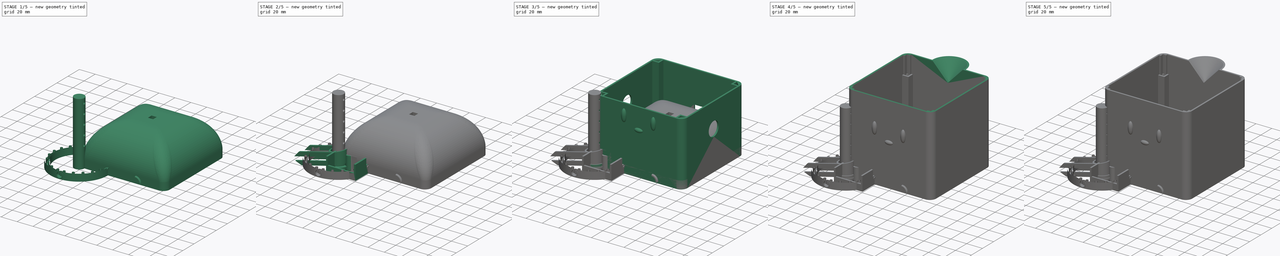
[diagram: build sequence overview — one tinted view per stage of 5, left to right]
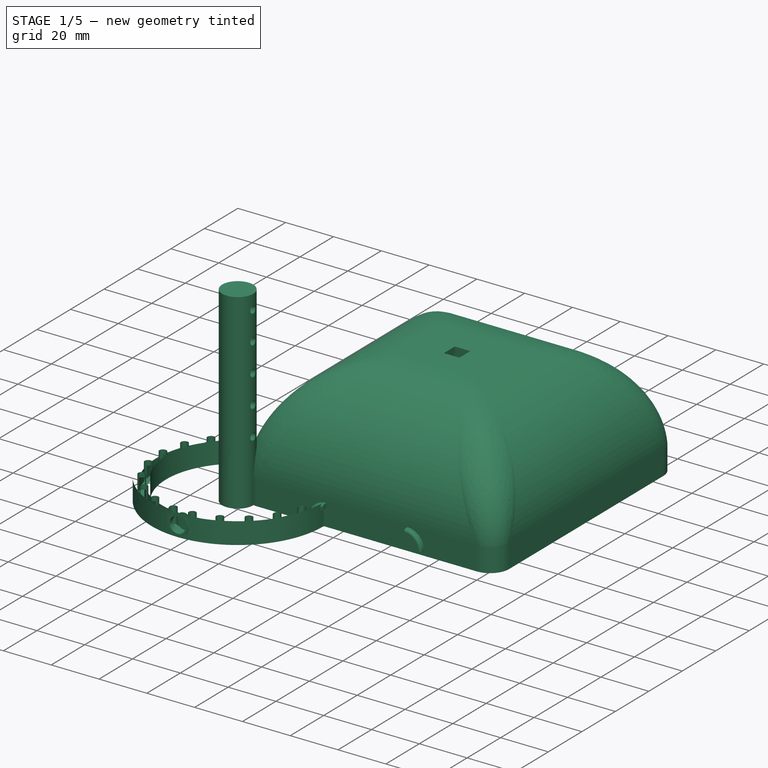
[diagram: stage 1 of 5 — iso view after this stage's code; geometry added in this stage tinted green]
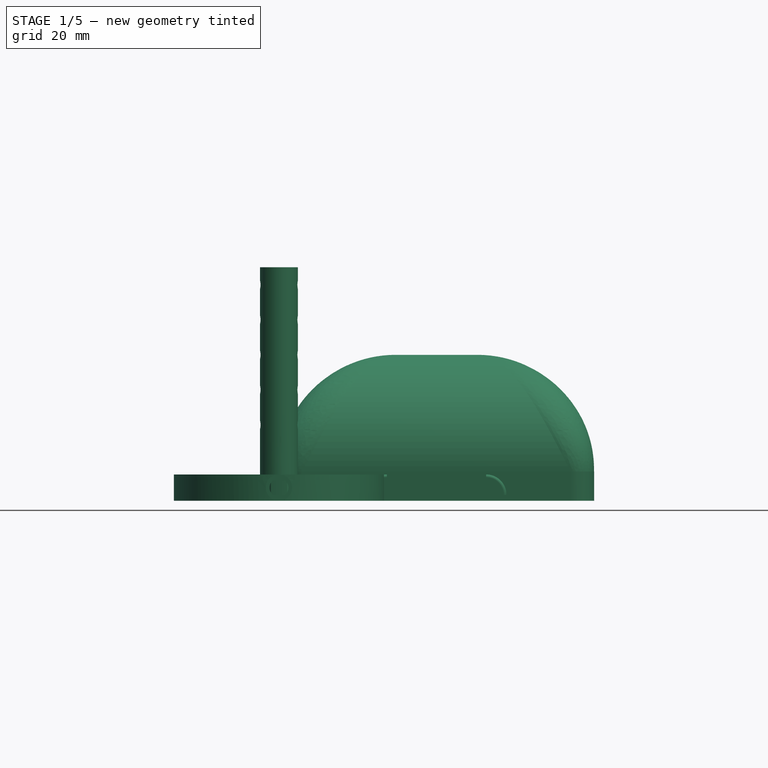
[diagram: stage 1 of 5 — front view after this stage's code; geometry added in this stage tinted green]
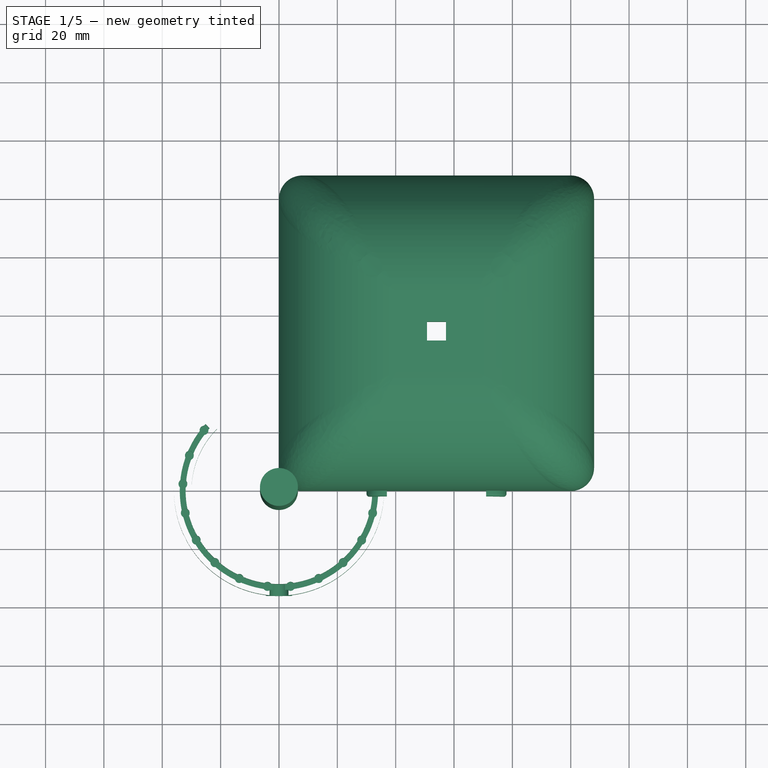
[diagram: stage 1 of 5 — top view after this stage's code; geometry added in this stage tinted green]
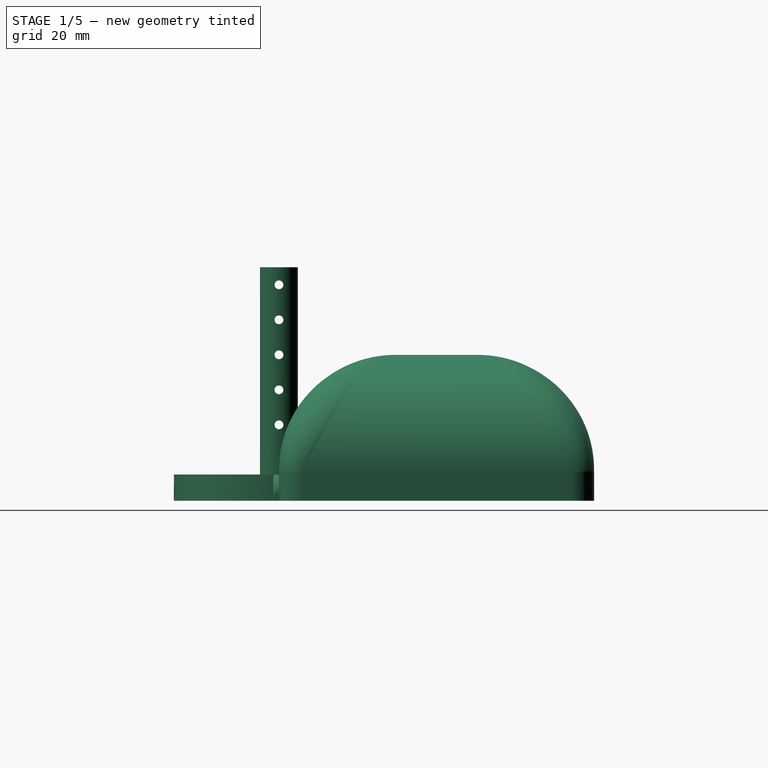
[diagram: stage 1 of 5 — right view after this stage's code; geometry added in this stage tinted green]
FCSTD DOCUMENT  (FreeCAD 0.18R13826 (Git))
Label: ermina_v6
License: All rights reserved
LicenseURL: http://en.wikipedia.org/wiki/All_rights_reserved
objects: Sketcher::SketchObject×128, PartDesign::Pocket×61, PartDesign::Pad×45, PartDesign::Body×24, PartDesign::Revolution×19, PartDesign::Fillet×11, PartDesign::Groove×2, PartDesign::Thickness×1
note: 418 computed .brp shape members not serialized (recipe doc carries the construction recipe); baked Part::Feature solids carry a one-line shape summary decoded from their .brp

FEATURE [Sketcher::SketchObject] Sketch100
  MapMode = 5
  Support = -> [XY_Plane011]
  sketch-geometry (4):
    g0: LineSegment StartX=0 StartY=0 StartZ=0 EndX=108 EndY=0 EndZ=0
    g1: LineSegment StartX=108 StartY=0 StartZ=0 EndX=108 EndY=108 EndZ=0
    g2: LineSegment StartX=108 StartY=108 StartZ=0 EndX=0 EndY=108 EndZ=0
    g3: LineSegment StartX=0 StartY=108 StartZ=0 EndX=0 EndY=0 EndZ=0
  constraints (11):
    c: Coincident(g0,g1)
    c: Coincident(g1,g2)
    c: Coincident(g2,g3)
    c: Coincident(g3,g0)
    c: Horizontal(g0)
    c: Horizontal(g2)
    c: Vertical(g1)
    c: Vertical(g3)
    c: Coincident(g0,g-1)
    c: Equal(g3,g0)
    c: DistanceY(g3,g3) = 108
FEATURE [PartDesign::Pad] Pad043
  Length = 50
  Length2 = 100
  Profile = -> Sketch100
  Type = 0
FEATURE [PartDesign::Fillet] Fillet003
  Base = -> Pad043 [Edge1,Edge2,Edge5,Edge8]
  BaseFeature = -> Pad043
  Radius = 8
FEATURE [PartDesign::Fillet] Fillet004
  Base = -> Fillet003 [Edge20]
  BaseFeature = -> Fillet003
  Radius = 40
FEATURE [PartDesign::Body] Body028  label="arm_holder"
  Group = -> [Sketch167,Pad066,Sketch172,Pad069,Sketch173,Pocket067,Sketch174,Pad070,Sketch175,Pad071,Sketch176,Pocket068]
  Origin = -> Origin020
  Tip = -> Pocket068
FEATURE [Sketcher::SketchObject] Sketch177
  MapMode = 5
  Support = -> [XY_Plane021]
  sketch-geometry (1):
    g0: Circle CenterX=0 CenterY=0 CenterZ=0 NormalX=0 NormalY=0 NormalZ=1 AngleXU=0 Radius=6.5
  constraints (2):
    c: Coincident(g0,g-1)
    c: Radius(g0) = 6.5
FEATURE [PartDesign::Pad] Pad072
  Length = 20
  Length2 = 100
  Profile = -> Sketch177
  Type = 0
FEATURE [Sketcher::SketchObject] Sketch178
  MapMode = 5
  Placement = pos=(0,0,20) rot=(0,0,1;0rad)
  Support = -> [Pad072]
  sketch-geometry (1):
    g0: Circle CenterX=0 CenterY=0 CenterZ=0 NormalX=0 NormalY=0 NormalZ=1 AngleXU=0 Radius=3.25
  constraints (2):
    c: Coincident(g0,g-1)
    c: Radius(g0) = 3.25
FEATURE [PartDesign::Pocket] Pocket069
  BaseFeature = -> Pad072
  Length = 5
  Length2 = 100
  Profile = -> Sketch178
  Type = 1
FEATURE [Sketcher::SketchObject] Sketch179
  MapMode = 5
  Placement = pos=(0,0,0) rot=(1,0,0;3.14159rad)
  Support = -> [Pocket069]
  sketch-geometry (1):
    g0: Circle CenterX=0 CenterY=0 CenterZ=0 NormalX=0 NormalY=0 NormalZ=1 AngleXU=0 Radius=5.5
  constraints (2):
    c: Coincident(g0,g-1)
    c: Radius(g0) = 5.5
FEATURE [PartDesign::Pocket] Pocket070
  BaseFeature = -> Pocket069
  Length = 15
  Length2 = 100
  Profile = -> Sketch179
  Type = 0
FEATURE [Sketcher::SketchObject] Sketch180
  ExternalGeometry = -> [Pocket070]
  MapMode = 5
  Placement = pos=(0,0,20) rot=(0,0,1;0rad)
  Support = -> [Pocket070]
  sketch-geometry (4):
    g0: LineSegment StartX=0 StartY=0 StartZ=0 EndX=0.76168 EndY=0 EndZ=0
    g1: LineSegment StartX=0.76168 StartY=0 StartZ=0 EndX=0.76168 EndY=-6.5 EndZ=0
    g2: LineSegment StartX=0.76168 StartY=-6.5 StartZ=0 EndX=0 EndY=-6.5 EndZ=0
    g3: LineSegment StartX=0 StartY=-6.5 StartZ=0 EndX=0 EndY=0 EndZ=0
  constraints (10):
    c: Coincident(g0,g1)
    c: Coincident(g1,g2)
    c: Coincident(g2,g3)
    c: Coincident(g3,g0)
    c: Horizontal(g0)
    c: Horizontal(g2)
    c: Vertical(g1)
    c: Vertical(g3)
    c: Coincident(g0,g-1)
    c: PointOnObject(g2,g-3)
FEATURE [PartDesign::Pad] Pad073
  BaseFeature = -> Pocket070
  Length = 2
  Length2 = 100
  Profile = -> Sketch180
  Type = 0
FEATURE [PartDesign::Body] Body029  label="arm_plug"
  Group = -> [Sketch177,Pad072,Sketch178,Pocket069,Sketch179,Pocket070,Sketch180,Pad073,Sketch181,Groove001,Sketch182,Pocket071,Sketch183,Pocket072]
  Origin = -> Origin021
  Tip = -> Pocket072
FEATURE [Sketcher::SketchObject] Sketch184
  MapMode = 5
  Support = -> [XY_Plane022]
  sketch-geometry (6):
    g0: ArcOfCircle CenterX=0 CenterY=0 CenterZ=0 NormalX=0 NormalY=0 NormalZ=1 AngleXU=0 Radius=30 StartAngle=2.35619 EndAngle=7.06858
    g1: ArcOfCircle CenterX=0 CenterY=0 CenterZ=0 NormalX=0 NormalY=0 NormalZ=1 AngleXU=0 Radius=36 StartAngle=2.35619 EndAngle=7.06858
    g2: LineSegment [constr] StartX=-21.2132 StartY=21.2132 StartZ=0 EndX=21.2132 EndY=21.2132 EndZ=0
    g3: LineSegment [constr] StartX=-25.4558 StartY=25.4558 StartZ=0 EndX=25.4558 EndY=25.4558 EndZ=0
    g4: LineSegment StartX=-25.4558 StartY=25.4558 StartZ=0 EndX=-21.2132 EndY=21.2132 EndZ=0
    g5: LineSegment StartX=25.4558 StartY=25.4558 StartZ=0 EndX=21.2132 EndY=21.2132 EndZ=0
  constraints (16):
    c: Angle(g0) = 4.71239
    c: Angle(g1) = 4.71239
    c: Radius(g0) = 30
    c: Radius(g1) = 36
    c: Coincident(g0,g-1)
    c: Coincident(g1,g-1)
    c: Coincident(g2,g0)
    c: Coincident(g2,g0)
    c: Horizontal(g2)
    c: Coincident(g3,g1)
    c: Coincident(g3,g1)
    c: Horizontal(g3)
    c: Coincident(g4,g1)
    c: Coincident(g4,g0)
    c: Coincident(g5,g1)
    c: Coincident(g5,g0)
FEATURE [PartDesign::Pad] Pad074
  Length = 7
  Length2 = 100
  Profile = -> Sketch184
  Type = 0
FEATURE [Sketcher::SketchObject] Sketch185
  MapMode = 5
  Placement = pos=(0,0,7) rot=(0,0,1;0rad)
  Support = -> [Pad074]
  sketch-geometry (6):
    g0: ArcOfCircle CenterX=0 CenterY=0 CenterZ=0 NormalX=0 NormalY=0 NormalZ=1 AngleXU=0 Radius=32 StartAngle=2.40916 EndAngle=7.01562
    g1: ArcOfCircle CenterX=0 CenterY=0 CenterZ=0 NormalX=0 NormalY=0 NormalZ=1 AngleXU=0 Radius=34 StartAngle=2.40407 EndAngle=7.02071
    g2: LineSegment [constr] StartX=-23.7935 StartY=21.3979 StartZ=0 EndX=23.7935 EndY=21.3979 EndZ=0
    g3: LineSegment [constr] StartX=-25.1646 StartY=22.8636 StartZ=0 EndX=25.1646 EndY=22.8636 EndZ=0
    g4: LineSegment StartX=-25.1646 StartY=22.8636 StartZ=0 EndX=-23.7935 EndY=21.3979 EndZ=0
    g5: LineSegment StartX=25.1646 StartY=22.8636 StartZ=0 EndX=23.7935 EndY=21.3979 EndZ=0
  constraints (14):
    c: Coincident(g0,g-1)
    c: Coincident(g1,g-1)
    c: Radius(g0) = 32
    c: Radius(g1) = 34
    c: Coincident(g2,g0)
    c: Coincident(g2,g0)
    c: Horizontal(g2)
    c: Coincident(g3,g1)
    c: Coincident(g3,g1)
    c: Horizontal(g3)
    c: Coincident(g4,g1)
    c: Coincident(g4,g0)
    c: Coincident(g5,g1)
    c: Coincident(g5,g0)
FEATURE [PartDesign::Pocket] Pocket073
  BaseFeature = -> Pad074
  Length = 5
  Length2 = 100
  Profile = -> Sketch185
  Type = 0
FEATURE [Sketcher::SketchObject] Sketch186
  ExternalGeometry = -> [Pocket073]
  MapMode = 5
  Placement = pos=(0,0,7) rot=(0,0,1;0rad)
  Support = -> [Pocket073]
  sketch-geometry (4):
    g0: ArcOfCircle CenterX=0 CenterY=0 CenterZ=0 NormalX=0 NormalY=0 NormalZ=1 AngleXU=0 Radius=30 StartAngle=2.35619 EndAngle=7.06858
    g1: ArcOfCircle CenterX=0 CenterY=0 CenterZ=0 NormalX=0 NormalY=0 NormalZ=1 AngleXU=0 Radius=36 StartAngle=2.35619 EndAngle=7.06858
    g2: LineSegment StartX=-25.4558 StartY=25.4558 StartZ=0 EndX=-21.2132 EndY=21.2132 EndZ=0
    g3: LineSegment StartX=25.4558 StartY=25.4558 StartZ=0 EndX=21.2132 EndY=21.2132 EndZ=0
  constraints (10):
    c: Coincident(g0,g-1)
    c: Coincident(g0,g-3)
    c: Coincident(g0,g-3)
    c: Coincident(g1,g-1)
    c: Coincident(g1,g-4)
    c: Angle(g1) = 4.71239
    c: Coincident(g2,g1)
    c: Coincident(g2,g0)
    c: Coincident(g3,g1)
    c: Coincident(g3,g0)
FEATURE [PartDesign::Pad] Pad075
  BaseFeature = -> Pocket073
  Length = 2
  Length2 = 100
  Profile = -> Sketch186
  Type = 0
FEATURE [Sketcher::SketchObject] Sketch187
  ExternalGeometry = -> [Pad075]
  MapMode = 5
  Placement = pos=(0,0,9) rot=(0,0,1;0rad)
  Support = -> [Pad075]
  sketch-geometry (17):
    g0: Circle CenterX=-25.6778 CenterY=20.728 CenterZ=0 NormalX=0 NormalY=0 NormalZ=1 AngleXU=0 Radius=1.5
    g1: Circle CenterX=-30.7075 CenterY=12.085 CenterZ=0 NormalX=0 NormalY=0 NormalZ=1 AngleXU=0 Radius=1.5
    g2: Circle CenterX=-32.9175 CenterY=2.33227 CenterZ=0 NormalX=0 NormalY=0 NormalZ=1 AngleXU=0 Radius=1.5
    g3: Circle CenterX=-32.1047 CenterY=-7.63464 CenterZ=0 NormalX=0 NormalY=0 NormalZ=1 AngleXU=0 Radius=1.5
    g4: Circle CenterX=-28.3438 CenterY=-16.9005 CenterZ=0 NormalX=0 NormalY=0 NormalZ=1 AngleXU=0 Radius=1.5
    g5: Circle CenterX=-21.9802 CenterY=-24.6144 CenterZ=0 NormalX=0 NormalY=0 NormalZ=1 AngleXU=0 Radius=1.5
    g6: Circle CenterX=-13.5982 CenterY=-30.068 CenterZ=0 NormalX=0 NormalY=0 NormalZ=1 AngleXU=0 Radius=1.5
    g7: Circle CenterX=-3.96757 CenterY=-32.7606 CenterZ=0 NormalX=0 NormalY=0 NormalZ=1 AngleXU=0 Radius=1.5
    g8: Circle CenterX=3.96757 CenterY=-32.7606 CenterZ=0 NormalX=0 NormalY=0 NormalZ=1 AngleXU=0 Radius=1.5
    g9: Circle CenterX=13.5982 CenterY=-30.068 CenterZ=0 NormalX=0 NormalY=0 NormalZ=1 AngleXU=0 Radius=1.5
    g10: Circle CenterX=21.9802 CenterY=-24.6144 CenterZ=0 NormalX=0 NormalY=0 NormalZ=1 AngleXU=0 Radius=1.5
    g11: Circle CenterX=28.3438 CenterY=-16.9005 CenterZ=0 NormalX=0 NormalY=0 NormalZ=1 AngleXU=0 Radius=1.5
    g12: Circle CenterX=32.1047 CenterY=-7.63464 CenterZ=0 NormalX=0 NormalY=0 NormalZ=1 AngleXU=0 Radius=1.5
    g13: Circle CenterX=32.9175 CenterY=2.33227 CenterZ=0 NormalX=0 NormalY=0 NormalZ=1 AngleXU=0 Radius=1.5
    g14: Circle CenterX=30.7075 CenterY=12.085 CenterZ=0 NormalX=0 NormalY=0 NormalZ=1 AngleXU=0 Radius=1.5
    g15: Circle CenterX=25.6778 CenterY=20.728 CenterZ=0 NormalX=0 NormalY=0 NormalZ=1 AngleXU=0 Radius=1.5
    g16: ArcOfCircle [constr] CenterX=0 CenterY=0 CenterZ=0 NormalX=0 NormalY=0 NormalZ=1 AngleXU=0 Radius=33 StartAngle=2.35619 EndAngle=7.06858
  constraints (52):
    c: Equal(g0,g1)
    c: Equal(g1,g2)
    c: Equal(g2,g3)
    c: Equal(g3,g4)
    c: Equal(g4,g5)
    c: Equal(g5,g6)
    c: Equal(g6,g7)
    c: Equal(g7,g8)
    c: Equal(g8,g9)
    c: Equal(g9,g10)
    c: Equal(g10,g11)
    c: Equal(g11,g12)
    c: Equal(g12,g13)
    c: Equal(g13,g14)
    c: Equal(g14,g15)
    c: Radius(g0) = 1.5
    c: Coincident(g16,g-1)
    c: PointOnObject(g16,g-4)
    c: PointOnObject(g16,g-3)
    c: Radius(g16) = 33
    c: PointOnObject(g0,g16)
    c: PointOnObject(g1,g16)
    c: PointOnObject(g2,g16)
    c: PointOnObject(g3,g16)
    c: PointOnObject(g4,g16)
    c: PointOnObject(g5,g16)
    c: PointOnObject(g6,g16)
    c: PointOnObject(g7,g16)
    c: PointOnObject(g8,g16)
    c: PointOnObject(g9,g16)
    c: PointOnObject(g10,g16)
    c: PointOnObject(g11,g16)
    c: PointOnObject(g12,g16)
    c: PointOnObject(g13,g16)
    c: PointOnObject(g14,g16)
    c: PointOnObject(g15,g16)
    c: Distance(g0,g-3) = 3.5
    c: Distance(g1,g0) = 10
    c: Distance(g2,g1) = 10
    c: Distance(g3,g2) = 10
    c: Distance(g4,g3) = 10
    c: Distance(g5,g4) = 10
    c: Distance(g6,g5) = 10
    c: Distance(g6,g7) = 10
    c: Distance(g15,g-4) = 3.5
    c: Distance(g14,g15) = 10
    c: Distance(g13,g14) = 10
    c: Distance(g13,g12) = 10
    c: Distance(g12,g11) = 10
    c: Distance(g11,g10) = 10
    c: Distance(g9,g10) = 10
    c: Distance(g8,g9) = 10
FEATURE [PartDesign::Pocket] Pocket074
  BaseFeature = -> Pad075
  Length = 7
  Length2 = 100
  Profile = -> Sketch187
  Type = 0
FEATURE [Sketcher::SketchObject] Sketch188
  MapMode = 5
  Placement = pos=(0,0,9) rot=(0,0,1;0rad)
  Support = -> [Pocket074]
FEATURE [Sketcher::SketchObject] Sketch189
  ExternalGeometry = -> [Pocket074]
  MapMode = 5
  Placement = pos=(0,0,0) rot=(1,0,0;3.14159rad)
  Support = -> [Pocket074]
  sketch-geometry (4):
    g0: LineSegment StartX=0 StartY=30 StartZ=0 EndX=1 EndY=30 EndZ=0
    g1: LineSegment StartX=1 StartY=30 StartZ=0 EndX=1 EndY=36 EndZ=0
    g2: LineSegment StartX=1 StartY=36 StartZ=0 EndX=0 EndY=36 EndZ=0
    g3: LineSegment StartX=0 StartY=36 StartZ=0 EndX=0 EndY=30 EndZ=0
  constraints (12):
    c: Coincident(g0,g1)
    c: Coincident(g1,g2)
    c: Coincident(g2,g3)
    c: Coincident(g3,g0)
    c: Horizontal(g0)
    c: Horizontal(g2)
    c: Vertical(g1)
    c: Vertical(g3)
    c: PointOnObject(g2,g-2)
    c: PointOnObject(g2,g-3)
    c: PointOnObject(g0,g-4)
    c: DistanceX(g0,g0) = 1
FEATURE [PartDesign::Pad] Pad076
  BaseFeature = -> Pocket074
  Length = 1
  Length2 = 100
  Profile = -> Sketch189
  Type = 0
FEATURE [Sketcher::SketchObject] Sketch190
  MapMode = 5
  Placement = pos=(0,-36,0) rot=(1,0,0;1.5708rad)
  Support = -> [Pad076]
  sketch-geometry (1):
    g0: Circle CenterX=0 CenterY=4.5 CenterZ=0 NormalX=0 NormalY=0 NormalZ=1 AngleXU=0 Radius=4.5
  constraints (3):
    c: Radius(g0) = 4.5
    c: PointOnObject(g-1,g0)
    c: PointOnObject(g0,g-2)
FEATURE [PartDesign::Pad] Pad077
  BaseFeature = -> Pad076
  Length = 1
  Length2 = 100
  Profile = -> Sketch190
  Reversed = true
  Type = 0
FEATURE [Sketcher::SketchObject] Sketch191
  ExternalGeometry = -> [Pad077]
  MapMode = 5
  Placement = pos=(0,-36,0) rot=(1,0,0;1.5708rad)
  Support = -> [Pad077]
  sketch-geometry (1):
    g0: Circle CenterX=0 CenterY=4.5 CenterZ=0 NormalX=0 NormalY=0 NormalZ=1 AngleXU=0 Radius=3.25
  constraints (2):
    c: Coincident(g0,g-3)
    c: Radius(g0) = 3.25
FEATURE [PartDesign::Pocket] Pocket075
  BaseFeature = -> Pad077
  Length = 4
  Length2 = 100
  Profile = -> Sketch191
  Type = 0
FEATURE [Sketcher::SketchObject] Sketch192
  ExternalGeometry = -> [Pocket075]
  MapMode = 5
  Placement = pos=(1,0,0) rot=(0.57735,0.57735,0.57735;2.0944rad)
  Support = -> [Pocket075]
  sketch-geometry (4):
    g0: LineSegment StartX=-36 StartY=-1 StartZ=0 EndX=-30 EndY=-1 EndZ=0
    g1: LineSegment StartX=-30 StartY=-1 StartZ=0 EndX=-30 EndY=0 EndZ=0
    g2: LineSegment StartX=-30 StartY=0 StartZ=0 EndX=-36 EndY=0 EndZ=0
    g3: LineSegment StartX=-36 StartY=0 StartZ=0 EndX=-36 EndY=-1 EndZ=0
  constraints (10):
    c: Coincident(g0,g1)
    c: Coincident(g1,g2)
    c: Coincident(g2,g3)
    c: Coincident(g3,g0)
    c: Horizontal(g0)
    c: Horizontal(g2)
    c: Vertical(g1)
    c: Vertical(g3)
    c: Coincident(g0,g-3)
    c: Coincident(g1,g-4)
FEATURE [PartDesign::Pocket] Pocket076
  BaseFeature = -> Pocket075
  Length = 1
  Length2 = 100
  Profile = -> Sketch192
  Type = 0
FEATURE [PartDesign::Body] Body030  label="water_shoe"
  Group = -> [Sketch184,Pad074,Sketch185,Pocket073,Sketch186,Pad075,Sketch187,Pocket074,Sketch188,Sketch189,Pad076,Sketch190,Pad077,Sketch191,Pocket075,Sketch192,Pocket076]
  Origin = -> Origin022
  Tip = -> Pocket076
FEATURE [PartDesign::Thickness] Thickness
  Base = -> Fillet004 [Face4]
  BaseFeature = -> Fillet004
  Join = 0
  Mode = 0
  Reversed = true
  Value = 2
FEATURE [Sketcher::SketchObject] Sketch193
  ExternalGeometry = -> [Thickness]
  MapMode = 5
  Placement = pos=(0,0,50) rot=(0,0,1;0rad)
  Support = -> [Thickness]
  sketch-geometry (4):
    g0: LineSegment StartX=50.75 StartY=57.25 StartZ=0 EndX=57.25 EndY=57.25 EndZ=0
    g1: LineSegment StartX=57.25 StartY=57.25 StartZ=0 EndX=57.25 EndY=50.75 EndZ=0
    g2: LineSegment StartX=57.25 StartY=50.75 StartZ=0 EndX=50.75 EndY=50.75 EndZ=0
    g3: LineSegment StartX=50.75 StartY=50.75 StartZ=0 EndX=50.75 EndY=57.25 EndZ=0
  constraints (12):
    c: Coincident(g0,g1)
    c: Coincident(g1,g2)
    c: Coincident(g2,g3)
    c: Coincident(g3,g0)
    c: Horizontal(g0)
    c: Horizontal(g2)
    c: Vertical(g1)
    c: Vertical(g3)
    c: Equal(g0,g1)
    c: DistanceX(g0,g0) = 6.5
    c: Distance(g0,g-4) = 10.75
    c: Distance(g0,g-3) = 10.75
FEATURE [PartDesign::Pocket] Pocket077
  BaseFeature = -> Thickness
  Length = 5
  Length2 = 100
  Profile = -> Sketch193
  Type = 1
FEATURE [Sketcher::SketchObject] Sketch194
  ExternalGeometry = -> [Pocket077]
  MapMode = 5
  Placement = pos=(0,0,48) rot=(1,0,0;3.14159rad)
  Support = -> [Pocket077]
  sketch-geometry (8):
    g0: LineSegment StartX=50.75 StartY=-50.75 StartZ=0 EndX=57.25 EndY=-50.75 EndZ=0
    g1: LineSegment StartX=57.25 StartY=-50.75 StartZ=0 EndX=57.25 EndY=-57.25 EndZ=0
    g2: LineSegment StartX=57.25 StartY=-57.25 StartZ=0 EndX=50.75 EndY=-57.25 EndZ=0
    g3: LineSegment StartX=50.75 StartY=-57.25 StartZ=0 EndX=50.75 EndY=-50.75 EndZ=0
    g4: LineSegment StartX=48.75 StartY=-48.75 StartZ=0 EndX=59.25 EndY=-48.75 EndZ=0
    g5: LineSegment StartX=59.25 StartY=-48.75 StartZ=0 EndX=59.25 EndY=-59.25 EndZ=0
    g6: LineSegment StartX=59.25 StartY=-59.25 StartZ=0 EndX=48.75 EndY=-59.25 EndZ=0
    g7: LineSegment StartX=48.75 StartY=-59.25 StartZ=0 EndX=48.75 EndY=-48.75 EndZ=0
  constraints (22):
    c: Coincident(g0,g1)
    c: Coincident(g1,g2)
    c: Coincident(g2,g3)
    c: Coincident(g3,g0)
    c: Horizontal(g0)
    c: Horizontal(g2)
    c: Vertical(g1)
    c: Vertical(g3)
    c: Coincident(g0,g-3)
    c: Coincident(g1,g-4)
    c: Coincident(g4,g5)
    c: Coincident(g5,g6)
    c: Coincident(g6,g7)
    c: Coincident(g7,g4)
    c: Horizontal(g4)
    c: Horizontal(g6)
    c: Vertical(g5)
    c: Vertical(g7)
    c: Distance(g4,g0) = 2
    c: Distance(g5,g1) = 2
    c: Equal(g4,g7)
    c: Distance(g6,g3) = 2
FEATURE [PartDesign::Pad] Pad078
  BaseFeature = -> Pocket077
  Length = 7
  Length2 = 100
  Profile = -> Sketch194
  Type = 0
FEATURE [Sketcher::SketchObject] Sketch195
  ExternalGeometry = -> [Pad078]
  MapMode = 5
  Placement = pos=(0,0,0) rot=(1,0,0;1.5708rad)
  Support = -> [Pad078]
  sketch-geometry (10):
    g0: ArcOfCircle CenterX=37 CenterY=2 CenterZ=0 NormalX=0 NormalY=0 NormalZ=1 AngleXU=0 Radius=7 StartAngle=1.5708 EndAngle=3.14159
    g1: ArcOfCircle CenterX=71 CenterY=2 CenterZ=0 NormalX=0 NormalY=0 NormalZ=1 AngleXU=0 Radius=7 StartAngle=0 EndAngle=1.5708
    g2: LineSegment [constr] StartX=37 StartY=9 StartZ=0 EndX=37 EndY=2 EndZ=0
    g3: LineSegment [constr] StartX=71 StartY=9 StartZ=0 EndX=71 EndY=2 EndZ=0
    g4: LineSegment StartX=30 StartY=2 StartZ=0 EndX=32 EndY=2 EndZ=0
    g5: LineSegment StartX=37 StartY=9 StartZ=0 EndX=37 EndY=7 EndZ=0
    g6: LineSegment StartX=71 StartY=9 StartZ=0 EndX=71 EndY=7 EndZ=0
    g7: LineSegment StartX=76 StartY=2 StartZ=0 EndX=78 EndY=2 EndZ=0
    g8: ArcOfCircle CenterX=37 CenterY=2 CenterZ=0 NormalX=0 NormalY=0 NormalZ=1 AngleXU=0 Radius=5 StartAngle=1.5708 EndAngle=3.14159
    g9: ArcOfCircle CenterX=71 CenterY=2 CenterZ=0 NormalX=0 NormalY=0 NormalZ=1 AngleXU=0 Radius=5 StartAngle=0 EndAngle=1.5708
  constraints (33):
    c: Equal(g1,g0)
    c: Angle(g0) = 1.5708
    c: Angle(g1) = 1.5708
    c: Radius(g0) = 7
    c: Vertical(g2)
    c: Vertical(g3)
    c: Coincident(g3,g1)
    c: Coincident(g3,g1)
    c: Coincident(g2,g0)
    c: Coincident(g0,g2)
    c: DistanceY(g-1,g0) = 2
    c: DistanceY(g-1,g1) = 2
    c: Distance(g1,g-4) = 22
    c: Distance(g-3) = 10
    c: Distance(g0,g-3) = 22
    c: Horizontal(g4)
    c: Vertical(g5)
    c: Vertical(g6)
    c: Horizontal(g7)
    c: Equal(g7,g6)
    c: Equal(g6,g5)
    c: Equal(g5,g4)
    c: DistanceX(g4,g4) = 2
    c: Coincident(g5,g0)
    c: Coincident(g4,g0)
    c: Coincident(g6,g1)
    c: Coincident(g7,g1)
    c: Coincident(g8,g0)
    c: Coincident(g8,g5)
    c: Coincident(g8,g4)
    c: Coincident(g9,g1)
    c: Coincident(g9,g6)
    c: Coincident(g9,g7)
FEATURE [PartDesign::Pad] Pad079
  BaseFeature = -> Pad078
  Length = 2
  Length2 = 100
  Profile = -> Sketch195
  Type = 0
FEATURE [PartDesign::Fillet] Fillet012
  Base = -> Pad079 [Edge54,Edge46]
  BaseFeature = -> Pad079
  Radius = 1
FEATURE [PartDesign::Body] Body019  label="head"
  Group = -> [Sketch100,Pad043,Fillet003,Fillet004,Thickness,Sketch193,Pocket077,Sketch194,Pad078,Sketch195,Pad079,Fillet012]
  Origin = -> Origin011
  Placement = pos=(0,0,189) rot=(0,0,1;0rad)
  Tip = -> Fillet012
FEATURE [Sketcher::SketchObject] Sketch196
  MapMode = 5
  Support = -> [XY_Plane023]
  sketch-geometry (1):
    g0: Circle CenterX=0 CenterY=0 CenterZ=0 NormalX=0 NormalY=0 NormalZ=1 AngleXU=0 Radius=6.5
  constraints (2):
    c: Coincident(g0,g-1)
    c: Radius(g0) = 6.5
FEATURE [PartDesign::Pad] Pad080
  Length = 20
  Length2 = 100
  Profile = -> Sketch196
  Type = 0
FEATURE [Sketcher::SketchObject] Sketch197
  MapMode = 5
  Placement = pos=(0,0,20) rot=(0,0,1;0rad)
  Support = -> [Pad080]
  sketch-geometry (1):
    g0: Circle CenterX=0 CenterY=0 CenterZ=0 NormalX=0 NormalY=0 NormalZ=1 AngleXU=0 Radius=3.25
  constraints (2):
    c: Coincident(g0,g-1)
    c: Radius(g0) = 3.25
FEATURE [PartDesign::Pocket] Pocket078
  BaseFeature = -> Pad080
  Length = 5
  Length2 = 100
  Profile = -> Sketch197
  Type = 1
FEATURE [Sketcher::SketchObject] Sketch198
  MapMode = 5
  Placement = pos=(0,0,0) rot=(1,0,0;3.14159rad)
  Support = -> [Pocket078]
  sketch-geometry (1):
    g0: Circle CenterX=0 CenterY=0 CenterZ=0 NormalX=0 NormalY=0 NormalZ=1 AngleXU=0 Radius=5.5
  constraints (2):
    c: Coincident(g0,g-1)
    c: Radius(g0) = 5.5
FEATURE [PartDesign::Pocket] Pocket079
  BaseFeature = -> Pocket078
  Length = 15
  Length2 = 100
  Profile = -> Sketch198
  Type = 0
FEATURE [Sketcher::SketchObject] Sketch199
  ExternalGeometry = -> [Pocket079]
  MapMode = 5
  Placement = pos=(0,0,20) rot=(0,0,1;0rad)
  Support = -> [Pocket079]
  sketch-geometry (2):
    g0: Circle CenterX=0 CenterY=0 CenterZ=0 NormalX=0 NormalY=0 NormalZ=1 AngleXU=0 Radius=6.5
    g1: Circle CenterX=0 CenterY=0 CenterZ=0 NormalX=0 NormalY=0 NormalZ=1 AngleXU=0 Radius=3.875
  constraints (4):
    c: Coincident(g0,g-1)
    c: Equal(g0,g-3)
    c: Coincident(g1,g-1)
    c: Radius(g1) = 3.875
FEATURE [PartDesign::Pad] Pad081
  BaseFeature = -> Pocket079
  Length = 58
  Length2 = 100
  Profile = -> Sketch199
  Type = 0
FEATURE [Sketcher::SketchObject] Sketch200
  ExternalGeometry = -> [Pad081]
  MapMode = 5
  Placement = pos=(0,0,78) rot=(0,0,1;0rad)
  Support = -> [Pad081]
  sketch-geometry (1):
    g0: Circle CenterX=0 CenterY=0 CenterZ=0 NormalX=0 NormalY=0 NormalZ=1 AngleXU=0 Radius=6.5
  constraints (2):
    c: Coincident(g0,g-1)
    c: Equal(g0,g-3)
FEATURE [PartDesign::Pad] Pad082
  BaseFeature = -> Pad081
  Length = 2
  Length2 = 100
  Profile = -> Sketch200
  Type = 0
FEATURE [Sketcher::SketchObject] Sketch201
  ExternalGeometry = -> [Pad082]
  MapMode = 5
  Placement = pos=(0,0,80) rot=(0,0,1;0rad)
  Support = -> [Pad082]
  sketch-geometry (4):
    g0: LineSegment StartX=0 StartY=1 StartZ=0 EndX=-6.5 EndY=1 EndZ=0
    g1: LineSegment StartX=-6.5 StartY=1 StartZ=0 EndX=-6.5 EndY=-1 EndZ=0
    g2: LineSegment StartX=-6.5 StartY=-1 StartZ=0 EndX=0 EndY=-1 EndZ=0
    g3: LineSegment StartX=0 StartY=-1 StartZ=0 EndX=0 EndY=1 EndZ=0
  constraints (12):
    c: Coincident(g0,g1)
    c: Coincident(g1,g2)
    c: Coincident(g2,g3)
    c: Coincident(g3,g0)
    c: Horizontal(g0)
    c: Horizontal(g2)
    c: Vertical(g1)
    c: Vertical(g3)
    c: PointOnObject(g0,g-2)
    c: DistanceY(g3,g3) = 2
    c: DistanceY(g-1,g0) = 1
    c: Tangent(g1,g-3)
FEATURE [PartDesign::Pad] Pad083
  BaseFeature = -> Pad082
  Length = 1
  Length2 = 100
  Profile = -> Sketch201
  Type = 0
FEATURE [Sketcher::SketchObject] Sketch202
  ExternalGeometry = -> [Pad083]
  MapMode = 5
  Placement = pos=(-6.5,0,0) rot=(0.57735,-0.57735,-0.57735;2.0944rad)
  Support = -> [Pad083]
  sketch-geometry (5):
    g0: Circle CenterX=0 CenterY=74 CenterZ=0 NormalX=0 NormalY=0 NormalZ=1 AngleXU=0 Radius=1.5
    g1: Circle CenterX=0 CenterY=62 CenterZ=0 NormalX=0 NormalY=0 NormalZ=1 AngleXU=0 Radius=1.5
    g2: Circle CenterX=0 CenterY=50 CenterZ=0 NormalX=0 NormalY=0 NormalZ=1 AngleXU=0 Radius=1.5
    g3: Circle CenterX=0 CenterY=38 CenterZ=0 NormalX=0 NormalY=0 NormalZ=1 AngleXU=0 Radius=1.5
    g4: Circle CenterX=0 CenterY=26 CenterZ=0 NormalX=0 NormalY=0 NormalZ=1 AngleXU=0 Radius=1.5
  constraints (15):
    c: Equal(g0,g1)
    c: Equal(g1,g2)
    c: Equal(g2,g3)
    c: Equal(g3,g4)
    c: Radius(g0) = 1.5
    c: PointOnObject(g0,g-2)
    c: PointOnObject(g1,g-2)
    c: PointOnObject(g2,g-2)
    c: PointOnObject(g3,g-2)
    c: PointOnObject(g4,g-2)
    c: Distance(g0,g-3) = 6
    c: Distance(g0,g1) = 12
    c: Distance(g2,g1) = 12
    c: Distance(g2,g3) = 12
    c: Distance(g4,g3) = 12
FEATURE [PartDesign::Pocket] Pocket080
  BaseFeature = -> Pad083
  Length = 3
  Length2 = 100
  Profile = -> Sketch202
  Type = 1
FEATURE [Sketcher::SketchObject] Sketch203
  ExternalGeometry = -> [Pocket080]
  MapMode = 5
  Placement = pos=(0,-1,0) rot=(1,0,0;1.5708rad)
  Support = -> [Pocket080]
  sketch-geometry (4):
    g0: LineSegment StartX=-6.5 StartY=81 StartZ=0 EndX=0 EndY=81 EndZ=0
    g1: LineSegment StartX=0 StartY=81 StartZ=0 EndX=0 EndY=80 EndZ=0
    g2: LineSegment StartX=0 StartY=80 StartZ=0 EndX=-6.5 EndY=80 EndZ=0
    g3: LineSegment StartX=-6.5 StartY=80 StartZ=0 EndX=-6.5 EndY=81 EndZ=0
  constraints (10):
    c: Coincident(g0,g1)
    c: Coincident(g1,g2)
    c: Coincident(g2,g3)
    c: Coincident(g3,g0)
    c: Horizontal(g0)
    c: Horizontal(g2)
    c: Vertical(g1)
    c: Vertical(g3)
    c: Coincident(g0,g-3)
    c: Coincident(g1,g-4)
FEATURE [PartDesign::Pocket] Pocket081
  BaseFeature = -> Pocket080
  Length = 2
  Length2 = 100
  Profile = -> Sketch203
  Type = 0
FEATURE [PartDesign::Body] Body031  label="arm_plug001"
  Group = -> [Sketch196,Pad080,Sketch197,Pocket078,Sketch198,Pocket079,Sketch199,Pad081,Sketch200,Pad082,Sketch201,Pad083,Sketch202,Pocket080,Sketch203,Pocket081]
  Origin = -> Origin023
  Tip = -> Pocket081
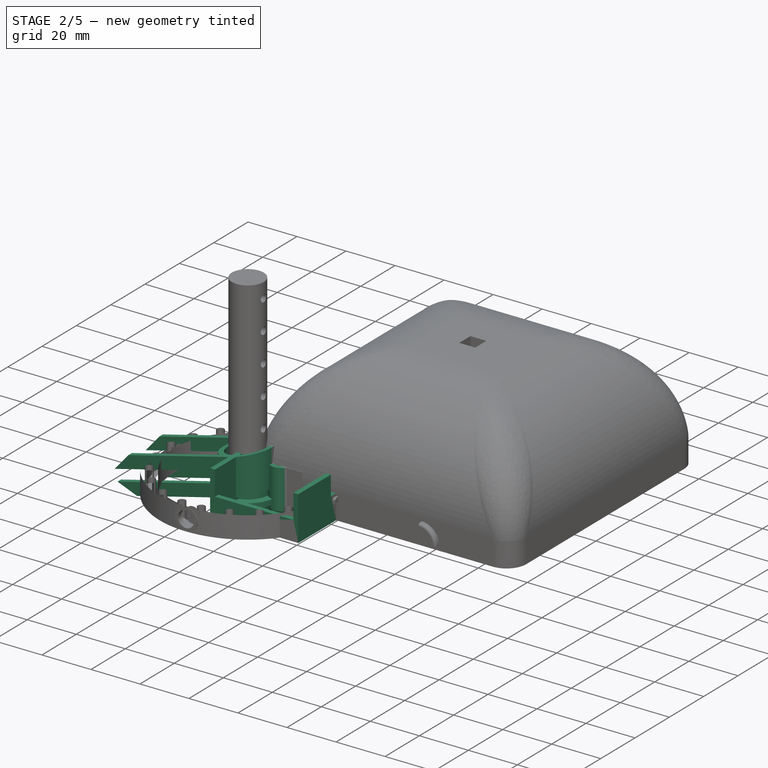
[diagram: stage 2 of 5 — iso view after this stage's code; geometry added in this stage tinted green]
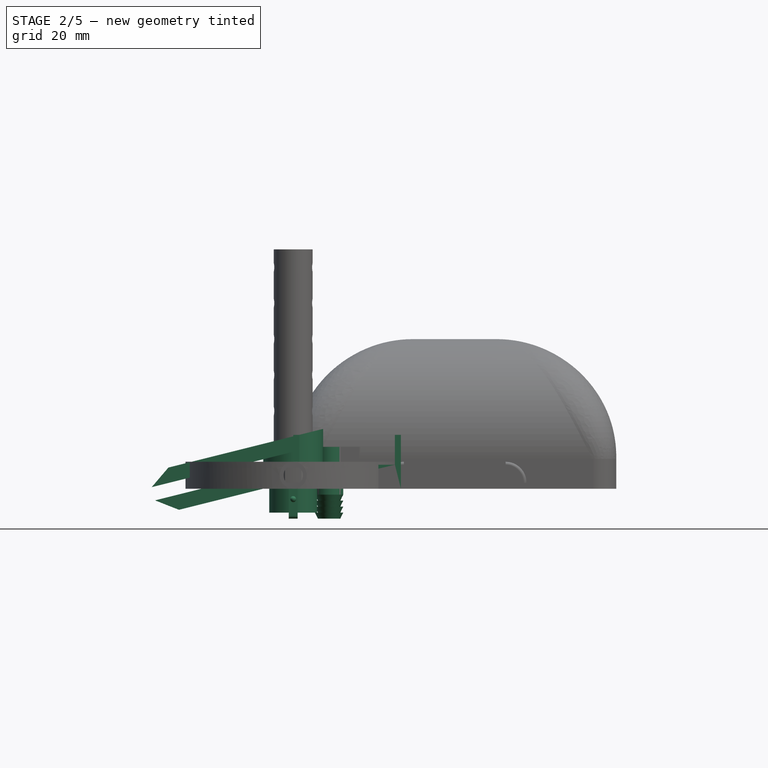
[diagram: stage 2 of 5 — front view after this stage's code; geometry added in this stage tinted green]
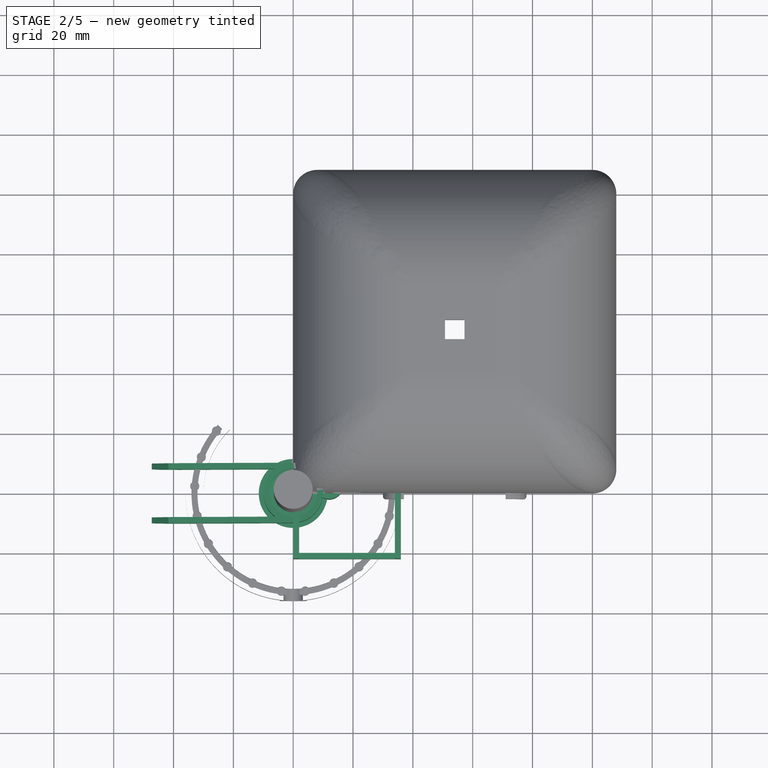
[diagram: stage 2 of 5 — top view after this stage's code; geometry added in this stage tinted green]
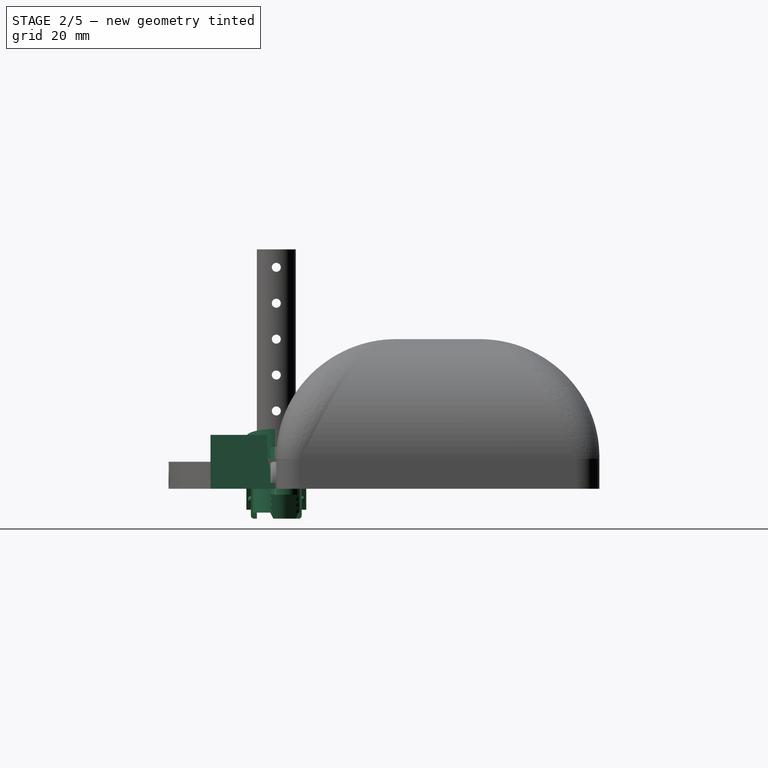
[diagram: stage 2 of 5 — right view after this stage's code; geometry added in this stage tinted green]
FEATURE [PartDesign::Pad] Pad048
  Length = 18
  Length2 = 100
  Profile = -> Sketch085
  Type = 0
FEATURE [Sketcher::SketchObject] Sketch114
  ExternalGeometry = -> [Pad048]
  MapMode = 5
  Placement = pos=(0,0,18) rot=(0,0,1;0rad)
  Support = -> [Pad048]
  sketch-geometry (4):
    g0: LineSegment StartX=2 StartY=-20 StartZ=0 EndX=34 EndY=-20 EndZ=0
    g1: LineSegment StartX=34 StartY=-20 StartZ=0 EndX=34 EndY=-22 EndZ=0
    g2: LineSegment StartX=34 StartY=-22 StartZ=0 EndX=2 EndY=-22 EndZ=0
    g3: LineSegment StartX=2 StartY=-22 StartZ=0 EndX=2 EndY=-20 EndZ=0
  constraints (11):
    c: Coincident(g0,g1)
    c: Coincident(g1,g2)
    c: Coincident(g2,g3)
    c: Coincident(g3,g0)
    c: Horizontal(g0)
    c: Horizontal(g2)
    c: Vertical(g1)
    c: Vertical(g3)
    c: Coincident(g0,g-3)
    c: PointOnObject(g1,g-4)
    c: Coincident(g0,g-3)
FEATURE [PartDesign::Pocket] Pocket042
  BaseFeature = -> Pad048
  Length = 10
  Length2 = 100
  Profile = -> Sketch114
  Type = 0
FEATURE [PartDesign::Body] Body020  label="electronics bottom"
  Group = -> [Sketch108,Pad045,Fillet007,Sketch,Pocket,Sketch131,Pad,Sketch132,Pocket052,Sketch133,Pocket053,Sketch134,Pad052,Sketch135,Pocket054,Sketch136,Pocket055,Sketch137,Pocket056,Sketch138,Pocket057,Sketch139,Pad053]
  Origin = -> Origin012
  Placement = pos=(0,0,102) rot=(0,0,1;0rad)
  Tip = -> Pad053
FEATURE [Sketcher::SketchObject] Sketch140
  MapMode = 5
  Support = -> [XY_Plane]
  sketch-geometry (2):
    g0: Circle CenterX=0 CenterY=0 CenterZ=0 NormalX=0 NormalY=0 NormalZ=1 AngleXU=0 Radius=11.5
    g1: Circle CenterX=0 CenterY=0 CenterZ=0 NormalX=0 NormalY=0 NormalZ=1 AngleXU=0 Radius=6.5
  constraints (4):
    c: Coincident(g0,g-1)
    c: Radius(g0) = 11.5
    c: Coincident(g1,g0)
    c: Radius(g1) = 6.5
FEATURE [PartDesign::Pad] Pad054
  Length = 2
  Length2 = 100
  Profile = -> Sketch140
  Type = 0
FEATURE [Sketcher::SketchObject] Sketch141
  MapMode = 5
  Placement = pos=(0,0,2) rot=(0,0,1;0rad)
  Support = -> [Pad054]
  sketch-geometry (2):
    g0: Circle CenterX=0 CenterY=0 CenterZ=0 NormalX=0 NormalY=0 NormalZ=1 AngleXU=0 Radius=8.5
    g1: Circle CenterX=0 CenterY=0 CenterZ=0 NormalX=0 NormalY=0 NormalZ=1 AngleXU=0 Radius=6.5
  constraints (4):
    c: Coincident(g0,g-1)
    c: Radius(g0) = 8.5
    c: Coincident(g1,g-1)
    c: Radius(g1) = 6.5
FEATURE [PartDesign::Pad] Pad055
  BaseFeature = -> Pad054
  Length = 10
  Length2 = 100
  Profile = -> Sketch141
  Type = 0
FEATURE [Sketcher::SketchObject] Sketch142
  ExternalGeometry = -> [Pad055]
  MapMode = 5
  Placement = pos=(0,0,0) rot=(1,0,0;3.14159rad)
  Support = -> [Pad055]
  sketch-geometry (8):
    g0: LineSegment StartX=-1.5 StartY=8.5 StartZ=0 EndX=1.5 EndY=8.5 EndZ=0
    g1: LineSegment StartX=1.5 StartY=8.5 StartZ=0 EndX=1.5 EndY=6.5 EndZ=0
    g2: LineSegment StartX=1.5 StartY=6.5 StartZ=0 EndX=-1.5 EndY=6.5 EndZ=0
    g3: LineSegment StartX=-1.5 StartY=6.5 StartZ=0 EndX=-1.5 EndY=8.5 EndZ=0
    g4: LineSegment StartX=-1.5 StartY=-6.5 StartZ=0 EndX=1.5 EndY=-6.5 EndZ=0
    g5: LineSegment StartX=1.5 StartY=-6.5 StartZ=0 EndX=1.5 EndY=-8.5 EndZ=0
    g6: LineSegment StartX=1.5 StartY=-8.5 StartZ=0 EndX=-1.5 EndY=-8.5 EndZ=0
    g7: LineSegment StartX=-1.5 StartY=-8.5 StartZ=0 EndX=-1.5 EndY=-6.5 EndZ=0
  constraints (24):
    c: Coincident(g0,g1)
    c: Coincident(g1,g2)
    c: Coincident(g2,g3)
    c: Coincident(g3,g0)
    c: Horizontal(g0)
    c: Horizontal(g2)
    c: Vertical(g1)
    c: Vertical(g3)
    c: DistanceY(g3,g3) = 2
    c: DistanceX(g-2,g0) = 1.5
    c: Tangent(g2,g-3)
    c: Coincident(g4,g5)
    c: Coincident(g5,g6)
    c: Coincident(g6,g7)
    c: Coincident(g7,g4)
    c: Horizontal(g4)
    c: Horizontal(g6)
    c: Vertical(g5)
    c: Vertical(g7)
    c: DistanceY(g7,g7) = 2
    c: DistanceX(g-2,g4) = 1.5
    c: Tangent(g4,g-3)
    c: DistanceX(g0,g0) = 3
    c: DistanceX(g6,g6) = 3
FEATURE [PartDesign::Pad] Pad056
  BaseFeature = -> Pad055
  Length = 10
  Length2 = 100
  Profile = -> Sketch142
  Type = 0
FEATURE [PartDesign::Body] Body026  label="plug_test_clips"
  Group = -> [Sketch150,Pad061,Sketch151,Pad062,Sketch152,Revolution013,Sketch153,Revolution014]
  Origin = -> Origin018
  Tip = -> Revolution014
FEATURE [Sketcher::SketchObject] Sketch154
  MapMode = 5
  Placement = pos=(0,-8.5,0) rot=(1,0,0;1.5708rad)
  Support = -> [Pad056]
  sketch-geometry (2):
    g0: ArcOfCircle CenterX=0 CenterY=-3.5 CenterZ=0 NormalX=0 NormalY=0 NormalZ=1 AngleXU=0 Radius=1 StartAngle=4.71239 EndAngle=7.85398
    g1: LineSegment StartX=0 StartY=-2.5 StartZ=0 EndX=0 EndY=-4.5 EndZ=0
  constraints (7):
    c: Vertical(g1)
    c: Coincident(g1,g0)
    c: Coincident(g0,g1)
    c: Radius(g0) = 1
    c: Angle(g0) = 3.14159
    c: PointOnObject(g0,g-2)
    c: DistanceY(g-1,g0) = -2.5
FEATURE [PartDesign::Revolution] Revolution015
  Angle = 180
  Axis = (0,0,1)
  Base = (0,-8.5,0)
  BaseFeature = -> Pad056
  Profile = -> Sketch154
  ReferenceAxis = -> Sketch154 [V_Axis]
  Reversed = true
FEATURE [Sketcher::SketchObject] Sketch155
  MapMode = 5
  Placement = pos=(0,8.5,0) rot=(0,0.707107,0.707107;3.14159rad)
  Support = -> [Revolution015]
  sketch-geometry (2):
    g0: ArcOfCircle CenterX=0 CenterY=-3.5 CenterZ=0 NormalX=0 NormalY=0 NormalZ=1 AngleXU=0 Radius=1 StartAngle=4.71239 EndAngle=7.85398
    g1: LineSegment StartX=0 StartY=-2.5 StartZ=0 EndX=0 EndY=-4.5 EndZ=0
  constraints (7):
    c: Vertical(g1)
    c: Radius(g0) = 1
    c: Angle(g0) = 3.14159
    c: Coincident(g0,g1)
    c: Coincident(g1,g0)
    c: PointOnObject(g0,g-2)
    c: DistanceY(g-1,g0) = -2.5
FEATURE [PartDesign::Revolution] Revolution016
  Angle = 180
  Axis = (0,0,1)
  Base = (0,8.5,0)
  BaseFeature = -> Revolution015
  Profile = -> Sketch155
  ReferenceAxis = -> Sketch155 [V_Axis]
  Reversed = true
FEATURE [PartDesign::Fillet] Fillet
  Base = -> Revolution016 [Edge25,Edge35]
  BaseFeature = -> Revolution016
  Radius = 1
FEATURE [PartDesign::Body] Body015  label="electronics"
  Group = -> [Sketch087,Pad038,Sketch107,Pocket039,Fillet006,Sketch115,Pocket043,Sketch116,Sketch117,Sketch118,Sketch119,Revolution017,Revolution018,Revolution019,Pocket059,Sketch156,Pocket060,Sketch157,Pocket061]
  Origin = -> Origin007
  Placement = pos=(0,0,106) rot=(0,0,1;0rad)
  Tip = -> Pocket061
FEATURE [Sketcher::SketchObject] Sketch158
  ExternalGeometry = -> [Pocket042]
  MapMode = 5
  Placement = pos=(0,0,18) rot=(0,0,1;0rad)
  Support = -> [Pocket042]
  sketch-geometry (12):
    g0: LineSegment StartX=15.5 StartY=19.178 StartZ=0 EndX=20.5 EndY=19.178 EndZ=0
    g1: LineSegment StartX=20.5 StartY=19.178 StartZ=0 EndX=20.5 EndY=14.178 EndZ=0
    g2: LineSegment StartX=20.5 StartY=14.178 StartZ=0 EndX=15.5 EndY=14.178 EndZ=0
    g3: LineSegment StartX=15.5 StartY=14.178 StartZ=0 EndX=15.5 EndY=19.178 EndZ=0
    g4: LineSegment StartX=0 StartY=3 StartZ=0 EndX=3 EndY=3 EndZ=0
    g5: LineSegment StartX=3 StartY=3 StartZ=0 EndX=3 EndY=-3 EndZ=0
    g6: LineSegment StartX=3 StartY=-3 StartZ=0 EndX=0 EndY=-3 EndZ=0
    g7: LineSegment StartX=0 StartY=-3 StartZ=0 EndX=0 EndY=3 EndZ=0
    g8: LineSegment StartX=33 StartY=3 StartZ=0 EndX=36 EndY=3 EndZ=0
    g9: LineSegment StartX=36 StartY=3 StartZ=0 EndX=36 EndY=-3 EndZ=0
    g10: LineSegment StartX=36 StartY=-3 StartZ=0 EndX=33 EndY=-3 EndZ=0
    g11: LineSegment StartX=33 StartY=-3 StartZ=0 EndX=33 EndY=3 EndZ=0
  constraints (35):
    c: Coincident(g0,g1)
    c: Coincident(g1,g2)
    c: Coincident(g2,g3)
    c: Coincident(g3,g0)
    c: Horizontal(g0)
    c: Horizontal(g2)
    c: Vertical(g1)
    c: Vertical(g3)
    c: DistanceX(g2,g2) = 5
    c: DistanceY(g3,g3) = 5
    c: DistanceX(g-2,g2) = 15.5
    c: Coincident(g4,g5)
    c: Coincident(g5,g6)
    c: Coincident(g6,g7)
    c: Coincident(g7,g4)
    c: Horizontal(g4)
    c: Horizontal(g6)
    c: Vertical(g5)
    c: Vertical(g7)
    c: Coincident(g8,g9)
    c: Coincident(g9,g10)
    c: Coincident(g10,g11)
    c: Coincident(g11,g8)
    c: Horizontal(g8)
    c: Horizontal(g10)
    c: Vertical(g9)
    c: Vertical(g11)
    c: Equal(g5,g11)
    c: DistanceY(g5,g5) = 6
    c: PointOnObject(g6,g-3)
    c: Equal(g4,g8)
    c: DistanceY(g-1,g4) = 3
    c: DistanceX(g6,g6) = 3
    c: PointOnObject(g9,g-4)
    c: DistanceY(g-1,g8) = 3
FEATURE [PartDesign::Pocket] Pocket062
  BaseFeature = -> Pocket042
  Length = 8
  Length2 = 100
  Profile = -> Sketch158
  Type = 0
FEATURE [PartDesign::Body] Body014  label="pump"
  Group = -> [Sketch085,Pad048,Sketch114,Pocket042,Sketch158,Pocket062]
  Origin = -> Origin006
  Tip = -> Pocket062
FEATURE [Sketcher::SketchObject] Sketch159
  MapMode = 5
  Support = -> [XY_Plane019]
  sketch-geometry (4):
    g0: LineSegment StartX=0 StartY=0 StartZ=0 EndX=24 EndY=0 EndZ=0
    g1: LineSegment StartX=24 StartY=0 StartZ=0 EndX=24 EndY=5.5 EndZ=0
    g2: LineSegment StartX=24 StartY=5.5 StartZ=0 EndX=0 EndY=5.5 EndZ=0
    g3: LineSegment StartX=0 StartY=5.5 StartZ=0 EndX=0 EndY=0 EndZ=0
  constraints (11):
    c: Coincident(g0,g1)
    c: Coincident(g1,g2)
    c: Coincident(g2,g3)
    c: Coincident(g3,g0)
    c: Horizontal(g0)
    c: Horizontal(g2)
    c: Vertical(g1)
    c: Vertical(g3)
    c: Coincident(g0,g-1)
    c: DistanceY(g1,g1) = 5.5
    c: DistanceX(g2,g2) = 24
FEATURE [PartDesign::Pad] Pad063
  Length = 14
  Length2 = 100
  Profile = -> Sketch159
  Type = 0
FEATURE [Sketcher::SketchObject] Sketch160
  MapMode = 5
  Placement = pos=(0,0,14) rot=(0,0,1;0rad)
  Support = -> [Pad063]
  sketch-geometry (1):
    g0: Circle CenterX=12 CenterY=2.75 CenterZ=0 NormalX=0 NormalY=0 NormalZ=1 AngleXU=0 Radius=4.75
  constraints (3):
    c: Radius(g0) = 4.75
    c: DistanceX(g-2,g0) = 12
    c: DistanceY(g-1,g0) = 2.75
FEATURE [PartDesign::Pad] Pad064
  BaseFeature = -> Pad063
  Length = 24
  Length2 = 100
  Profile = -> Sketch160
  Reversed = true
  Type = 0
FEATURE [Sketcher::SketchObject] Sketch161
  ExternalGeometry = -> [Pad064]
  MapMode = 5
  Placement = pos=(0,0,14) rot=(0,0,1;0rad)
  Support = -> [Pad064]
  sketch-geometry (1):
    g0: Circle CenterX=12 CenterY=2.75 CenterZ=0 NormalX=0 NormalY=0 NormalZ=1 AngleXU=0 Radius=3
  constraints (2):
    c: Radius(g0) = 3
    c: Coincident(g0,g-3)
FEATURE [PartDesign::Pocket] Pocket063
  BaseFeature = -> Pad064
  Length = 5
  Length2 = 100
  Profile = -> Sketch161
  Type = 1
FEATURE [Sketcher::SketchObject] Sketch162
  MapMode = 5
  Placement = pos=(0,0,14) rot=(0,0,1;0rad)
  Support = -> [Pocket063]
  sketch-geometry (4):
    g0: LineSegment StartX=2 StartY=3.5 StartZ=0 EndX=22 EndY=3.5 EndZ=0
    g1: LineSegment StartX=22 StartY=3.5 StartZ=0 EndX=22 EndY=2 EndZ=0
    g2: LineSegment StartX=22 StartY=2 StartZ=0 EndX=2 EndY=2 EndZ=0
    g3: LineSegment StartX=2 StartY=2 StartZ=0 EndX=2 EndY=3.5 EndZ=0
  constraints (12):
    c: Coincident(g0,g1)
    c: Coincident(g1,g2)
    c: Coincident(g2,g3)
    c: Coincident(g3,g0)
    c: Horizontal(g0)
    c: Horizontal(g2)
    c: Vertical(g1)
    c: Vertical(g3)
    c: DistanceY(g1,g1) = 1.5
    c: DistanceX(g0,g0) = 20
    c: DistanceY(g-1,g2) = 2
    c: DistanceX(g-2,g2) = 2
FEATURE [PartDesign::Pocket] Pocket064
  BaseFeature = -> Pocket063
  Length = 12
  Length2 = 100
  Profile = -> Sketch162
  Type = 0
FEATURE [Sketcher::SketchObject] Sketch163
  ExternalGeometry = -> [Pocket064]
  MapMode = 5
  Placement = pos=(0,5.5,0) rot=(0,0.707107,0.707107;3.14159rad)
  Support = -> [Pocket064]
  sketch-geometry (2):
    g0: Circle CenterX=-19.3 CenterY=4.7 CenterZ=0 NormalX=0 NormalY=0 NormalZ=1 AngleXU=0 Radius=2
    g1: Circle CenterX=-4.7 CenterY=4.7 CenterZ=0 NormalX=0 NormalY=0 NormalZ=1 AngleXU=0 Radius=2
  constraints (6):
    c: Equal(g1,g0)
    c: Radius(g0) = 2
    c: DistanceY(g-1,g0) = 4.7
    c: Distance(g0,g-3) = 4.7
    c: DistanceX(g-2,g1) = -4.7
    c: DistanceY(g-1,g1) = 4.7
FEATURE [PartDesign::Pocket] Pocket065
  BaseFeature = -> Pocket064
  Length = 5
  Length2 = 100
  Profile = -> Sketch163
  Type = 1
FEATURE [Sketcher::SketchObject] Sketch164
  ExternalGeometry = -> [Pocket065]
  MapMode = 5
  Placement = pos=(0,0,-10) rot=(1,0,0;3.14159rad)
  Support = -> [Pocket065]
  sketch-geometry (4):
    g0: LineSegment StartX=7.25 StartY=-1.75 StartZ=0 EndX=12 EndY=-1.75 EndZ=0
    g1: LineSegment StartX=12 StartY=-1.75 StartZ=0 EndX=12 EndY=-2.75 EndZ=0
    g2: LineSegment StartX=12 StartY=-2.75 StartZ=0 EndX=7.25 EndY=-2.75 EndZ=0
    g3: LineSegment StartX=7.25 StartY=-2.75 StartZ=0 EndX=7.25 EndY=-1.75 EndZ=0
  constraints (11):
    c: Coincident(g0,g1)
    c: Coincident(g1,g2)
    c: Coincident(g2,g3)
    c: Coincident(g3,g0)
    c: Horizontal(g0)
    c: Horizontal(g2)
    c: Vertical(g1)
    c: Vertical(g3)
    c: Coincident(g1,g-3)
    c: DistanceY(g3,g3) = 1
    c: PointOnObject(g2,g-4)
FEATURE [PartDesign::Pad] Pad065
  BaseFeature = -> Pocket065
  Length = 1
  Length2 = 100
  Profile = -> Sketch164
  Type = 0
FEATURE [Sketcher::SketchObject] Sketch165
  ExternalGeometry = -> [Pad065]
  MapMode = 5
  Placement = pos=(0,2.75,0) rot=(0,0.707107,0.707107;3.14159rad)
  Support = -> [Pad065]
  sketch-geometry (12):
    g0: LineSegment [constr] StartX=-11.9969 StartY=-10.0072 StartZ=0 EndX=-11.9969 EndY=-8.99887 EndZ=0
    g1: LineSegment StartX=-7.25 StartY=-1.98242 StartZ=0 EndX=-8.25 EndY=-3.98681 EndZ=0
    g2: LineSegment StartX=-8.25 StartY=-3.98681 StartZ=0 EndX=-7.25 EndY=-3.98681 EndZ=0
    g3: LineSegment StartX=-7.25 StartY=-3.98681 StartZ=0 EndX=-8.25 EndY=-5.99121 EndZ=0
    g4: LineSegment StartX=-8.25 StartY=-5.99121 StartZ=0 EndX=-7.25 EndY=-5.99121 EndZ=0
    g5: LineSegment StartX=-7.25 StartY=-5.99121 StartZ=0 EndX=-8.25 EndY=-7.9956 EndZ=0
    g6: LineSegment StartX=-8.25 StartY=-7.9956 StartZ=0 EndX=-7.25 EndY=-7.9956 EndZ=0
    g7: LineSegment StartX=-7.25 StartY=-7.9956 StartZ=0 EndX=-8.25 EndY=-10 EndZ=0
    g8: LineSegment StartX=-6.25 StartY=-10 StartZ=0 EndX=-6.25 EndY=-1.98242 EndZ=0
    g9: LineSegment StartX=-6.25 StartY=-1.98242 StartZ=0 EndX=-7.25 EndY=-1.98242 EndZ=0
    g10: LineSegment StartX=-8.25 StartY=-10 StartZ=0 EndX=-7.25 EndY=-10 EndZ=0
    g11: LineSegment StartX=-7.25 StartY=-10 StartZ=0 EndX=-6.25 EndY=-10 EndZ=0
  constraints (33):
    c: Vertical(g0)
    c: Coincident(g1,g2)
    c: Horizontal(g2)
    c: Coincident(g2,g3)
    c: Coincident(g3,g4)
    c: Horizontal(g4)
    c: Coincident(g4,g5)
    c: Coincident(g5,g6)
    c: Horizontal(g6)
    c: Coincident(g6,g7)
    c: Vertical(g8)
    c: Coincident(g8,g9)
    c: Coincident(g9,g1)
    c: Horizontal(g9)
    c: Parallel(g1,g3)
    c: Parallel(g3,g5)
    c: Parallel(g5,g7)
    c: Distance(g7) = 2.24
    c: Equal(g7,g5)
    c: Equal(g5,g3)
    c: Equal(g3,g1)
    c: Coincident(g7,g10)
    c: Horizontal(g10)
    c: Coincident(g10,g11)
    c: Coincident(g11,g8)
    c: Horizontal(g11)
    c: Equal(g10,g6)
    c: Equal(g6,g4)
    c: Equal(g4,g2)
    c: Equal(g9,g11)
    c: DistanceX(g2,g2) = 1
    c: DistanceX(g9,g9) = 1
    c: Coincident(g10,g-4)
FEATURE [PartDesign::Groove] Groove
  Angle = 360
  Axis = (0,0,1.0083)
  Base = (11.9969,2.75,-10.0072)
  BaseFeature = -> Pad065
  Profile = -> Sketch165
  ReferenceAxis = -> Sketch165 [Axis0]
FEATURE [Sketcher::SketchObject] Sketch166
  ExternalGeometry = -> [Groove]
  MapMode = 5
  Placement = pos=(0,2.75,0) rot=(0,0.707107,0.707107;3.14159rad)
  Support = -> [Groove]
  sketch-geometry (4):
    g0: LineSegment StartX=-12 StartY=-11 StartZ=0 EndX=-7.25 EndY=-11 EndZ=0
    g1: LineSegment StartX=-7.25 StartY=-11 StartZ=0 EndX=-7.25 EndY=-10 EndZ=0
    g2: LineSegment StartX=-7.25 StartY=-10 StartZ=0 EndX=-12 EndY=-10 EndZ=0
    g3: LineSegment StartX=-12 StartY=-10 StartZ=0 EndX=-12 EndY=-11 EndZ=0
  constraints (10):
    c: Coincident(g0,g1)
    c: Coincident(g1,g2)
    c: Coincident(g2,g3)
    c: Coincident(g3,g0)
    c: Horizontal(g0)
    c: Horizontal(g2)
    c: Vertical(g1)
    c: Vertical(g3)
    c: Coincident(g0,g-3)
    c: Coincident(g1,g-4)
FEATURE [PartDesign::Pocket] Pocket066
  BaseFeature = -> Groove
  Length = 5
  Length2 = 100
  Profile = -> Sketch166
  Type = 1
FEATURE [PartDesign::Fillet] Fillet011
  Base = -> Pocket066 [Edge1,Edge2,Edge48,Edge55]
  BaseFeature = -> Pocket066
  Radius = 2
FEATURE [PartDesign::Body] Body027  label="moist_sensor"
  Group = -> [Sketch159,Pad063,Sketch160,Pad064,Sketch161,Pocket063,Sketch162,Pocket064,Sketch163,Pocket065,Sketch164,Pad065,Sketch165,Groove,Sketch166,Pocket066,Fillet011]
  Origin = -> Origin019
  Tip = -> Fillet011
FEATURE [Sketcher::SketchObject] Sketch167
  MapMode = 5
  Support = -> [XY_Plane020]
  sketch-geometry (2):
    g0: Circle CenterX=0 CenterY=0 CenterZ=0 NormalX=0 NormalY=0 NormalZ=1 AngleXU=0 Radius=8
    g1: Circle CenterX=0 CenterY=0 CenterZ=0 NormalX=0 NormalY=0 NormalZ=1 AngleXU=0 Radius=10
  constraints (4):
    c: Coincident(g1,g0)
    c: Radius(g0) = 8
    c: Radius(g1) = 10
    c: Coincident(g0,g-1)
FEATURE [PartDesign::Pad] Pad066
  Length = 20
  Length2 = 100
  Profile = -> Sketch167
  Type = 0
FEATURE [Sketcher::SketchObject] Sketch171
  ExternalGeometry = -> [Fillet]
  MapMode = 5
  Placement = pos=(0,0,0) rot=(1,0,0;3.14159rad)
  Support = -> [Fillet]
  sketch-geometry (2):
    g0: Circle CenterX=0 CenterY=0 CenterZ=0 NormalX=0 NormalY=0 NormalZ=1 AngleXU=0 Radius=6.5
    g1: Circle CenterX=0 CenterY=0 CenterZ=0 NormalX=0 NormalY=0 NormalZ=1 AngleXU=0 Radius=8
  constraints (4):
    c: Coincident(g0,g-1)
    c: Radius(g0) = 6.5
    c: Coincident(g1,g-1)
    c: Radius(g1) = 8
FEATURE [PartDesign::Pad] Pad068
  BaseFeature = -> Fillet
  Length = 8
  Length2 = 100
  Profile = -> Sketch171
  Type = 0
FEATURE [PartDesign::Body] Body  label="plug"
  Group = -> [Sketch140,Pad054,Sketch141,Pad055,Sketch142,Pad056,Sketch154,Revolution015,Sketch155,Revolution016,Fillet,Sketch171,Pad068]
  Origin = -> Origin
  Placement = pos=(0,0,-10) rot=(0,0,1;0rad)
  Tip = -> Pad068
FEATURE [Sketcher::SketchObject] Sketch172
  ExternalGeometry = -> [Pad066]
  MapMode = 5
  Placement = pos=(0,0,20) rot=(0,0,1;0rad)
  Support = -> [Pad066]
  sketch-geometry (4):
    g0: LineSegment StartX=0 StartY=0 StartZ=0 EndX=-1.62975 EndY=0 EndZ=0
    g1: LineSegment StartX=-1.62975 StartY=0 StartZ=0 EndX=-1.62975 EndY=-10 EndZ=0
    g2: LineSegment StartX=-1.62975 StartY=-10 StartZ=0 EndX=0 EndY=-10 EndZ=0
    g3: LineSegment StartX=0 StartY=-10 StartZ=0 EndX=0 EndY=0 EndZ=0
  constraints (10):
    c: Coincident(g0,g1)
    c: Coincident(g1,g2)
    c: Coincident(g2,g3)
    c: Coincident(g3,g0)
    c: Horizontal(g0)
    c: Horizontal(g2)
    c: Vertical(g1)
    c: Vertical(g3)
    c: Coincident(g0,g-1)
    c: PointOnObject(g2,g-3)
FEATURE [PartDesign::Pad] Pad069
  BaseFeature = -> Pad066
  Length = 2
  Length2 = 100
  Profile = -> Sketch172
  Type = 0
FEATURE [Sketcher::SketchObject] Sketch173
  ExternalGeometry = -> [Pad069]
  MapMode = 5
  Placement = pos=(0,-10,0) rot=(1,0,0;1.5708rad)
  Support = -> [Pad069]
  sketch-geometry (6):
    g0: LineSegment StartX=-10 StartY=0 StartZ=0 EndX=10 EndY=5 EndZ=0
    g1: LineSegment StartX=10 StartY=5 StartZ=0 EndX=10 EndY=0 EndZ=0
    g2: LineSegment StartX=10 StartY=0 StartZ=0 EndX=-10 EndY=0 EndZ=0
    g3: LineSegment StartX=-10 StartY=20 StartZ=0 EndX=10 EndY=20 EndZ=0
    g4: LineSegment StartX=10 StartY=20 StartZ=0 EndX=-10 EndY=15 EndZ=0
    g5: LineSegment StartX=-10 StartY=15 StartZ=0 EndX=-10 EndY=20 EndZ=0
  constraints (16):
    c: Coincident(g0,g1)
    c: Vertical(g1)
    c: Coincident(g1,g2)
    c: Coincident(g2,g0)
    c: Horizontal(g2)
    c: DistanceY(g1,g1) = 5
    c: DistanceX(g2,g2) = 20
    c: Coincident(g1,g-3)
    c: Horizontal(g3)
    c: Coincident(g3,g4)
    c: Coincident(g4,g5)
    c: Coincident(g5,g3)
    c: Vertical(g5)
    c: DistanceY(g5,g5) = 5
    c: DistanceX(g3,g3) = 20
    c: Coincident(g3,g-3)
FEATURE [PartDesign::Pocket] Pocket067
  BaseFeature = -> Pad069
  Length = 5
  Length2 = 100
  Profile = -> Sketch173
  Type = 1
FEATURE [Sketcher::SketchObject] Sketch174
  ExternalGeometry = -> [Pocket067]
  MapMode = 5
  Placement = pos=(-4.11765,0,16.4706) rot=(0,-1,0;0.244979rad)
  Support = -> [Pocket067]
  sketch-geometry (9):
    g0: LineSegment StartX=4.24437 StartY=-10 StartZ=0 EndX=-45.7556 EndY=-10 EndZ=0
    g1: LineSegment StartX=-45.7556 StartY=-10 StartZ=0 EndX=-45.7556 EndY=-8 EndZ=0
    g2: LineSegment StartX=-45.7556 StartY=-8 StartZ=0 EndX=4.24437 EndY=-8 EndZ=0
    g3: LineSegment StartX=4.24437 StartY=-8 StartZ=0 EndX=4.24437 EndY=-10 EndZ=0
    g4: LineSegment [constr] StartX=4.24437 StartY=-10 StartZ=0 EndX=4.24437 EndY=10 EndZ=0
    g5: LineSegment StartX=4.24437 StartY=10 StartZ=0 EndX=-45.7556 EndY=10 EndZ=0
    g6: LineSegment StartX=-45.7556 StartY=10 StartZ=0 EndX=-45.7556 EndY=8 EndZ=0
    g7: LineSegment StartX=-45.7556 StartY=8 StartZ=0 EndX=4.24437 EndY=8 EndZ=0
    g8: LineSegment StartX=4.24437 StartY=8 StartZ=0 EndX=4.24437 EndY=10 EndZ=0
  constraints (25):
    c: Coincident(g0,g1)
    c: Coincident(g1,g2)
    c: Coincident(g2,g3)
    c: Coincident(g3,g0)
    c: Horizontal(g0)
    c: Horizontal(g2)
    c: Vertical(g1)
    c: Vertical(g3)
    c: Coincident(g0,g-5)
    c: Coincident(g4,g0)
    c: PointOnObject(g4,g-3)
    c: Vertical(g4)
    c: Coincident(g5,g6)
    c: Coincident(g6,g7)
    c: Coincident(g7,g8)
    c: Coincident(g8,g5)
    c: Horizontal(g5)
    c: Horizontal(g7)
    c: Vertical(g6)
    c: Vertical(g8)
    c: Coincident(g5,g4)
    c: PointOnObject(g2,g-6)
    c: Equal(g8,g3)
    c: Equal(g5,g0)
    c: DistanceX(g0,g0) = 50
FEATURE [PartDesign::Pad] Pad070
  BaseFeature = -> Pocket067
  Length = 5
  Length2 = 100
  Profile = -> Sketch174
  Reversed = true
  Type = 0
FEATURE [Sketcher::SketchObject] Sketch175
  ExternalGeometry = -> [Pad070]
  MapMode = 5
  Placement = pos=(-0.588235,0,2.35294) rot=(0.992508,0,0.122183;3.14159rad)
  Support = -> [Pad070]
  sketch-geometry (9):
    g0: LineSegment [constr] StartX=0.606339 StartY=10 StartZ=0 EndX=0.606339 EndY=-10 EndZ=0
    g1: LineSegment StartX=0.606339 StartY=-10 StartZ=0 EndX=-45.7556 EndY=-10 EndZ=0
    g2: LineSegment StartX=-45.7556 StartY=-10 StartZ=0 EndX=-45.7556 EndY=-8 EndZ=0
    g3: LineSegment StartX=-45.7556 StartY=-8 StartZ=0 EndX=0.606339 EndY=-8 EndZ=0
    g4: LineSegment StartX=0.606339 StartY=-8 StartZ=0 EndX=0.606339 EndY=-10 EndZ=0
    g5: LineSegment StartX=0.606339 StartY=10 StartZ=0 EndX=-45.7556 EndY=10 EndZ=0
    g6: LineSegment StartX=-45.7556 StartY=10 StartZ=0 EndX=-45.7556 EndY=8 EndZ=0
    g7: LineSegment StartX=-45.7556 StartY=8 StartZ=0 EndX=0.606339 EndY=8 EndZ=0
    g8: LineSegment StartX=0.606339 StartY=8 StartZ=0 EndX=0.606339 EndY=10 EndZ=0
  constraints (23):
    c: Vertical(g0)
    c: Coincident(g1,g2)
    c: Coincident(g2,g3)
    c: Coincident(g3,g4)
    c: Coincident(g4,g1)
    c: Horizontal(g1)
    c: Horizontal(g3)
    c: Vertical(g2)
    c: Vertical(g4)
    c: Coincident(g1,g0)
    c: PointOnObject(g3,g-3)
    c: Coincident(g2,g-6)
    c: Coincident(g5,g6)
    c: Coincident(g6,g7)
    c: Coincident(g7,g8)
    c: Coincident(g8,g5)
    c: Horizontal(g5)
    c: Horizontal(g7)
    c: Vertical(g6)
    c: Vertical(g8)
    c: Coincident(g5,g0)
    c: PointOnObject(g7,g-3)
    c: Coincident(g5,g-7)
FEATURE [PartDesign::Pad] Pad071
  BaseFeature = -> Pad070
  Length = 5
  Length2 = 100
  Profile = -> Sketch175
  Reversed = true
  Type = 0
FEATURE [Sketcher::SketchObject] Sketch176
  ExternalGeometry = -> [Pad071]
  MapMode = 5
  Placement = pos=(0,-10,0) rot=(1,0,0;1.5708rad)
  Support = -> [Pad071]
  sketch-geometry (6):
    g0: LineSegment StartX=-41.7161 StartY=7.07097 StartZ=0 EndX=-48.5071 EndY=5.37322 EndZ=0
    g1: LineSegment StartX=-48.5071 StartY=5.37322 StartZ=0 EndX=-47.2944 EndY=0.522506 EndZ=0
    g2: LineSegment StartX=-47.2944 StartY=0.522506 StartZ=0 EndX=-41.7161 EndY=7.07097 EndZ=0
    g3: LineSegment StartX=-38.1867 StartY=-7.04668 StartZ=0 EndX=-44.9777 EndY=-8.74443 EndZ=0
    g4: LineSegment StartX=-44.9777 StartY=-8.74443 StartZ=0 EndX=-46.1904 EndY=-3.89372 EndZ=0
    g5: LineSegment StartX=-46.1904 StartY=-3.89372 StartZ=0 EndX=-38.1867 EndY=-7.04668 EndZ=0
  constraints (16):
    c: Coincident(g0,g1)
    c: Coincident(g1,g2)
    c: Coincident(g2,g0)
    c: Coincident(g3,g4)
    c: Coincident(g4,g5)
    c: Coincident(g5,g3)
    c: Parallel(g3,g0)
    c: Parallel(g0,g-3)
    c: Parallel(g1,g4)
    c: Parallel(g4,g-6)
    c: Equal(g0,g3)
    c: Equal(g1,g4)
    c: Distance(g0) = 7
    c: Distance(g4) = 5
    c: Coincident(g3,g-6)
    c: Coincident(g0,g-5)
FEATURE [PartDesign::Pocket] Pocket068
  BaseFeature = -> Pad071
  Length = 5
  Length2 = 100
  Profile = -> Sketch176
  Type = 1
FEATURE [Sketcher::SketchObject] Sketch181
  ExternalGeometry = -> [Pad073]
  MapMode = 5
  Placement = pos=(0,0,0) rot=(0.57735,-0.57735,-0.57735;2.0944rad)
  Support = -> [Pad073]
  sketch-geometry (3):
    g0: LineSegment StartX=4.5 StartY=20 StartZ=0 EndX=6.5 EndY=20 EndZ=0
    g1: LineSegment StartX=6.5 StartY=20 StartZ=0 EndX=6.5 EndY=15 EndZ=0
    g2: LineSegment StartX=6.5 StartY=15 StartZ=0 EndX=4.5 EndY=20 EndZ=0
  constraints (8):
    c: Horizontal(g0)
    c: Coincident(g0,g1)
    c: Vertical(g1)
    c: Coincident(g1,g2)
    c: Coincident(g2,g0)
    c: DistanceX(g0,g0) = 2
    c: DistanceY(g1,g1) = 5
    c: Coincident(g0,g-3)
FEATURE [PartDesign::Groove] Groove001
  Angle = 360
  Axis = (0,0,1)
  Base = (0,0,0)
  BaseFeature = -> Pad073
  Profile = -> Sketch181
  ReferenceAxis = -> Z_Axis021
FEATURE [Sketcher::SketchObject] Sketch182
  ExternalGeometry = -> [Groove001]
  MapMode = 5
  Placement = pos=(0,0,0) rot=(0.57735,-0.57735,-0.57735;2.0944rad)
  Support = -> [Groove001]
  sketch-geometry (4):
    g0: LineSegment StartX=6.5 StartY=22 StartZ=0 EndX=0 EndY=22 EndZ=0
    g1: LineSegment StartX=0 StartY=22 StartZ=0 EndX=0 EndY=20 EndZ=0
    g2: LineSegment StartX=0 StartY=20 StartZ=0 EndX=6.5 EndY=20 EndZ=0
    g3: LineSegment StartX=6.5 StartY=20 StartZ=0 EndX=6.5 EndY=22 EndZ=0
  constraints (10):
    c: Coincident(g0,g1)
    c: Coincident(g1,g2)
    c: Coincident(g2,g3)
    c: Coincident(g3,g0)
    c: Horizontal(g0)
    c: Horizontal(g2)
    c: Vertical(g1)
    c: Vertical(g3)
    c: Coincident(g0,g-4)
    c: Coincident(g1,g-3)
FEATURE [PartDesign::Pocket] Pocket071
  BaseFeature = -> Groove001
  Length = 5
  Length2 = 100
  Profile = -> Sketch182
  Type = 1
FEATURE [Sketcher::SketchObject] Sketch183
  MapMode = 5
  Placement = pos=(0,0,0) rot=(1,0,0;3.14159rad)
  Support = -> [Pocket071]
  sketch-geometry (1):
    g0: Circle CenterX=0 CenterY=0 CenterZ=0 NormalX=0 NormalY=0 NormalZ=1 AngleXU=0 Radius=7.33105
  constraints (1):
    c: Coincident(g0,g-1)
FEATURE [PartDesign::Pocket] Pocket072
  BaseFeature = -> Pocket071
  Length = 5
  Length2 = 100
  Profile = -> Sketch183
  Type = 0
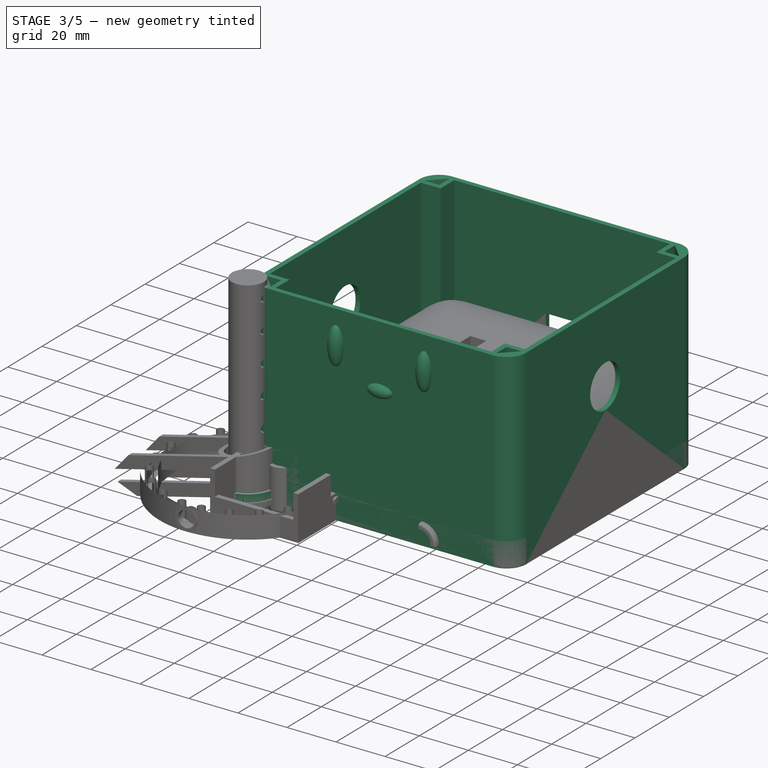
[diagram: stage 3 of 5 — iso view after this stage's code; geometry added in this stage tinted green]
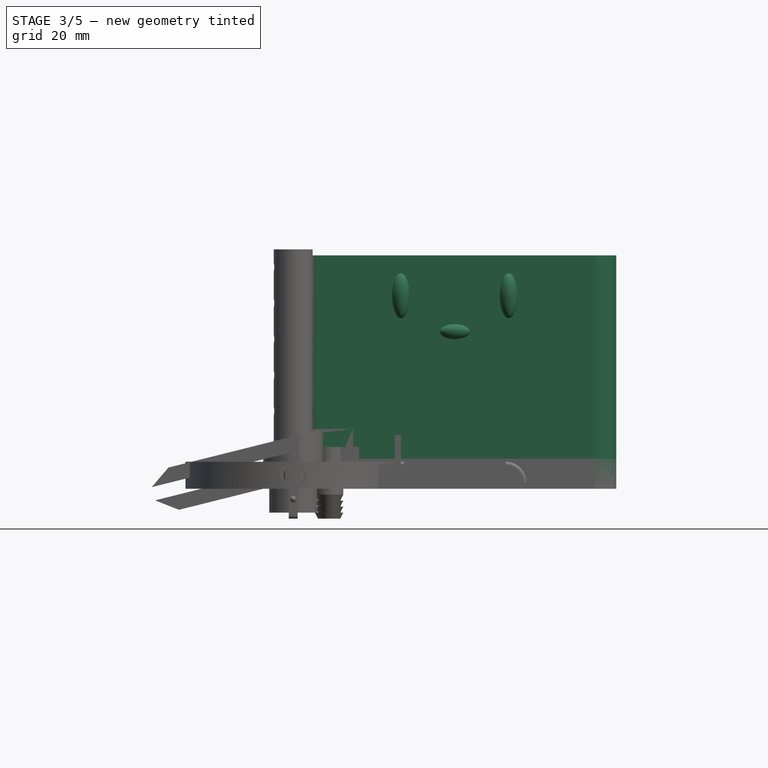
[diagram: stage 3 of 5 — front view after this stage's code; geometry added in this stage tinted green]
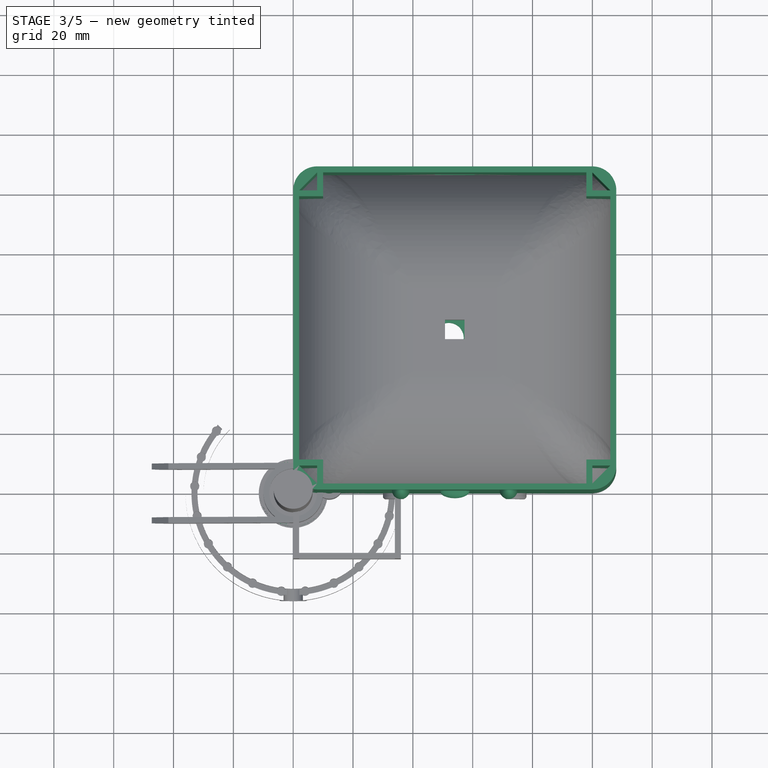
[diagram: stage 3 of 5 — top view after this stage's code; geometry added in this stage tinted green]
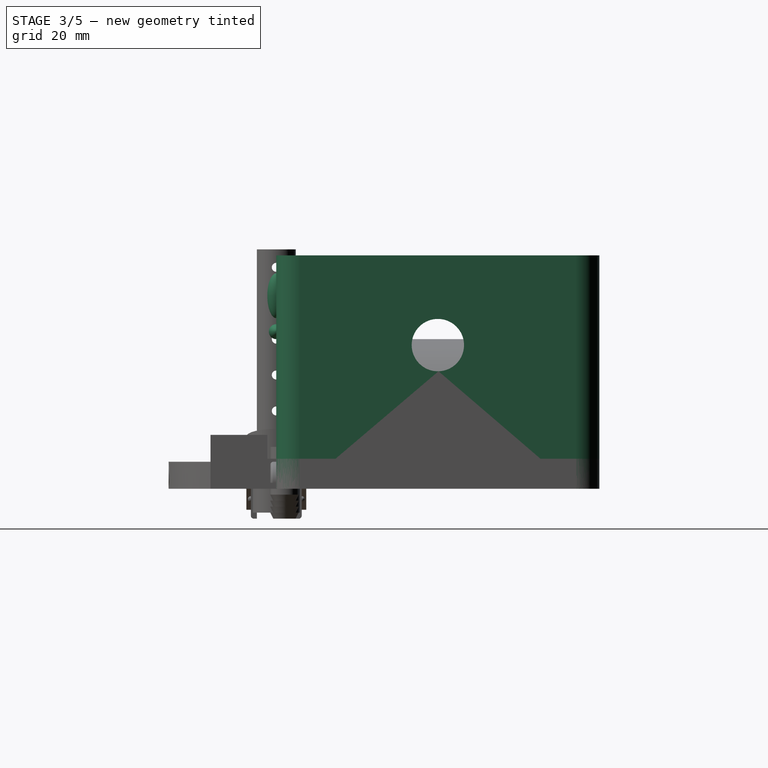
[diagram: stage 3 of 5 — right view after this stage's code; geometry added in this stage tinted green]
FEATURE [PartDesign::Body] Body011  label="arduino"
  Group = -> [Sketch064,Pad034,Sketch065,Pocket020,Sketch062,Pocket021,Sketch063,Pocket022,Sketch067,Revolution005,Sketch068,Revolution006,Sketch084,Pocket029]
  Tip = -> Pocket029
FEATURE [Sketcher::SketchObject] Sketch085
  MapMode = 5
  Support = -> [XY_Plane006]
  sketch-geometry (8):
    g0: ArcOfCircle CenterX=18 CenterY=0 CenterZ=0 NormalX=0 NormalY=0 NormalZ=1 AngleXU=0 Radius=16 StartAngle=0 EndAngle=3.14159
    g1: ArcOfCircle CenterX=18 CenterY=0 CenterZ=0 NormalX=0 NormalY=0 NormalZ=1 AngleXU=0 Radius=18 StartAngle=0 EndAngle=3.14159
    g2: LineSegment StartX=0 StartY=0 StartZ=0 EndX=0 EndY=-22 EndZ=0
    g3: LineSegment StartX=2 StartY=-20 StartZ=0 EndX=2 EndY=0 EndZ=0
    g4: LineSegment StartX=34 StartY=0 StartZ=0 EndX=34 EndY=-20 EndZ=0
    g5: LineSegment StartX=36 StartY=-22 StartZ=0 EndX=36 EndY=0 EndZ=0
    g6: LineSegment StartX=2 StartY=-20 StartZ=0 EndX=34 EndY=-20 EndZ=0
    g7: LineSegment StartX=36 StartY=-22 StartZ=0 EndX=0 EndY=-22 EndZ=0
  constraints (23):
    c: Angle(g0) = 3.14159
    c: Radius(g0) = 16
    c: Angle(g1) = 3.14159
    c: Radius(g1) = 18
    c: Coincident(g1,g0)
    c: Coincident(g1,g-1)
    c: PointOnObject(g0,g-1)
    c: Coincident(g-1,g2)
    c: Vertical(g2)
    c: Coincident(g3,g0)
    c: Vertical(g3)
    c: Tangent(g0,g4) = 1.5708
    c: Coincident(g5,g1)
    c: Vertical(g5)
    c: Equal(g3,g4)
    c: Equal(g2,g5)
    c: DistanceY(g2,g2) = 22
    c: DistanceY(g3,g3) = 20
    c: Coincident(g6,g3)
    c: Coincident(g6,g4)
    c: Horizontal(g6)
    c: Coincident(g7,g5)
    c: Coincident(g7,g2)
FEATURE [Sketcher::SketchObject] Sketch087
  MapMode = 5
  Support = -> [XY_Plane007]
  sketch-geometry (4):
    g0: LineSegment StartX=0 StartY=0 StartZ=0 EndX=108 EndY=0 EndZ=0
    g1: LineSegment StartX=108 StartY=0 StartZ=0 EndX=108 EndY=108 EndZ=0
    g2: LineSegment StartX=108 StartY=108 StartZ=0 EndX=0 EndY=108 EndZ=0
    g3: LineSegment StartX=0 StartY=108 StartZ=0 EndX=0 EndY=0 EndZ=0
  constraints (13):
    c: Coincident(g0,g1)
    c: Coincident(g1,g2)
    c: Coincident(g2,g3)
    c: Coincident(g3,g0)
    c: Horizontal(g0)
    c: Horizontal(g2)
    c: Vertical(g1)
    c: Vertical(g3)
    c: Coincident(g0,g-1)
    c: Equal(g2,g1)
    c: Equal(g1,g0)
    c: Equal(g0,g3)
    c: DistanceX(g0,g0) = 108
FEATURE [PartDesign::Pad] Pad038
  Length = 78
  Length2 = 100
  Profile = -> Sketch087
  Type = 0
FEATURE [PartDesign::Body] Body018  label="tank"
  Group = -> [Sketch095,Pad041,Sketch096,Pocket036,Fillet002,Sketch097,Pocket037,Sketch105,Revolution012,Sketch106,Pocket038]
  Origin = -> Origin010
  Tip = -> Pocket038
FEATURE [Sketcher::SketchObject] Sketch107
  ExternalGeometry = -> [Pad038]
  MapMode = 5
  Placement = pos=(0,0,78) rot=(0,0,1;0rad)
  Support = -> [Pad038]
  sketch-geometry (12):
    g0: LineSegment StartX=2 StartY=98 StartZ=0 EndX=10 EndY=98 EndZ=0
    g1: LineSegment StartX=10 StartY=98 StartZ=0 EndX=10 EndY=106 EndZ=0
    g2: LineSegment StartX=10 StartY=106 StartZ=0 EndX=98 EndY=106 EndZ=0
    g3: LineSegment StartX=98 StartY=106 StartZ=0 EndX=98 EndY=98 EndZ=0
    g4: LineSegment StartX=98 StartY=98 StartZ=0 EndX=106 EndY=98 EndZ=0
    g5: LineSegment StartX=106 StartY=98 StartZ=0 EndX=106 EndY=10 EndZ=0
    g6: LineSegment StartX=106 StartY=10 StartZ=0 EndX=98 EndY=10 EndZ=0
    g7: LineSegment StartX=98 StartY=10 StartZ=0 EndX=98 EndY=2 EndZ=0
    g8: LineSegment StartX=98 StartY=2 StartZ=0 EndX=10 EndY=2 EndZ=0
    g9: LineSegment StartX=10 StartY=2 StartZ=0 EndX=10 EndY=10 EndZ=0
    g10: LineSegment StartX=10 StartY=10 StartZ=0 EndX=2 EndY=10 EndZ=0
    g11: LineSegment StartX=2 StartY=10 StartZ=0 EndX=2 EndY=98 EndZ=0
  constraints (36):
    c: Coincident(g0,g1)
    c: Coincident(g1,g2)
    c: Horizontal(g2)
    c: Coincident(g2,g3)
    c: Coincident(g3,g4)
    c: Horizontal(g4)
    c: Coincident(g4,g5)
    c: Coincident(g5,g6)
    c: Coincident(g6,g7)
    c: Coincident(g7,g8)
    c: Coincident(g8,g9)
    c: Vertical(g9)
    c: Coincident(g9,g10)
    c: Coincident(g10,g11)
    c: Coincident(g11,g0)
    c: Horizontal(g0)
    c: Horizontal(g10)
    c: Horizontal(g6)
    c: Vertical(g1)
    c: Vertical(g3)
    c: Vertical(g7)
    c: Vertical(g11)
    c: Vertical(g5)
    c: Horizontal(g8)
    c: Equal(g1,g3)
    c: Equal(g3,g7)
    c: Equal(g7,g9)
    c: Equal(g9,g10)
    c: Equal(g10,g0)
    c: Equal(g0,g4)
    c: Equal(g4,g6)
    c: Distance(g1,g-3) = 2
    c: DistanceX(g-2,g0) = 2
    c: DistanceY(g-1,g8) = 2
    c: Distance(g5,g-4) = 2
    c: DistanceY(g3,g3) = 8
FEATURE [PartDesign::Pocket] Pocket039
  BaseFeature = -> Pad038
  Length = 5
  Length2 = 100
  Profile = -> Sketch107
  Type = 1
FEATURE [PartDesign::Fillet] Fillet006
  Base = -> Pocket039 [Edge5,Edge8,Edge2,Edge1]
  BaseFeature = -> Pocket039
  Radius = 8
FEATURE [Sketcher::SketchObject] Sketch108
  MapMode = 5
  Support = -> [XY_Plane012]
  sketch-geometry (4):
    g0: LineSegment StartX=0 StartY=0 StartZ=0 EndX=108 EndY=0 EndZ=0
    g1: LineSegment StartX=108 StartY=0 StartZ=0 EndX=108 EndY=108 EndZ=0
    g2: LineSegment StartX=108 StartY=108 StartZ=0 EndX=0 EndY=108 EndZ=0
    g3: LineSegment StartX=0 StartY=108 StartZ=0 EndX=0 EndY=0 EndZ=0
  constraints (11):
    c: Coincident(g0,g1)
    c: Coincident(g1,g2)
    c: Coincident(g2,g3)
    c: Coincident(g3,g0)
    c: Horizontal(g0)
    c: Horizontal(g2)
    c: Vertical(g1)
    c: Vertical(g3)
    c: Coincident(g0,g-1)
    c: Equal(g1,g2)
    c: DistanceY(g3,g3) = 108
FEATURE [PartDesign::Pad] Pad045
  Length = 3.27
  Length2 = 100
  Profile = -> Sketch108
  Type = 0
FEATURE [PartDesign::Fillet] Fillet007
  Base = -> Pad045 [Edge1,Edge8,Edge5,Edge2]
  BaseFeature = -> Pad045
  Radius = 8
FEATURE [Sketcher::SketchObject] Sketch115
  ExternalGeometry = -> [Fillet006]
  MapMode = 5
  Placement = pos=(0,0,78) rot=(0,0,1;0rad)
  Support = -> [Fillet006]
  sketch-geometry (12):
    g0: LineSegment StartX=2 StartY=100 StartZ=0 EndX=8 EndY=100 EndZ=0
    g1: LineSegment StartX=8 StartY=100 StartZ=0 EndX=8 EndY=106 EndZ=0
    g2: LineSegment StartX=8 StartY=106 StartZ=0 EndX=2 EndY=100 EndZ=0
    g3: LineSegment StartX=100 StartY=106 StartZ=0 EndX=100 EndY=100 EndZ=0
    g4: LineSegment StartX=100 StartY=100 StartZ=0 EndX=106 EndY=100 EndZ=0
    g5: LineSegment StartX=106 StartY=100 StartZ=0 EndX=100 EndY=106 EndZ=0
    g6: LineSegment StartX=100 StartY=2 StartZ=0 EndX=100 EndY=8 EndZ=0
    g7: LineSegment StartX=100 StartY=8 StartZ=0 EndX=106 EndY=8 EndZ=0
    g8: LineSegment StartX=106 StartY=8 StartZ=0 EndX=100 EndY=2 EndZ=0
    g9: LineSegment StartX=2 StartY=8 StartZ=0 EndX=8 EndY=8 EndZ=0
    g10: LineSegment StartX=8 StartY=8 StartZ=0 EndX=8 EndY=2 EndZ=0
    g11: LineSegment StartX=8 StartY=2 StartZ=0 EndX=2 EndY=8 EndZ=0
  constraints (36):
    c: Coincident(g0,g1)
    c: Coincident(g1,g2)
    c: Coincident(g2,g0)
    c: Horizontal(g0)
    c: Vertical(g1)
    c: Distance(g1,g-3) = 2
    c: Distance(g0,g-14) = 2
    c: DistanceX(g0,g0) = 6
    c: DistanceY(g1,g1) = 6
    c: Coincident(g3,g4)
    c: Horizontal(g4)
    c: Coincident(g4,g5)
    c: Coincident(g5,g3)
    c: Distance(g3,g-6) = 2
    c: Distance(g4,g-7) = 2
    c: Vertical(g3)
    c: Equal(g4,g3)
    c: DistanceX(g4,g4) = 6
    c: Coincident(g6,g7)
    c: Horizontal(g7)
    c: Coincident(g7,g8)
    c: Coincident(g8,g6)
    c: Vertical(g6)
    c: Equal(g6,g7)
    c: DistanceX(g7,g7) = 6
    c: Distance(g6,g-9) = 2
    c: Distance(g6,g-8) = 2
    c: Horizontal(g9)
    c: Coincident(g9,g10)
    c: Vertical(g10)
    c: Coincident(g10,g11)
    c: Coincident(g11,g9)
    c: Equal(g9,g10)
    c: DistanceX(g9,g9) = 6
    c: Distance(g9,g-12) = 2
    c: Distance(g9,g-11) = 2
FEATURE [PartDesign::Pocket] Pocket043
  BaseFeature = -> Fillet006
  Length = 5
  Length2 = 100
  Profile = -> Sketch115
  Type = 1
FEATURE [PartDesign::Body] Body023  label="magframe_327"
  Group = -> [Sketch128,Pad051,Fillet010,Sketch129,Pocket051,Sketch130,Pocket050]
  Origin = -> Origin015
  Placement = pos=(0,0,102) rot=(0,0,1;0rad)
  Tip = -> Pocket050
FEATURE [Sketcher::SketchObject] Sketch
  ExternalGeometry = -> [Fillet007]
  MapMode = 5
  Placement = pos=(0,0,3.27) rot=(0,0,1;0rad)
  Support = -> [Fillet007]
  sketch-geometry (3):
    g0: Circle [constr] CenterX=100 CenterY=8 CenterZ=0 NormalX=0 NormalY=0 NormalZ=1 AngleXU=0 Radius=8
    g1: Circle CenterX=55.9 CenterY=14.2 CenterZ=0 NormalX=0 NormalY=0 NormalZ=1 AngleXU=0 Radius=8.2
    g2: Circle CenterX=82 CenterY=14.2 CenterZ=0 NormalX=0 NormalY=0 NormalZ=1 AngleXU=0 Radius=8.2
  constraints (8):
    c: Coincident(g0,g-5)
    c: Radius(g0) = 8
    c: Equal(g1,g2)
    c: Radius(g1) = 8.2
    c: Distance(g1,g2) = 26.1
    c: Distance(g2,g-7) = 26
    c: DistanceY(g-1,g1) = 14.2
    c: DistanceY(g-1,g2) = 14.2
FEATURE [PartDesign::Pocket] Pocket
  BaseFeature = -> Fillet007
  Length = 5
  Length2 = 100
  Profile = -> Sketch
  Type = 1
FEATURE [Sketcher::SketchObject] Sketch131
  ExternalGeometry = -> [Pocket]
  MapMode = 5
  Placement = pos=(0,0,3.27) rot=(0,0,1;0rad)
  Support = -> [Pocket]
  sketch-geometry (4):
    g0: Circle CenterX=55.9 CenterY=14.2 CenterZ=0 NormalX=0 NormalY=0 NormalZ=1 AngleXU=0 Radius=8.2
    g1: Circle CenterX=55.9 CenterY=14.2 CenterZ=0 NormalX=0 NormalY=0 NormalZ=1 AngleXU=0 Radius=10.2
    g2: Circle CenterX=82 CenterY=14.2 CenterZ=0 NormalX=0 NormalY=0 NormalZ=1 AngleXU=0 Radius=8.2
    g3: Circle CenterX=82 CenterY=14.2 CenterZ=0 NormalX=0 NormalY=0 NormalZ=1 AngleXU=0 Radius=10.2
  constraints (8):
    c: Coincident(g0,g1)
    c: Coincident(g3,g2)
    c: Equal(g1,g3)
    c: Equal(g2,g0)
    c: Radius(g0) = 8.2
    c: Radius(g1) = 10.2
    c: Coincident(g0,g-3)
    c: Coincident(g-4,g2)
FEATURE [PartDesign::Pad] Pad
  BaseFeature = -> Pocket
  Length = 10.2
  Length2 = 100
  Profile = -> Sketch131
  Type = 0
FEATURE [Sketcher::SketchObject] Sketch132
  ExternalGeometry = -> [Pad]
  MapMode = 5
  Placement = pos=(0,0,3.27) rot=(0,0,1;0rad)
  Support = -> [Pad]
  sketch-geometry (12):
    g0: LineSegment StartX=2.25 StartY=94.0884 StartZ=0 EndX=2.25 EndY=13.9183 EndZ=0
    g1: LineSegment StartX=13.9139 StartY=2.25 StartZ=0 EndX=94.084 EndY=2.25 EndZ=0
    g2: LineSegment StartX=105.75 StartY=94.0861 StartZ=0 EndX=105.75 EndY=13.9161 EndZ=0
    g3: LineSegment StartX=13.9153 StartY=105.75 StartZ=0 EndX=94.0854 EndY=105.75 EndZ=0
    g4: ArcOfCircle CenterX=7.93412 CenterY=100.068 CenterZ=0 NormalX=0 NormalY=0 NormalZ=1 AngleXU=0 Radius=8.25 StartAngle=3.9523 EndAngle=7.04296
    g5: ArcOfCircle CenterX=100.051 CenterY=100.051 CenterZ=0 NormalX=0 NormalY=0 NormalZ=1 AngleXU=0 Radius=8.25 StartAngle=2.379 EndAngle=5.47505
    g6: ArcOfCircle CenterX=100.001 CenterY=7.99887 CenterZ=0 NormalX=0 NormalY=0 NormalZ=1 AngleXU=0 Radius=8.25 StartAngle=0.799825 EndAngle=3.91256
    g7: ArcOfCircle CenterX=7.99905 CenterY=8.00128 CenterZ=0 NormalX=0 NormalY=0 NormalZ=1 AngleXU=0 Radius=8.25 StartAngle=5.51181 EndAngle=8.62498
    g8: LineSegment StartX=0 StartY=0 StartZ=0 EndX=108 EndY=0 EndZ=0
    g9: LineSegment StartX=108 StartY=0 StartZ=0 EndX=108 EndY=108 EndZ=0
    g10: LineSegment StartX=108 StartY=108 StartZ=0 EndX=0 EndY=108 EndZ=0
    g11: LineSegment StartX=0 StartY=108 StartZ=0 EndX=0 EndY=0 EndZ=0
  constraints (34):
    c: Vertical(g0)
    c: Horizontal(g1)
    c: Vertical(g2)
    c: Horizontal(g3)
    c: Distance(g3,g-8) = 2.25
    c: DistanceX(g-2,g0) = 2.25
    c: Distance(g2,g-7) = 2.25
    c: DistanceY(g-1,g1) = 2.25
    c: Equal(g0,g3)
    c: Equal(g3,g2)
    c: Equal(g2,g1)
    c: Coincident(g4,g3)
    c: Coincident(g4,g0)
    c: Coincident(g5,g3)
    c: Coincident(g5,g2)
    c: Coincident(g6,g2)
    c: Coincident(g6,g1)
    c: Coincident(g7,g1)
    c: Coincident(g7,g0)
    c: Equal(g7,g4)
    c: Equal(g4,g5)
    c: Equal(g5,g6)
    c: Radius(g4) = 8.25
    c: Coincident(g8,g9)
    c: Coincident(g9,g10)
    c: Coincident(g10,g11)
    c: Coincident(g11,g8)
    c: Horizontal(g8)
    c: Horizontal(g10)
    c: Vertical(g9)
    c: Vertical(g11)
    c: Coincident(g8,g-1)
    c: Equal(g9,g10)
    c: DistanceY(g11,g11) = 108
FEATURE [PartDesign::Pocket] Pocket052
  BaseFeature = -> Pad
  Length = 5
  Length2 = 100
  Profile = -> Sketch132
  Type = 1
FEATURE [Sketcher::SketchObject] Sketch133
  MapMode = 5
  Placement = pos=(0,0,3.27) rot=(0,0,1;0rad)
  Support = -> [Pocket052]
  sketch-geometry (1):
    g0: Circle CenterX=52 CenterY=52 CenterZ=0 NormalX=0 NormalY=0 NormalZ=1 AngleXU=0 Radius=5
  constraints (3):
    c: Radius(g0) = 5
    c: DistanceX(g-2,g0) = 52
    c: DistanceY(g-1,g0) = 52
FEATURE [PartDesign::Pocket] Pocket053
  BaseFeature = -> Pocket052
  Length = 5
  Length2 = 100
  Profile = -> Sketch133
  Type = 1
FEATURE [Sketcher::SketchObject] Sketch134
  ExternalGeometry = -> [Pocket053]
  MapMode = 5
  Placement = pos=(0,0,3.27) rot=(0,0,1;0rad)
  Support = -> [Pocket053]
  sketch-geometry (32):
    g0: LineSegment StartX=2.25 StartY=96.0884 StartZ=0 EndX=6.25 EndY=96.0884 EndZ=0
    g1: LineSegment StartX=6.25 StartY=96.0884 StartZ=0 EndX=6.25 EndY=88.0884 EndZ=0
    g2: LineSegment StartX=6.25 StartY=88.0884 StartZ=0 EndX=2.25 EndY=88.0884 EndZ=0
    g3: LineSegment StartX=2.25 StartY=88.0884 StartZ=0 EndX=2.25 EndY=96.0884 EndZ=0
    g4: LineSegment StartX=11.9153 StartY=105.75 StartZ=0 EndX=19.9153 EndY=105.75 EndZ=0
    g5: LineSegment StartX=19.9153 StartY=105.75 StartZ=0 EndX=19.9153 EndY=101.75 EndZ=0
    g6: LineSegment StartX=19.9153 StartY=101.75 StartZ=0 EndX=11.9153 EndY=101.75 EndZ=0
    g7: LineSegment StartX=11.9153 StartY=101.75 StartZ=0 EndX=11.9153 EndY=105.75 EndZ=0
    g8: LineSegment StartX=88.0854 StartY=105.75 StartZ=0 EndX=96.0854 EndY=105.75 EndZ=0
    g9: LineSegment StartX=96.0854 StartY=105.75 StartZ=0 EndX=96.0854 EndY=101.75 EndZ=0
    g10: LineSegment StartX=96.0854 StartY=101.75 StartZ=0 EndX=88.0854 EndY=101.75 EndZ=0
    g11: LineSegment StartX=88.0854 StartY=101.75 StartZ=0 EndX=88.0854 EndY=105.75 EndZ=0
    g12: LineSegment StartX=101.75 StartY=96.0861 StartZ=0 EndX=105.75 EndY=96.0861 EndZ=0
    g13: LineSegment StartX=105.75 StartY=96.0861 StartZ=0 EndX=105.75 EndY=88.0861 EndZ=0
    g14: LineSegment StartX=105.75 StartY=88.0861 StartZ=0 EndX=101.75 EndY=88.0861 EndZ=0
    g15: LineSegment StartX=101.75 StartY=88.0861 StartZ=0 EndX=101.75 EndY=96.0861 EndZ=0
    g16: LineSegment StartX=101.75 StartY=19.9161 StartZ=0 EndX=105.75 EndY=19.9161 EndZ=0
    g17: LineSegment StartX=105.75 StartY=19.9161 StartZ=0 EndX=105.75 EndY=11.9161 EndZ=0
    g18: LineSegment StartX=105.75 StartY=11.9161 StartZ=0 EndX=101.75 EndY=11.9161 EndZ=0
    g19: LineSegment StartX=101.75 StartY=11.9161 StartZ=0 EndX=101.75 EndY=19.9161 EndZ=0
    g20: LineSegment StartX=96.084 StartY=2.25 StartZ=0 EndX=88.084 EndY=2.25 EndZ=0
    g21: LineSegment StartX=88.084 StartY=2.25 StartZ=0 EndX=88.084 EndY=6.25 EndZ=0
    g22: LineSegment StartX=88.084 StartY=6.25 StartZ=0 EndX=96.084 EndY=6.25 EndZ=0
    g23: LineSegment StartX=96.084 StartY=6.25 StartZ=0 EndX=96.084 EndY=2.25 EndZ=0
    g24: LineSegment StartX=11.9139 StartY=6.25 StartZ=0 EndX=19.9139 EndY=6.25 EndZ=0
    g25: LineSegment StartX=19.9139 StartY=6.25 StartZ=0 EndX=19.9139 EndY=2.25 EndZ=0
    g26: LineSegment StartX=19.9139 StartY=2.25 StartZ=0 EndX=11.9139 EndY=2.25 EndZ=0
    g27: LineSegment StartX=11.9139 StartY=2.25 StartZ=0 EndX=11.9139 EndY=6.25 EndZ=0
    g28: LineSegment StartX=2.25 StartY=19.9183 StartZ=0 EndX=6.25 EndY=19.9183 EndZ=0
    g29: LineSegment StartX=6.25 StartY=19.9183 StartZ=0 EndX=6.25 EndY=11.9183 EndZ=0
    g30: LineSegment StartX=6.25 StartY=11.9183 StartZ=0 EndX=2.25 EndY=11.9183 EndZ=0
    g31: LineSegment StartX=2.25 StartY=11.9183 StartZ=0 EndX=2.25 EndY=19.9183 EndZ=0
  constraints (96):
    c: Coincident(g0,g1)
    c: Coincident(g1,g2)
    c: Coincident(g2,g3)
    c: Coincident(g3,g0)
    c: Horizontal(g0)
    c: Horizontal(g2)
    c: Vertical(g1)
    c: Vertical(g3)
    c: Coincident(g4,g5)
    c: Coincident(g5,g6)
    c: Coincident(g6,g7)
    c: Coincident(g7,g4)
    c: Horizontal(g4)
    c: Horizontal(g6)
    c: Vertical(g5)
    c: Vertical(g7)
    c: Coincident(g8,g9)
    c: Coincident(g9,g10)
    c: Coincident(g10,g11)
    c: Coincident(g11,g8)
    c: Horizontal(g8)
    c: Horizontal(g10)
    c: Vertical(g9)
    c: Vertical(g11)
    c: Coincident(g12,g13)
    c: Coincident(g13,g14)
    c: Coincident(g14,g15)
    c: Coincident(g15,g12)
    c: Horizontal(g12)
    c: Horizontal(g14)
    c: Vertical(g13)
    c: Vertical(g15)
    c: Coincident(g16,g17)
    c: Coincident(g17,g18)
    c: Coincident(g18,g19)
    c: Coincident(g19,g16)
    c: Horizontal(g16)
    c: Horizontal(g18)
    c: Vertical(g17)
    c: Vertical(g19)
    c: Coincident(g20,g21)
    c: Coincident(g21,g22)
    c: Coincident(g22,g23)
    c: Coincident(g23,g20)
    c: Horizontal(g20)
    c: Horizontal(g22)
    c: Vertical(g21)
    c: Vertical(g23)
    c: Coincident(g24,g25)
    c: Coincident(g25,g26)
    c: Coincident(g26,g27)
    c: Coincident(g27,g24)
    c: Horizontal(g24)
    c: Horizontal(g26)
    c: Vertical(g25)
    c: Vertical(g27)
    c: Coincident(g28,g29)
    c: Coincident(g29,g30)
    c: Coincident(g30,g31)
    c: Coincident(g31,g28)
    c: Horizontal(g28)
    c: Horizontal(g30)
    c: Vertical(g29)
    c: Vertical(g31)
    c: Equal(g29,g24)
    c: Equal(g24,g19)
    c: Equal(g19,g15)
    c: Equal(g15,g10)
    c: Equal(g10,g6)
    c: Equal(g6,g1)
    c: Equal(g1,g22)
    c: Equal(g28,g2)
    c: Equal(g2,g5)
    c: Equal(g5,g11)
    c: Equal(g11,g14)
    c: Equal(g14,g16)
    c: Equal(g16,g21)
    c: Equal(g21,g25)
    c: DistanceY(g1,g1) = 8
    c: DistanceX(g2,g2) = 4
    c: PointOnObject(g2,g-3)
    c: Distance(g0,g-3) = 2
    c: PointOnObject(g4,g-4)
    c: Distance(g4,g-4) = 2
    c: PointOnObject(g8,g-4)
    c: PointOnObject(g13,g-5)
    c: PointOnObject(g16,g-5)
    c: PointOnObject(g20,g-6)
    c: PointOnObject(g25,g-6)
    c: PointOnObject(g28,g-3)
    c: Distance(g30,g-3) = 2
    c: Distance(g26,g-6) = 2
    c: Distance(g20,g-6) = 2
    c: Distance(g17,g-5) = 2
    c: Distance(g12,g-5) = 2
    c: Distance(g8,g-4) = 2
FEATURE [PartDesign::Pad] Pad052
  BaseFeature = -> Pocket053
  Length = 5
  Length2 = 100
  Profile = -> Sketch134
  Type = 0
FEATURE [Sketcher::SketchObject] Sketch135
  ExternalGeometry = -> [Pad052]
  MapMode = 5
  Placement = pos=(105.75,0,0) rot=(0.57735,0.57735,0.57735;2.0944rad)
  Support = -> [Pad052]
  sketch-geometry (6):
    g0: LineSegment StartX=96.0861 StartY=8.27 StartZ=0 EndX=88.0861 EndY=8.27 EndZ=0
    g1: LineSegment StartX=88.0861 StartY=8.27 StartZ=0 EndX=96.0861 EndY=3.27 EndZ=0
    g2: LineSegment StartX=96.0861 StartY=3.27 StartZ=0 EndX=96.0861 EndY=8.27 EndZ=0
    g3: LineSegment StartX=11.9161 StartY=8.27 StartZ=0 EndX=19.9161 EndY=8.27 EndZ=0
    g4: LineSegment StartX=19.9161 StartY=8.27 StartZ=0 EndX=11.9161 EndY=3.27 EndZ=0
    g5: LineSegment StartX=11.9161 StartY=3.27 StartZ=0 EndX=11.9161 EndY=8.27 EndZ=0
  constraints (12):
    c: Coincident(g-6,g0)
    c: Coincident(g0,g-5)
    c: Coincident(g0,g1)
    c: Coincident(g1,g-6)
    c: Coincident(g1,g2)
    c: Coincident(g2,g0)
    c: Coincident(g-3,g3)
    c: Coincident(g3,g-4)
    c: Coincident(g3,g4)
    c: Coincident(g4,g-3)
    c: Coincident(g4,g5)
    c: Coincident(g5,g3)
FEATURE [PartDesign::Pocket] Pocket054
  BaseFeature = -> Pad052
  Length = 4
  Length2 = 100
  Profile = -> Sketch135
  Type = 0
FEATURE [Sketcher::SketchObject] Sketch136
  ExternalGeometry = -> [Pocket054]
  MapMode = 5
  Placement = pos=(0,105.75,0) rot=(0,0.707107,0.707107;3.14159rad)
  Support = -> [Pocket054]
  sketch-geometry (6):
    g0: LineSegment StartX=-96.0854 StartY=8.27 StartZ=0 EndX=-88.0854 EndY=8.27 EndZ=0
    g1: LineSegment StartX=-88.0854 StartY=8.27 StartZ=0 EndX=-96.0854 EndY=3.27 EndZ=0
    g2: LineSegment StartX=-96.0854 StartY=3.27 StartZ=0 EndX=-96.0854 EndY=8.27 EndZ=0
    g3: LineSegment StartX=-19.9153 StartY=8.27 StartZ=0 EndX=-11.9153 EndY=8.27 EndZ=0
    g4: LineSegment StartX=-11.9153 StartY=8.27 StartZ=0 EndX=-11.9153 EndY=3.27 EndZ=0
    g5: LineSegment StartX=-11.9153 StartY=3.27 StartZ=0 EndX=-19.9153 EndY=8.27 EndZ=0
  constraints (12):
    c: Coincident(g-3,g0)
    c: Coincident(g0,g-4)
    c: Coincident(g0,g1)
    c: Coincident(g1,g-3)
    c: Coincident(g1,g2)
    c: Coincident(g2,g0)
    c: Coincident(g-5,g3)
    c: Coincident(g3,g-6)
    c: Coincident(g3,g4)
    c: Coincident(g4,g-6)
    c: Coincident(g4,g5)
    c: Coincident(g5,g3)
FEATURE [PartDesign::Pocket] Pocket055
  BaseFeature = -> Pocket054
  Length = 4
  Length2 = 100
  Profile = -> Sketch136
  Type = 0
FEATURE [Sketcher::SketchObject] Sketch137
  ExternalGeometry = -> [Pocket055]
  MapMode = 5
  Placement = pos=(2.25,0,0) rot=(0.57735,-0.57735,-0.57735;2.0944rad)
  Support = -> [Pocket055]
  sketch-geometry (6):
    g0: LineSegment StartX=-96.0884 StartY=8.27 StartZ=0 EndX=-88.0884 EndY=8.27 EndZ=0
    g1: LineSegment StartX=-88.0884 StartY=8.27 StartZ=0 EndX=-96.0884 EndY=3.27 EndZ=0
    g2: LineSegment StartX=-96.0884 StartY=3.27 StartZ=0 EndX=-96.0884 EndY=8.27 EndZ=0
    g3: LineSegment StartX=-19.9183 StartY=8.27 StartZ=0 EndX=-11.9183 EndY=8.27 EndZ=0
    g4: LineSegment StartX=-11.9183 StartY=8.27 StartZ=0 EndX=-11.9183 EndY=3.27 EndZ=0
    g5: LineSegment StartX=-11.9183 StartY=3.27 StartZ=0 EndX=-19.9183 EndY=8.27 EndZ=0
  constraints (12):
    c: Coincident(g-3,g0)
    c: Coincident(g0,g-4)
    c: Coincident(g0,g1)
    c: Coincident(g1,g-3)
    c: Coincident(g1,g2)
    c: Coincident(g2,g0)
    c: Coincident(g-5,g3)
    c: Coincident(g3,g-6)
    c: Coincident(g3,g4)
    c: Coincident(g4,g-6)
    c: Coincident(g4,g5)
    c: Coincident(g5,g3)
FEATURE [PartDesign::Pocket] Pocket056
  BaseFeature = -> Pocket055
  Length = 4
  Length2 = 100
  Profile = -> Sketch137
  Type = 0
FEATURE [Sketcher::SketchObject] Sketch145
  MapMode = 5
  Support = -> [XY_Plane016]
  sketch-geometry (2):
    g0: Circle CenterX=0 CenterY=0 CenterZ=0 NormalX=0 NormalY=0 NormalZ=1 AngleXU=0 Radius=9
    g1: Circle CenterX=0 CenterY=0 CenterZ=0 NormalX=0 NormalY=0 NormalZ=1 AngleXU=0 Radius=11
  constraints (4):
    c: Radius(g0) = 9
    c: Coincident(g0,g-1)
    c: Coincident(g1,g-1)
    c: Radius(g1) = 11
FEATURE [PartDesign::Pad] Pad058
  Length = 5
  Length2 = 100
  Profile = -> Sketch145
  Type = 0
FEATURE [PartDesign::Body] Body024  label="plug_ring"
  Group = -> [Sketch145,Pad058]
  Origin = -> Origin016
  Placement = pos=(0,0,-7) rot=(0,0,1;0rad)
  Tip = -> Pad058
FEATURE [Sketcher::SketchObject] Sketch147
  MapMode = 5
  Support = -> [XY_Plane017]
  sketch-geometry (4):
    g0: LineSegment StartX=0 StartY=0 StartZ=0 EndX=20 EndY=0 EndZ=0
    g1: LineSegment StartX=20 StartY=0 StartZ=0 EndX=20 EndY=2 EndZ=0
    g2: LineSegment StartX=20 StartY=2 StartZ=0 EndX=0 EndY=2 EndZ=0
    g3: LineSegment StartX=0 StartY=2 StartZ=0 EndX=0 EndY=0 EndZ=0
  constraints (11):
    c: Coincident(g0,g1)
    c: Coincident(g1,g2)
    c: Coincident(g2,g3)
    c: Coincident(g3,g0)
    c: Horizontal(g0)
    c: Horizontal(g2)
    c: Vertical(g1)
    c: Vertical(g3)
    c: Coincident(g0,g-1)
    c: DistanceY(g3,g3) = 2
    c: DistanceX(g2,g2) = 20
FEATURE [PartDesign::Pad] Pad060
  Length = 20
  Length2 = 100
  Profile = -> Sketch147
  Type = 0
FEATURE [Sketcher::SketchObject] Sketch148
  MapMode = 5
  Placement = pos=(0,0,0) rot=(1,0,0;1.5708rad)
  Support = -> [Pad060]
  sketch-geometry (1):
    g0: Circle CenterX=10 CenterY=10 CenterZ=0 NormalX=0 NormalY=0 NormalZ=1 AngleXU=0 Radius=8.75
  constraints (3):
    c: Radius(g0) = 8.75
    c: DistanceX(g-2,g0) = 10
    c: DistanceY(g-1,g0) = 10
FEATURE [PartDesign::Pocket] Pocket058
  BaseFeature = -> Pad060
  Length = 5
  Length2 = 100
  Profile = -> Sketch148
  Type = 1
FEATURE [PartDesign::Body] Body025  label="plug_test_hole"
  Group = -> [Sketch147,Pad060,Sketch148,Pocket058]
  Origin = -> Origin017
  Tip = -> Pocket058
FEATURE [Sketcher::SketchObject] Sketch150
  MapMode = 5
  Support = -> [XY_Plane018]
  sketch-geometry (2):
    g0: Circle CenterX=0 CenterY=0 CenterZ=0 NormalX=0 NormalY=0 NormalZ=1 AngleXU=0 Radius=11.5
    g1: Circle CenterX=0 CenterY=0 CenterZ=0 NormalX=0 NormalY=0 NormalZ=1 AngleXU=0 Radius=6.5
  constraints (4):
    c: Radius(g0) = 11.5
    c: Radius(g1) = 6.5
    c: Coincident(g1,g0)
    c: Coincident(g1,g-1)
FEATURE [PartDesign::Pad] Pad061
  Length = 2
  Length2 = 100
  Profile = -> Sketch150
  Type = 0
FEATURE [Sketcher::SketchObject] Sketch151
  ExternalGeometry = -> [Pad061]
  MapMode = 5
  Placement = pos=(0,0,2) rot=(0,0,1;0rad)
  Support = -> [Pad061]
  sketch-geometry (8):
    g0: LineSegment StartX=-1.5 StartY=8.5 StartZ=0 EndX=1.5 EndY=8.5 EndZ=0
    g1: LineSegment StartX=1.5 StartY=8.5 StartZ=0 EndX=1.5 EndY=6.5 EndZ=0
    g2: LineSegment StartX=1.5 StartY=6.5 StartZ=0 EndX=-1.5 EndY=6.5 EndZ=0
    g3: LineSegment StartX=-1.5 StartY=6.5 StartZ=0 EndX=-1.5 EndY=8.5 EndZ=0
    g4: LineSegment StartX=-1.5 StartY=-6.5 StartZ=0 EndX=1.5 EndY=-6.5 EndZ=0
    g5: LineSegment StartX=1.5 StartY=-6.5 StartZ=0 EndX=1.5 EndY=-8.5 EndZ=0
    g6: LineSegment StartX=1.5 StartY=-8.5 StartZ=0 EndX=-1.5 EndY=-8.5 EndZ=0
    g7: LineSegment StartX=-1.5 StartY=-8.5 StartZ=0 EndX=-1.5 EndY=-6.5 EndZ=0
  constraints (24):
    c: Coincident(g0,g1)
    c: Coincident(g1,g2)
    c: Coincident(g2,g3)
    c: Coincident(g3,g0)
    c: Horizontal(g0)
    c: Horizontal(g2)
    c: Vertical(g1)
    c: Vertical(g3)
    c: Coincident(g4,g5)
    c: Coincident(g5,g6)
    c: Coincident(g6,g7)
    c: Coincident(g7,g4)
    c: Horizontal(g4)
    c: Horizontal(g6)
    c: Vertical(g5)
    c: Vertical(g7)
    c: Equal(g5,g1)
    c: Equal(g2,g4)
    c: DistanceY(g1,g1) = 2
    c: DistanceX(g2,g2) = 3
    c: DistanceX(g-2,g0) = 1.5
    c: DistanceX(g-2,g4) = 1.5
    c: Tangent(g4,g-3)
    c: Tangent(g2,g-3)
FEATURE [PartDesign::Pad] Pad062
  BaseFeature = -> Pad061
  Length = 10
  Length2 = 100
  Profile = -> Sketch151
  Type = 0
FEATURE [Sketcher::SketchObject] Sketch152
  ExternalGeometry = -> [Pad062]
  MapMode = 5
  Placement = pos=(0,-8.5,0) rot=(1,0,0;1.5708rad)
  Support = -> [Pad062]
  sketch-geometry (2):
    g0: ArcOfCircle CenterX=0 CenterY=5.5 CenterZ=0 NormalX=0 NormalY=0 NormalZ=1 AngleXU=0 Radius=1 StartAngle=4.71239 EndAngle=7.85398
    g1: LineSegment StartX=0 StartY=6.5 StartZ=0 EndX=0 EndY=4.5 EndZ=0
  constraints (7):
    c: Vertical(g1)
    c: Coincident(g0,g1)
    c: Coincident(g1,g0)
    c: Radius(g0) = 1
    c: PointOnObject(g0,g-2)
    c: Angle(g0) = 3.14159
    c: Distance(g0,g-3) = 2.5
FEATURE [PartDesign::Revolution] Revolution013
  Angle = 180
  Axis = (0,0,1)
  Base = (0,-8.5,0)
  BaseFeature = -> Pad062
  Profile = -> Sketch152
  ReferenceAxis = -> Sketch152 [V_Axis]
  Reversed = true
FEATURE [Sketcher::SketchObject] Sketch153
  ExternalGeometry = -> [Revolution013]
  MapMode = 5
  Placement = pos=(0,8.5,0) rot=(0,0.707107,0.707107;3.14159rad)
  Support = -> [Revolution013]
  sketch-geometry (2):
    g0: ArcOfCircle CenterX=0 CenterY=5.5 CenterZ=0 NormalX=0 NormalY=0 NormalZ=1 AngleXU=0 Radius=1 StartAngle=4.71239 EndAngle=7.85398
    g1: LineSegment StartX=0 StartY=6.5 StartZ=0 EndX=0 EndY=4.5 EndZ=0
  constraints (7):
    c: Vertical(g1)
    c: Radius(g0) = 1
    c: Angle(g0) = 3.14159
    c: Coincident(g1,g0)
    c: Coincident(g0,g1)
    c: PointOnObject(g0,g-2)
    c: Distance(g0,g-3) = 2.5
FEATURE [PartDesign::Revolution] Revolution014
  Angle = 180
  Axis = (0,0,1)
  Base = (0,8.5,0)
  BaseFeature = -> Revolution013
  Profile = -> Sketch153
  ReferenceAxis = -> Sketch153 [V_Axis]
  Reversed = true
FEATURE [PartDesign::Revolution] Revolution017
  Angle = 180
  Axis = (0,0,15)
  Base = (36,0,57)
  BaseFeature = -> Pocket043
  Profile = -> Sketch116
  ReferenceAxis = -> Sketch116 [Axis0]
  Reversed = true
FEATURE [PartDesign::Revolution] Revolution018
  Angle = 180
  Axis = (0,0,15)
  Base = (72,0,57)
  BaseFeature = -> Revolution017
  Profile = -> Sketch117
  ReferenceAxis = -> Sketch117 [Axis0]
  Reversed = true
FEATURE [PartDesign::Revolution] Revolution019
  Angle = 180
  Axis = (-10,0,0)
  Base = (59,0,52.5)
  BaseFeature = -> Revolution018
  Profile = -> Sketch118
  ReferenceAxis = -> Sketch118 [Axis0]
  Reversed = true
FEATURE [PartDesign::Pocket] Pocket059
  BaseFeature = -> Revolution019
  Length = 2
  Length2 = 100
  Profile = -> Sketch119
  Type = 0
FEATURE [Sketcher::SketchObject] Sketch156
  ExternalGeometry = -> [Pocket059]
  MapMode = 5
  Placement = pos=(108,0,0) rot=(0.57735,0.57735,0.57735;2.0944rad)
  Support = -> [Pocket059]
  sketch-geometry (1):
    g0: Circle CenterX=54 CenterY=48 CenterZ=0 NormalX=0 NormalY=0 NormalZ=1 AngleXU=0 Radius=8.75
  constraints (3):
    c: Radius(g0) = 8.75
    c: Distance(g0,g-3) = 30
    c: Distance(g0,g-4) = 46
FEATURE [PartDesign::Pocket] Pocket060
  BaseFeature = -> Pocket059
  Length = 2
  Length2 = 100
  Profile = -> Sketch156
  Type = 0
FEATURE [Sketcher::SketchObject] Sketch157
  ExternalGeometry = -> [Pocket060]
  MapMode = 5
  Placement = pos=(0,0,0) rot=(0.57735,-0.57735,-0.57735;2.0944rad)
  Support = -> [Pocket060]
  sketch-geometry (1):
    g0: Circle CenterX=-54 CenterY=48 CenterZ=0 NormalX=0 NormalY=0 NormalZ=1 AngleXU=0 Radius=8.75
  constraints (2):
    c: Equal(g0,g-3)
    c: Coincident(g0,g-3)
FEATURE [PartDesign::Pocket] Pocket061
  BaseFeature = -> Pocket060
  Length = 2
  Length2 = 100
  Profile = -> Sketch157
  Type = 0
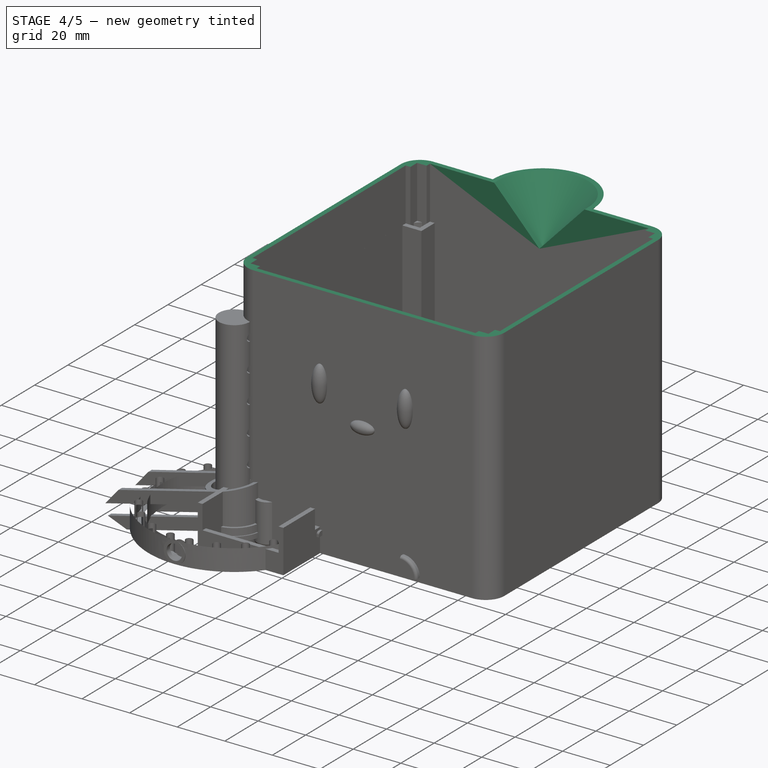
[diagram: stage 4 of 5 — iso view after this stage's code; geometry added in this stage tinted green]
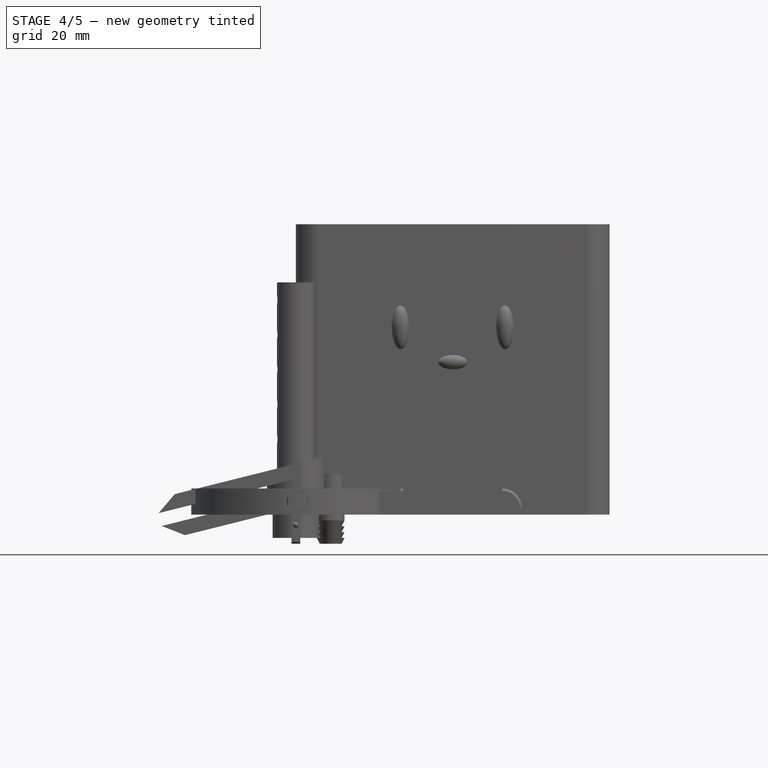
[diagram: stage 4 of 5 — front view after this stage's code; geometry added in this stage tinted green]
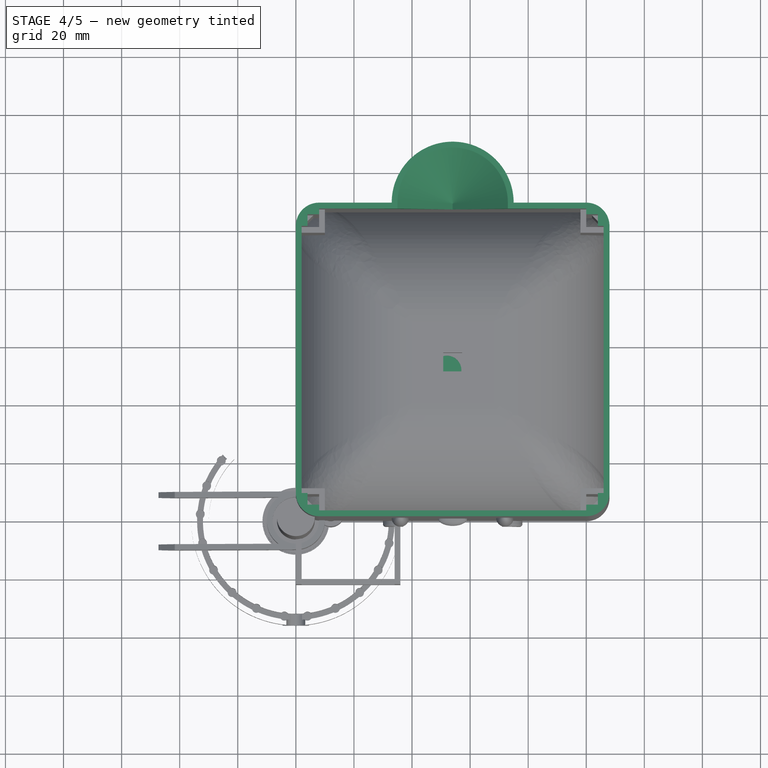
[diagram: stage 4 of 5 — top view after this stage's code; geometry added in this stage tinted green]
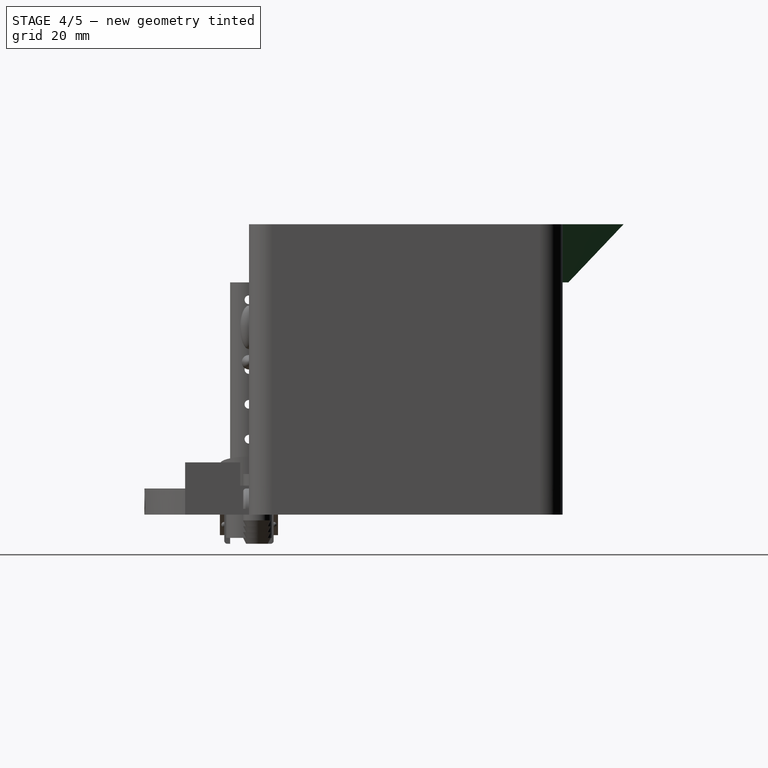
[diagram: stage 4 of 5 — right view after this stage's code; geometry added in this stage tinted green]
FEATURE [PartDesign::Body] Body010  label="boost"
  Group = -> [Sketch057,Pad033,Sketch056,Pocket018,Sketch059,Pocket019,Sketch058,Pocket017,Sketch060,Revolution003,Sketch061,Revolution004]
  Tip = -> Revolution004
FEATURE [Sketcher::SketchObject] Sketch064
  MapMode = 5
  sketch-geometry (4):
    g0: LineSegment StartX=0 StartY=0 StartZ=0 EndX=22.5 EndY=0 EndZ=0
    g1: LineSegment StartX=22.5 StartY=0 StartZ=0 EndX=22.5 EndY=40 EndZ=0
    g2: LineSegment StartX=22.5 StartY=40 StartZ=0 EndX=0 EndY=40 EndZ=0
    g3: LineSegment StartX=0 StartY=40 StartZ=0 EndX=0 EndY=0 EndZ=0
  constraints (11):
    c: Coincident(g0,g1)
    c: Coincident(g1,g2)
    c: Coincident(g2,g3)
    c: Coincident(g3,g0)
    c: Horizontal(g0)
    c: Horizontal(g2)
    c: Vertical(g1)
    c: Vertical(g3)
    c: Coincident(g0,g-1)
    c: DistanceY(g3,g3) = 40
    c: DistanceX(g0,g0) = 22.5
FEATURE [PartDesign::Pad] Pad034
  Length = 6
  Length2 = 100
  Profile = -> Sketch064
  Type = 0
FEATURE [Sketcher::SketchObject] Sketch065
  ExternalGeometry = -> [Pad034]
  MapMode = 5
  Placement = pos=(0,0,6) rot=(0,0,1;0rad)
  Support = -> [Pad034]
  sketch-geometry (4):
    g0: LineSegment StartX=2 StartY=38 StartZ=0 EndX=20.5 EndY=38 EndZ=0
    g1: LineSegment StartX=20.5 StartY=38 StartZ=0 EndX=20.5 EndY=2 EndZ=0
    g2: LineSegment StartX=20.5 StartY=2 StartZ=0 EndX=2 EndY=2 EndZ=0
    g3: LineSegment StartX=2 StartY=2 StartZ=0 EndX=2 EndY=38 EndZ=0
  constraints (12):
    c: Coincident(g0,g1)
    c: Coincident(g1,g2)
    c: Coincident(g2,g3)
    c: Coincident(g3,g0)
    c: Horizontal(g0)
    c: Horizontal(g2)
    c: Vertical(g1)
    c: Vertical(g3)
    c: DistanceX(g-2,g2) = 2
    c: DistanceY(g-1,g2) = 2
    c: Distance(g0,g-4) = 2
    c: Distance(g0,g-3) = 2
FEATURE [PartDesign::Pocket] Pocket020
  BaseFeature = -> Pad034
  Length = 4
  Length2 = 100
  Profile = -> Sketch065
  Type = 0
FEATURE [Sketcher::SketchObject] Sketch062
  ExternalGeometry = -> [Pocket020]
  MapMode = 5
  Placement = pos=(0,0,2) rot=(0,0,1;0rad)
  Support = -> [Pocket020]
  sketch-geometry (4):
    g0: LineSegment StartX=4 StartY=36 StartZ=0 EndX=18.5 EndY=36 EndZ=0
    g1: LineSegment StartX=18.5 StartY=36 StartZ=0 EndX=18.5 EndY=4 EndZ=0
    g2: LineSegment StartX=18.5 StartY=4 StartZ=0 EndX=4 EndY=4 EndZ=0
    g3: LineSegment StartX=4 StartY=4 StartZ=0 EndX=4 EndY=36 EndZ=0
  constraints (12):
    c: Coincident(g0,g1)
    c: Coincident(g1,g2)
    c: Coincident(g2,g3)
    c: Coincident(g3,g0)
    c: Horizontal(g0)
    c: Horizontal(g2)
    c: Vertical(g1)
    c: Vertical(g3)
    c: Distance(g2,g-3) = 2
    c: Distance(g2,g-4) = 2
    c: Distance(g0,g-6) = 2
    c: Distance(g0,g-5) = 2
FEATURE [PartDesign::Pocket] Pocket021
  BaseFeature = -> Pocket020
  Length = 5
  Length2 = 100
  Profile = -> Sketch062
  Type = 1
FEATURE [Sketcher::SketchObject] Sketch063
  ExternalGeometry = -> [Pocket021]
  MapMode = 5
  Placement = pos=(0,0,6) rot=(0,0,1;0rad)
  Support = -> [Pocket021]
  sketch-geometry (4):
    g0: LineSegment StartX=5 StartY=0 StartZ=0 EndX=17.5 EndY=0 EndZ=0
    g1: LineSegment StartX=17.5 StartY=0 StartZ=0 EndX=17.5 EndY=4 EndZ=0
    g2: LineSegment StartX=17.5 StartY=4 StartZ=0 EndX=5 EndY=4 EndZ=0
    g3: LineSegment StartX=5 StartY=4 StartZ=0 EndX=5 EndY=0 EndZ=0
  constraints (12):
    c: Coincident(g0,g1)
    c: Coincident(g1,g2)
    c: Coincident(g2,g3)
    c: Coincident(g3,g0)
    c: Horizontal(g0)
    c: Horizontal(g2)
    c: Vertical(g1)
    c: Vertical(g3)
    c: PointOnObject(g0,g-1)
    c: PointOnObject(g1,g-4)
    c: Distance(g0,g-6) = 5
    c: DistanceX(g-2,g0) = 5
FEATURE [PartDesign::Pocket] Pocket022
  BaseFeature = -> Pocket021
  Length = 5
  Length2 = 100
  Profile = -> Sketch063
  Type = 1
FEATURE [Sketcher::SketchObject] Sketch091
  MapMode = 5
  Support = -> [XY_Plane008]
  sketch-geometry (1):
    g0: Circle CenterX=0 CenterY=0 CenterZ=0 NormalX=0 NormalY=0 NormalZ=1 AngleXU=0 Radius=8
  constraints (2):
    c: Coincident(g0,g-1)
    c: Radius(g0) = 8
FEATURE [PartDesign::Pad] Pad039
  Length = 3.275
  Length2 = 100
  Profile = -> Sketch091
  Type = 0
FEATURE [Sketcher::SketchObject] Sketch092
  MapMode = 5
  Placement = pos=(0,0,3.275) rot=(0,0,1;0rad)
  Support = -> [Pad039]
  sketch-geometry (1):
    g0: Circle CenterX=0 CenterY=0 CenterZ=0 NormalX=0 NormalY=0 NormalZ=1 AngleXU=0 Radius=3.25
  constraints (2):
    c: Coincident(g0,g-1)
    c: Radius(g0) = 3.25
FEATURE [PartDesign::Pocket] Pocket034
  BaseFeature = -> Pad039
  Length = 2.275
  Length2 = 100
  Profile = -> Sketch092
  Type = 0
FEATURE [PartDesign::Body] Body016  label="magnet_327"
  Group = -> [Sketch091,Pad039,Sketch092,Pocket034]
  Origin = -> Origin008
  Placement = pos=(17,0,0) rot=(0,0,1;0rad)
  Tip = -> Pocket034
FEATURE [Sketcher::SketchObject] Sketch093
  MapMode = 5
  Support = -> [XY_Plane009]
  sketch-geometry (1):
    g0: Circle CenterX=0 CenterY=0 CenterZ=0 NormalX=0 NormalY=0 NormalZ=1 AngleXU=0 Radius=8
  constraints (2):
    c: Coincident(g0,g-1)
    c: Radius(g0) = 8
FEATURE [PartDesign::Pad] Pad040
  Length = 2
  Length2 = 100
  Profile = -> Sketch093
  Type = 0
FEATURE [Sketcher::SketchObject] Sketch094
  MapMode = 5
  Placement = pos=(0,0,2) rot=(0,0,1;0rad)
  Support = -> [Pad040]
  sketch-geometry (1):
    g0: Circle CenterX=0 CenterY=0 CenterZ=0 NormalX=0 NormalY=0 NormalZ=1 AngleXU=0 Radius=3.25
  constraints (2):
    c: Coincident(g0,g-1)
    c: Radius(g0) = 3.25
FEATURE [PartDesign::Pocket] Pocket035
  BaseFeature = -> Pad040
  Length = 1
  Length2 = 100
  Profile = -> Sketch094
  Type = 0
FEATURE [PartDesign::Body] Body017  label="magnet_200"
  Group = -> [Sketch093,Pad040,Sketch094,Pocket035]
  Origin = -> Origin009
  Tip = -> Pocket035
FEATURE [Sketcher::SketchObject] Sketch095
  MapMode = 5
  Support = -> [XY_Plane010]
  sketch-geometry (4):
    g0: LineSegment StartX=0 StartY=0 StartZ=0 EndX=108 EndY=0 EndZ=0
    g1: LineSegment StartX=108 StartY=0 StartZ=0 EndX=108 EndY=108 EndZ=0
    g2: LineSegment StartX=108 StartY=108 StartZ=0 EndX=0 EndY=108 EndZ=0
    g3: LineSegment StartX=0 StartY=108 StartZ=0 EndX=0 EndY=0 EndZ=0
  constraints (13):
    c: Coincident(g0,g1)
    c: Coincident(g1,g2)
    c: Coincident(g2,g3)
    c: Coincident(g3,g0)
    c: Horizontal(g0)
    c: Horizontal(g2)
    c: Vertical(g1)
    c: Vertical(g3)
    c: Coincident(g0,g-1)
    c: Equal(g2,g1)
    c: Equal(g1,g0)
    c: Equal(g0,g3)
    c: DistanceX(g0,g0) = 108
FEATURE [PartDesign::Pad] Pad041
  Length = 100
  Length2 = 100
  Profile = -> Sketch095
  Type = 0
FEATURE [Sketcher::SketchObject] Sketch096
  ExternalGeometry = -> [Pad041]
  MapMode = 5
  Placement = pos=(0,0,100) rot=(0,0,1;0rad)
  Support = -> [Pad041]
  sketch-geometry (4):
    g0: LineSegment StartX=4 StartY=104 StartZ=0 EndX=104 EndY=104 EndZ=0
    g1: LineSegment StartX=104 StartY=104 StartZ=0 EndX=104 EndY=4 EndZ=0
    g2: LineSegment StartX=104 StartY=4 StartZ=0 EndX=4 EndY=4 EndZ=0
    g3: LineSegment StartX=4 StartY=4 StartZ=0 EndX=4 EndY=104 EndZ=0
  constraints (12):
    c: Coincident(g0,g1)
    c: Coincident(g1,g2)
    c: Coincident(g2,g3)
    c: Coincident(g3,g0)
    c: Horizontal(g0)
    c: Horizontal(g2)
    c: Vertical(g1)
    c: Vertical(g3)
    c: Distance(g0,g-3) = 4
    c: Distance(g0,g-4) = 4
    c: DistanceX(g-2,g2) = 4
    c: DistanceY(g-1,g2) = 4
FEATURE [PartDesign::Pocket] Pocket036
  BaseFeature = -> Pad041
  Length = 98
  Length2 = 100
  Profile = -> Sketch096
  Type = 0
FEATURE [PartDesign::Fillet] Fillet002
  Base = -> Pocket036 [Edge2,Edge1,Edge5,Edge8]
  BaseFeature = -> Pocket036
  Radius = 8
FEATURE [Sketcher::SketchObject] Sketch097
  ExternalGeometry = -> [Fillet002]
  MapMode = 5
  Placement = pos=(0,0,100) rot=(0,0,1;0rad)
  Support = -> [Fillet002]
  sketch-geometry (24):
    g0: LineSegment [constr] StartX=0 StartY=100 StartZ=0 EndX=4 EndY=100 EndZ=0
    g1: LineSegment [constr] StartX=8 StartY=108 StartZ=0 EndX=8 EndY=104 EndZ=0
    g2: LineSegment [constr] StartX=100 StartY=108 StartZ=0 EndX=100 EndY=104 EndZ=0
    g3: LineSegment [constr] StartX=108 StartY=100 StartZ=0 EndX=104 EndY=100 EndZ=0
    g4: LineSegment [constr] StartX=100 StartY=0 StartZ=0 EndX=100 EndY=4 EndZ=0
    g5: LineSegment [constr] StartX=108 StartY=8 StartZ=0 EndX=104 EndY=8 EndZ=0
    g6: LineSegment [constr] StartX=8 StartY=0 StartZ=0 EndX=8 EndY=4 EndZ=0
    g7: LineSegment [constr] StartX=0 StartY=8 StartZ=0 EndX=4 EndY=8 EndZ=0
    g8: LineSegment StartX=4 StartY=100 StartZ=0 EndX=2 EndY=100 EndZ=0
    g9: LineSegment StartX=2 StartY=100 StartZ=0 EndX=2 EndY=8 EndZ=0
    g10: LineSegment StartX=2 StartY=8 StartZ=0 EndX=4 EndY=8 EndZ=0
    g11: LineSegment StartX=4 StartY=8 StartZ=0 EndX=4 EndY=100 EndZ=0
    g12: LineSegment StartX=8 StartY=4 StartZ=0 EndX=100 EndY=4 EndZ=0
    g13: LineSegment StartX=100 StartY=4 StartZ=0 EndX=100 EndY=2 EndZ=0
    g14: LineSegment StartX=100 StartY=2 StartZ=0 EndX=8 EndY=2 EndZ=0
    g15: LineSegment StartX=8 StartY=2 StartZ=0 EndX=8 EndY=4 EndZ=0
    g16: LineSegment StartX=104 StartY=8 StartZ=0 EndX=106 EndY=8 EndZ=0
    g17: LineSegment StartX=106 StartY=8 StartZ=0 EndX=106 EndY=100 EndZ=0
    g18: LineSegment StartX=106 StartY=100 StartZ=0 EndX=104 EndY=100 EndZ=0
    g19: LineSegment StartX=104 StartY=100 StartZ=0 EndX=104 EndY=8 EndZ=0
    g20: LineSegment StartX=100 StartY=104 StartZ=0 EndX=8 EndY=104 EndZ=0
    g21: LineSegment StartX=8 StartY=104 StartZ=0 EndX=8 EndY=106 EndZ=0
    g22: LineSegment StartX=8 StartY=106 StartZ=0 EndX=100 EndY=106 EndZ=0
    g23: LineSegment StartX=100 StartY=106 StartZ=0 EndX=100 EndY=104 EndZ=0
  constraints (68):
    c: Coincident(g0,g-6)
    c: PointOnObject(g0,g-7)
    c: Horizontal(g0)
    c: Coincident(g1,g-6)
    c: PointOnObject(g1,g-8)
    c: Vertical(g1)
    c: Coincident(g2,g-5)
    c: PointOnObject(g2,g-8)
    c: Vertical(g2)
    c: Coincident(g3,g-5)
    c: PointOnObject(g3,g-9)
    c: Horizontal(g3)
    c: Coincident(g4,g-4)
    c: PointOnObject(g4,g-10)
    c: Vertical(g4)
    c: Coincident(g5,g-4)
    c: PointOnObject(g5,g-9)
    c: Horizontal(g5)
    c: Coincident(g6,g-3)
    c: PointOnObject(g6,g-10)
    c: Vertical(g6)
    c: Coincident(g7,g-3)
    c: PointOnObject(g7,g-7)
    c: Horizontal(g7)
    c: Coincident(g8,g9)
    c: Coincident(g9,g10)
    c: Coincident(g10,g11)
    c: Coincident(g11,g8)
    c: Horizontal(g8)
    c: Horizontal(g10)
    c: Vertical(g9)
    c: Vertical(g11)
    c: Coincident(g8,g0)
    c: PointOnObject(g9,g7)
    c: Coincident(g12,g13)
    c: Coincident(g13,g14)
    c: Coincident(g14,g15)
    c: Coincident(g15,g12)
    c: Horizontal(g12)
    c: Horizontal(g14)
    c: Vertical(g13)
    c: Vertical(g15)
    c: PointOnObject(g13,g4)
    c: Coincident(g16,g17)
    c: Coincident(g17,g18)
    c: Coincident(g18,g19)
    c: Coincident(g19,g16)
    c: Horizontal(g16)
    c: Horizontal(g18)
    c: Vertical(g17)
    c: Vertical(g19)
    c: Coincident(g16,g5)
    c: PointOnObject(g17,g3)
    c: Coincident(g20,g21)
    c: Coincident(g21,g22)
    c: Coincident(g22,g23)
    c: Coincident(g23,g20)
    c: Horizontal(g20)
    c: Horizontal(g22)
    c: Vertical(g21)
    c: Vertical(g23)
    c: Coincident(g20,g2)
    c: PointOnObject(g21,g1)
    c: Equal(g21,g8)
    c: Equal(g8,g18)
    c: Equal(g18,g13)
    c: Coincident(g12,g6)
    c: DistanceY(g21,g21) = 2
FEATURE [PartDesign::Pocket] Pocket037
  BaseFeature = -> Fillet002
  Length = 98
  Length2 = 100
  Profile = -> Sketch097
  Type = 0
FEATURE [Sketcher::SketchObject] Sketch105
  ExternalGeometry = -> [Pocket037]
  MapMode = 5
  Placement = pos=(0,108,0) rot=(0,0.707107,0.707107;3.14159rad)
  Support = -> [Pocket037]
  sketch-geometry (5):
    g0: LineSegment StartX=-75 StartY=100 StartZ=0 EndX=-73 EndY=100 EndZ=0
    g1: LineSegment StartX=-73 StartY=100 StartZ=0 EndX=-54 EndY=80 EndZ=0
    g2: LineSegment StartX=-54 StartY=80 StartZ=0 EndX=-56 EndY=80 EndZ=0
    g3: LineSegment StartX=-56 StartY=80 StartZ=0 EndX=-75 EndY=100 EndZ=0
    g4: LineSegment [constr] StartX=-54 StartY=80 StartZ=0 EndX=-54 EndY=86.8304 EndZ=0
  constraints (14):
    c: Horizontal(g0)
    c: Coincident(g0,g1)
    c: Coincident(g1,g2)
    c: Horizontal(g2)
    c: Coincident(g2,g3)
    c: Coincident(g3,g0)
    c: Equal(g0,g2)
    c: DistanceX(g0,g0) = 2
    c: PointOnObject(g0,g-3)
    c: Distance(g1,g-3) = 20
    c: Distance(g1,g-4) = 46
    c: Distance(g0,g-5) = 25
    c: Coincident(g4,g1)
    c: Vertical(g4)
FEATURE [PartDesign::Revolution] Revolution012
  Angle = 180
  Axis = (0,0,6.83044)
  Base = (54,108,80)
  BaseFeature = -> Pocket037
  Profile = -> Sketch105
  ReferenceAxis = -> Sketch105 [Axis0]
FEATURE [Sketcher::SketchObject] Sketch106
  ExternalGeometry = -> [Revolution012]
  MapMode = 5
  Placement = pos=(0,108,0) rot=(0,0.707107,0.707107;3.14159rad)
  Support = -> [Revolution012]
  sketch-geometry (3):
    g0: LineSegment StartX=-73 StartY=100 StartZ=0 EndX=-54 EndY=80 EndZ=0
    g1: LineSegment StartX=-54 StartY=80 StartZ=0 EndX=-35 EndY=100 EndZ=0
    g2: LineSegment StartX=-35 StartY=100 StartZ=0 EndX=-73 EndY=100 EndZ=0
  constraints (6):
    c: Coincident(g-4,g0)
    c: Coincident(g0,g-3)
    c: Coincident(g0,g1)
    c: Coincident(g1,g-4)
    c: Coincident(g1,g2)
    c: Coincident(g2,g0)
FEATURE [PartDesign::Pocket] Pocket038
  BaseFeature = -> Revolution012
  Length = 2
  Length2 = 100
  Profile = -> Sketch106
  Type = 0
FEATURE [Sketcher::SketchObject] Sketch116
  MapMode = 5
  Placement = pos=(0,0,0) rot=(1,0,0;1.5708rad)
  sketch-geometry (6):
    g0: ArcOfEllipse CenterX=36 CenterY=64.5 CenterZ=0 NormalX=0 NormalY=0 NormalZ=1 MajorRadius=7.5 MinorRadius=3 AngleXU=-1.5708 StartAngle=0 EndAngle=3.14159
    g1: LineSegment [constr] StartX=36 StartY=57 StartZ=0 EndX=36 EndY=72 EndZ=0
    g2: LineSegment [constr] StartX=39 StartY=64.5 StartZ=0 EndX=33 EndY=64.5 EndZ=0
    g3: GeomPoint X=36 Y=57.6261 Z=0
    g4: GeomPoint X=36 Y=71.3739 Z=0
    g5: LineSegment StartX=36 StartY=72 StartZ=0 EndX=36 EndY=57 EndZ=0
  constraints (8):
    c: InternalAlignment(g1-g4 -> g0) x4
    c: Vertical(g5)
    c: Coincident(g5,g0)
    c: Coincident(g5,g0)
    c: DistanceY(g1,g1) = 15
    c: DistanceX(g2,g2) = 6
    c: Coincident(g0,g1)
    c: Coincident(g0,g1)
FEATURE [Sketcher::SketchObject] Sketch117
  MapMode = 5
  Placement = pos=(0,0,0) rot=(1,0,0;1.5708rad)
  sketch-geometry (6):
    g0: ArcOfEllipse CenterX=72 CenterY=64.5 CenterZ=0 NormalX=0 NormalY=0 NormalZ=1 MajorRadius=7.5 MinorRadius=3 AngleXU=-1.5708 StartAngle=0 EndAngle=3.14159
    g1: LineSegment [constr] StartX=72 StartY=57 StartZ=0 EndX=72 EndY=72 EndZ=0
    g2: LineSegment [constr] StartX=75 StartY=64.5 StartZ=0 EndX=69 EndY=64.5 EndZ=0
    g3: GeomPoint X=72 Y=57.6261 Z=0
    g4: GeomPoint X=72 Y=71.3739 Z=0
    g5: LineSegment StartX=72 StartY=72 StartZ=0 EndX=72 EndY=57 EndZ=0
  constraints (8):
    c: InternalAlignment(g1-g4 -> g0) x4
    c: DistanceY(g1,g1) = 15
    c: DistanceX(g2,g2) = 6
    c: Vertical(g5)
    c: Coincident(g0,g5)
    c: Coincident(g5,g0)
    c: Coincident(g0,g1)
    c: Coincident(g0,g1)
FEATURE [Sketcher::SketchObject] Sketch118
  MapMode = 5
  Placement = pos=(0,0,0) rot=(1,0,0;1.5708rad)
  sketch-geometry (6):
    g0: ArcOfEllipse CenterX=54 CenterY=52.5 CenterZ=0 NormalX=0 NormalY=0 NormalZ=1 MajorRadius=5 MinorRadius=2.5 AngleXU=0 StartAngle=0 EndAngle=3.14159
    g1: LineSegment [constr] StartX=59 StartY=52.5 StartZ=0 EndX=49 EndY=52.5 EndZ=0
    g2: LineSegment [constr] StartX=54 StartY=55 StartZ=0 EndX=54 EndY=50 EndZ=0
    g3: GeomPoint X=58.3301 Y=52.5 Z=0
    g4: GeomPoint X=49.6699 Y=52.5 Z=0
    g5: LineSegment StartX=49 StartY=52.5 StartZ=0 EndX=59 EndY=52.5 EndZ=0
  constraints (8):
    c: InternalAlignment(g1-g4 -> g0) x4
    c: DistanceX(g1,g1) = 10
    c: DistanceY(g2,g2) = 5
    c: Horizontal(g5)
    c: Coincident(g5,g0)
    c: Coincident(g0,g5)
    c: Coincident(g0,g1)
    c: Coincident(g0,g1)
FEATURE [Sketcher::SketchObject] Sketch119
  MapMode = 5
  Placement = pos=(0,108,0) rot=(0,0.707107,0.707107;3.14159rad)
  sketch-geometry (4):
    g0: LineSegment StartX=-60.63 StartY=38.92 StartZ=0 EndX=-47.37 EndY=38.92 EndZ=0
    g1: LineSegment StartX=-47.37 StartY=38.92 StartZ=0 EndX=-47.37 EndY=30 EndZ=0
    g2: LineSegment StartX=-47.37 StartY=30 StartZ=0 EndX=-60.63 EndY=30 EndZ=0
    g3: LineSegment StartX=-60.63 StartY=30 StartZ=0 EndX=-60.63 EndY=38.92 EndZ=0
  constraints (11):
    c: Coincident(g0,g1)
    c: Coincident(g1,g2)
    c: Coincident(g2,g3)
    c: Coincident(g3,g0)
    c: Horizontal(g0)
    c: Horizontal(g2)
    c: Vertical(g1)
    c: Vertical(g3)
    c: DistanceX(g0,g0) = 13.26
    c: DistanceY(g1,g1) = 8.92
    c: DistanceY(g-1,g1) = 30
FEATURE [Sketcher::SketchObject] Sketch123
  MapMode = 5
  Support = -> [XY_Plane013]
  sketch-geometry (4):
    g0: LineSegment StartX=0 StartY=0 StartZ=0 EndX=108 EndY=0 EndZ=0
    g1: LineSegment StartX=108 StartY=0 StartZ=0 EndX=108 EndY=108 EndZ=0
    g2: LineSegment StartX=108 StartY=108 StartZ=0 EndX=0 EndY=108 EndZ=0
    g3: LineSegment StartX=0 StartY=108 StartZ=0 EndX=0 EndY=0 EndZ=0
  constraints (11):
    c: Coincident(g0,g1)
    c: Coincident(g1,g2)
    c: Coincident(g2,g3)
    c: Coincident(g3,g0)
    c: Horizontal(g0)
    c: Horizontal(g2)
    c: Vertical(g1)
    c: Vertical(g3)
    c: Coincident(g0,g-1)
    c: Equal(g1,g2)
    c: DistanceY(g3,g3) = 108
FEATURE [PartDesign::Pad] Pad049
  Length = 2
  Length2 = 100
  Profile = -> Sketch123
  Type = 0
FEATURE [PartDesign::Fillet] Fillet008
  Base = -> Pad049 [Edge2,Edge5,Edge8,Edge1]
  BaseFeature = -> Pad049
  Radius = 8
FEATURE [Sketcher::SketchObject] Sketch122
  ExternalGeometry = -> [Fillet008]
  MapMode = 5
  Placement = pos=(0,0,2) rot=(0,0,1;0rad)
  Support = -> [Fillet008]
  sketch-geometry (4):
    g0: Circle CenterX=8 CenterY=8 CenterZ=0 NormalX=0 NormalY=0 NormalZ=1 AngleXU=0 Radius=3.25
    g1: Circle CenterX=100 CenterY=8 CenterZ=0 NormalX=0 NormalY=0 NormalZ=1 AngleXU=0 Radius=3.25
    g2: Circle CenterX=100 CenterY=100 CenterZ=0 NormalX=0 NormalY=0 NormalZ=1 AngleXU=0 Radius=3.25
    g3: Circle CenterX=8 CenterY=100 CenterZ=0 NormalX=0 NormalY=0 NormalZ=1 AngleXU=0 Radius=3.25
  constraints (8):
    c: Equal(g3,g2)
    c: Equal(g2,g1)
    c: Equal(g1,g0)
    c: Radius(g3) = 3.25
    c: Coincident(g-6,g3)
    c: Coincident(g2,g-5)
    c: Coincident(g0,g-3)
    c: Coincident(g1,g-4)
FEATURE [PartDesign::Pocket] Pocket047
  BaseFeature = -> Fillet008
  Length = 1
  Length2 = 100
  Profile = -> Sketch122
  Type = 0
FEATURE [Sketcher::SketchObject] Sketch124
  ExternalGeometry = -> [Pocket047]
  MapMode = 5
  Placement = pos=(0,0,2) rot=(0,0,1;0rad)
  Support = -> [Pocket047]
  sketch-geometry (12):
    g0: Circle [constr] CenterX=8 CenterY=100 CenterZ=0 NormalX=0 NormalY=0 NormalZ=1 AngleXU=0 Radius=8
    g1: Circle [constr] CenterX=100 CenterY=100 CenterZ=0 NormalX=0 NormalY=0 NormalZ=1 AngleXU=0 Radius=8
    g2: Circle [constr] CenterX=100 CenterY=8 CenterZ=0 NormalX=0 NormalY=0 NormalZ=1 AngleXU=0 Radius=8
    g3: Circle [constr] CenterX=8 CenterY=8 CenterZ=0 NormalX=0 NormalY=0 NormalZ=1 AngleXU=0 Radius=8
    g4: LineSegment StartX=2 StartY=94.7085 StartZ=0 EndX=2 EndY=13.2915 EndZ=0
    g5: LineSegment StartX=13.2915 StartY=106 StartZ=0 EndX=94.7085 EndY=106 EndZ=0
    g6: LineSegment StartX=106 StartY=94.7085 StartZ=0 EndX=106 EndY=13.2915 EndZ=0
    g7: LineSegment StartX=13.2915 StartY=2 StartZ=0 EndX=94.7085 EndY=2 EndZ=0
    g8: ArcOfCircle CenterX=7.99845 CenterY=7.99845 CenterZ=0 NormalX=0 NormalY=0 NormalZ=1 AngleXU=0 Radius=7.99986 StartAngle=5.4354 EndAngle=8.70177
    g9: ArcOfCircle CenterX=100 CenterY=8 CenterZ=0 NormalX=0 NormalY=0 NormalZ=1 AngleXU=0 Radius=8 StartAngle=0.722734 EndAngle=3.98965
    g10: ArcOfCircle CenterX=99.9996 CenterY=99.9996 CenterZ=0 NormalX=0 NormalY=0 NormalZ=1 AngleXU=0 Radius=8.00003 StartAngle=2.29346 EndAngle=5.56052
    g11: ArcOfCircle CenterX=8 CenterY=100 CenterZ=0 NormalX=0 NormalY=0 NormalZ=1 AngleXU=0 Radius=8 StartAngle=3.86433 EndAngle=7.13125
  constraints (34):
    c: Equal(g2,g1)
    c: Equal(g1,g0)
    c: Equal(g0,g3)
    c: Radius(g0) = 8
    c: Coincident(g0,g-3)
    c: Coincident(g1,g-4)
    c: Coincident(g3,g-6)
    c: Coincident(g2,g-5)
    c: Vertical(g4)
    c: Horizontal(g5)
    c: Vertical(g6)
    c: Horizontal(g7)
    c: Equal(g4,g5)
    c: Equal(g5,g6)
    c: Equal(g6,g7)
    c: DistanceX(g-2,g4) = 2
    c: Distance(g5,g-7) = 2
    c: Distance(g6,g-8) = 2
    c: DistanceY(g-1,g7) = 2
    c: PointOnObject(g4,g3)
    c: PointOnObject(g4,g0)
    c: PointOnObject(g5,g0)
    c: PointOnObject(g6,g1)
    c: PointOnObject(g7,g2)
    c: Coincident(g8,g4)
    c: Coincident(g8,g7)
    c: Coincident(g9,g6)
    c: Coincident(g9,g7)
    c: Tangent(g9,g2)
    c: Coincident(g10,g6)
    c: Coincident(g10,g5)
    c: Coincident(g11,g5)
    c: Coincident(g11,g4)
    c: Tangent(g11,g0)
FEATURE [PartDesign::Pocket] Pocket046
  BaseFeature = -> Pocket047
  Length = 5
  Length2 = 100
  Profile = -> Sketch124
  Type = 1
FEATURE [PartDesign::Body] Body021  label="magframe_200"
  Group = -> [Sketch123,Pad049,Fillet008,Sketch122,Pocket047,Sketch124,Pocket046]
  Origin = -> Origin013
  Placement = pos=(0,0,100) rot=(0,0,1;0rad)
  Tip = -> Pocket046
FEATURE [Sketcher::SketchObject] Sketch125
  MapMode = 5
  Support = -> [XY_Plane014]
  sketch-geometry (4):
    g0: LineSegment StartX=0 StartY=0 StartZ=0 EndX=108 EndY=0 EndZ=0
    g1: LineSegment StartX=108 StartY=0 StartZ=0 EndX=108 EndY=108 EndZ=0
    g2: LineSegment StartX=108 StartY=108 StartZ=0 EndX=0 EndY=108 EndZ=0
    g3: LineSegment StartX=0 StartY=108 StartZ=0 EndX=0 EndY=0 EndZ=0
  constraints (11):
    c: Coincident(g0,g1)
    c: Coincident(g1,g2)
    c: Coincident(g2,g3)
    c: Coincident(g3,g0)
    c: Horizontal(g0)
    c: Horizontal(g2)
    c: Vertical(g1)
    c: Vertical(g3)
    c: Coincident(g0,g-1)
    c: Equal(g1,g2)
    c: DistanceY(g3,g3) = 108
FEATURE [PartDesign::Pad] Pad050
  Length = 2
  Length2 = 100
  Profile = -> Sketch125
  Type = 0
FEATURE [PartDesign::Fillet] Fillet009
  Base = -> Pad050 [Edge2,Edge5,Edge8,Edge1]
  BaseFeature = -> Pad050
  Radius = 8
FEATURE [Sketcher::SketchObject] Sketch126
  ExternalGeometry = -> [Fillet009]
  MapMode = 5
  Placement = pos=(0,0,2) rot=(0,0,1;0rad)
  Support = -> [Fillet009]
  sketch-geometry (4):
    g0: Circle CenterX=8 CenterY=8 CenterZ=0 NormalX=0 NormalY=0 NormalZ=1 AngleXU=0 Radius=3.25
    g1: Circle CenterX=100 CenterY=8 CenterZ=0 NormalX=0 NormalY=0 NormalZ=1 AngleXU=0 Radius=3.25
    g2: Circle CenterX=100 CenterY=100 CenterZ=0 NormalX=0 NormalY=0 NormalZ=1 AngleXU=0 Radius=3.25
    g3: Circle CenterX=8 CenterY=100 CenterZ=0 NormalX=0 NormalY=0 NormalZ=1 AngleXU=0 Radius=3.25
  constraints (8):
    c: Equal(g3,g2)
    c: Equal(g2,g1)
    c: Equal(g1,g0)
    c: Radius(g3) = 3.25
    c: Coincident(g-6,g3)
    c: Coincident(g2,g-5)
    c: Coincident(g0,g-3)
    c: Coincident(g1,g-4)
FEATURE [PartDesign::Pocket] Pocket049
  BaseFeature = -> Fillet009
  Length = 1
  Length2 = 100
  Profile = -> Sketch126
  Type = 0
FEATURE [Sketcher::SketchObject] Sketch127
  ExternalGeometry = -> [Pocket049]
  MapMode = 5
  Placement = pos=(0,0,2) rot=(0,0,1;0rad)
  Support = -> [Pocket049]
  sketch-geometry (12):
    g0: Circle [constr] CenterX=8 CenterY=100 CenterZ=0 NormalX=0 NormalY=0 NormalZ=1 AngleXU=0 Radius=8
    g1: Circle [constr] CenterX=100 CenterY=100 CenterZ=0 NormalX=0 NormalY=0 NormalZ=1 AngleXU=0 Radius=8
    g2: Circle [constr] CenterX=100 CenterY=8 CenterZ=0 NormalX=0 NormalY=0 NormalZ=1 AngleXU=0 Radius=8
    g3: Circle [constr] CenterX=8 CenterY=8 CenterZ=0 NormalX=0 NormalY=0 NormalZ=1 AngleXU=0 Radius=8
    g4: LineSegment StartX=2 StartY=94.7085 StartZ=0 EndX=2 EndY=13.2915 EndZ=0
    g5: LineSegment StartX=13.2915 StartY=106 StartZ=0 EndX=94.7085 EndY=106 EndZ=0
    g6: LineSegment StartX=106 StartY=94.7085 StartZ=0 EndX=106 EndY=13.2915 EndZ=0
    g7: LineSegment StartX=13.2915 StartY=2 StartZ=0 EndX=94.7085 EndY=2 EndZ=0
    g8: ArcOfCircle CenterX=7.99845 CenterY=7.99845 CenterZ=0 NormalX=0 NormalY=0 NormalZ=1 AngleXU=0 Radius=7.99986 StartAngle=5.4354 EndAngle=8.70177
    g9: ArcOfCircle CenterX=100 CenterY=8 CenterZ=0 NormalX=0 NormalY=0 NormalZ=1 AngleXU=0 Radius=8 StartAngle=0.722734 EndAngle=3.98965
    g10: ArcOfCircle CenterX=99.9996 CenterY=99.9996 CenterZ=0 NormalX=0 NormalY=0 NormalZ=1 AngleXU=0 Radius=8.00003 StartAngle=2.29346 EndAngle=5.56052
    g11: ArcOfCircle CenterX=8 CenterY=100 CenterZ=0 NormalX=0 NormalY=0 NormalZ=1 AngleXU=0 Radius=8 StartAngle=3.86433 EndAngle=7.13125
  constraints (34):
    c: Equal(g2,g1)
    c: Equal(g1,g0)
    c: Equal(g0,g3)
    c: Radius(g0) = 8
    c: Coincident(g0,g-3)
    c: Coincident(g1,g-4)
    c: Coincident(g3,g-6)
    c: Coincident(g2,g-5)
    c: Vertical(g4)
    c: Horizontal(g5)
    c: Vertical(g6)
    c: Horizontal(g7)
    c: Equal(g4,g5)
    c: Equal(g5,g6)
    c: Equal(g6,g7)
    c: DistanceX(g-2,g4) = 2
    c: Distance(g5,g-7) = 2
    c: Distance(g6,g-8) = 2
    c: DistanceY(g-1,g7) = 2
    c: PointOnObject(g4,g3)
    c: PointOnObject(g4,g0)
    c: PointOnObject(g5,g0)
    c: PointOnObject(g6,g1)
    c: PointOnObject(g7,g2)
    c: Coincident(g8,g4)
    c: Coincident(g8,g7)
    c: Coincident(g9,g6)
    c: Coincident(g9,g7)
    c: Tangent(g9,g2)
    c: Coincident(g10,g6)
    c: Coincident(g10,g5)
    c: Coincident(g11,g5)
    c: Coincident(g11,g4)
    c: Tangent(g11,g0)
FEATURE [PartDesign::Pocket] Pocket048
  BaseFeature = -> Pocket049
  Length = 5
  Length2 = 100
  Profile = -> Sketch127
  Type = 1
FEATURE [PartDesign::Body] Body022  label="magframe_200_2"
  Group = -> [Sketch125,Pad050,Fillet009,Sketch126,Pocket049,Sketch127,Pocket048]
  Origin = -> Origin014
  Placement = pos=(0,0,184) rot=(0,0,1;0rad)
  Tip = -> Pocket048
FEATURE [Sketcher::SketchObject] Sketch128
  MapMode = 5
  Support = -> [XY_Plane015]
  sketch-geometry (4):
    g0: LineSegment StartX=0 StartY=0 StartZ=0 EndX=108 EndY=0 EndZ=0
    g1: LineSegment StartX=108 StartY=0 StartZ=0 EndX=108 EndY=108 EndZ=0
    g2: LineSegment StartX=108 StartY=108 StartZ=0 EndX=0 EndY=108 EndZ=0
    g3: LineSegment StartX=0 StartY=108 StartZ=0 EndX=0 EndY=0 EndZ=0
  constraints (11):
    c: Coincident(g0,g1)
    c: Coincident(g1,g2)
    c: Coincident(g2,g3)
    c: Coincident(g3,g0)
    c: Horizontal(g0)
    c: Horizontal(g2)
    c: Vertical(g1)
    c: Vertical(g3)
    c: Coincident(g0,g-1)
    c: Equal(g1,g2)
    c: DistanceY(g3,g3) = 108
FEATURE [PartDesign::Pad] Pad051
  Length = 3.27
  Length2 = 100
  Profile = -> Sketch128
  Type = 0
FEATURE [PartDesign::Fillet] Fillet010
  Base = -> Pad051 [Edge2,Edge5,Edge8,Edge1]
  BaseFeature = -> Pad051
  Radius = 8
FEATURE [Sketcher::SketchObject] Sketch129
  ExternalGeometry = -> [Fillet010]
  MapMode = 5
  Placement = pos=(0,0,3.27) rot=(0,0,1;0rad)
  Support = -> [Fillet010]
  sketch-geometry (4):
    g0: Circle CenterX=8 CenterY=8 CenterZ=0 NormalX=0 NormalY=0 NormalZ=1 AngleXU=0 Radius=3.25
    g1: Circle CenterX=100 CenterY=8 CenterZ=0 NormalX=0 NormalY=0 NormalZ=1 AngleXU=0 Radius=3.25
    g2: Circle CenterX=100 CenterY=100 CenterZ=0 NormalX=0 NormalY=0 NormalZ=1 AngleXU=0 Radius=3.25
    g3: Circle CenterX=8 CenterY=100 CenterZ=0 NormalX=0 NormalY=0 NormalZ=1 AngleXU=0 Radius=3.25
  constraints (8):
    c: Equal(g3,g2)
    c: Equal(g2,g1)
    c: Equal(g1,g0)
    c: Radius(g3) = 3.25
    c: Coincident(g-6,g3)
    c: Coincident(g2,g-5)
    c: Coincident(g0,g-3)
    c: Coincident(g1,g-4)
FEATURE [PartDesign::Pocket] Pocket051
  BaseFeature = -> Fillet010
  Length = 2.27
  Length2 = 100
  Profile = -> Sketch129
  Type = 0
FEATURE [Sketcher::SketchObject] Sketch130
  ExternalGeometry = -> [Pocket051]
  MapMode = 5
  Placement = pos=(0,0,3.27) rot=(0,0,1;0rad)
  Support = -> [Pocket051]
  sketch-geometry (12):
    g0: Circle [constr] CenterX=8 CenterY=100 CenterZ=0 NormalX=0 NormalY=0 NormalZ=1 AngleXU=0 Radius=8
    g1: Circle [constr] CenterX=100 CenterY=100 CenterZ=0 NormalX=0 NormalY=0 NormalZ=1 AngleXU=0 Radius=8
    g2: Circle [constr] CenterX=100 CenterY=8 CenterZ=0 NormalX=0 NormalY=0 NormalZ=1 AngleXU=0 Radius=8
    g3: Circle [constr] CenterX=8 CenterY=8 CenterZ=0 NormalX=0 NormalY=0 NormalZ=1 AngleXU=0 Radius=8
    g4: LineSegment StartX=2 StartY=94.7085 StartZ=0 EndX=2 EndY=13.2915 EndZ=0
    g5: LineSegment StartX=13.2915 StartY=106 StartZ=0 EndX=94.7085 EndY=106 EndZ=0
    g6: LineSegment StartX=106 StartY=94.7085 StartZ=0 EndX=106 EndY=13.2915 EndZ=0
    g7: LineSegment StartX=13.2915 StartY=2 StartZ=0 EndX=94.7085 EndY=2 EndZ=0
    g8: ArcOfCircle CenterX=7.99845 CenterY=7.99845 CenterZ=0 NormalX=0 NormalY=0 NormalZ=1 AngleXU=0 Radius=7.99986 StartAngle=5.4354 EndAngle=8.70177
    g9: ArcOfCircle CenterX=100 CenterY=8 CenterZ=0 NormalX=0 NormalY=0 NormalZ=1 AngleXU=0 Radius=8 StartAngle=0.722734 EndAngle=3.98965
    g10: ArcOfCircle CenterX=99.9996 CenterY=99.9996 CenterZ=0 NormalX=0 NormalY=0 NormalZ=1 AngleXU=0 Radius=8.00003 StartAngle=2.29346 EndAngle=5.56052
    g11: ArcOfCircle CenterX=8 CenterY=100 CenterZ=0 NormalX=0 NormalY=0 NormalZ=1 AngleXU=0 Radius=8 StartAngle=3.86433 EndAngle=7.13125
  constraints (34):
    c: Equal(g2,g1)
    c: Equal(g1,g0)
    c: Equal(g0,g3)
    c: Radius(g0) = 8
    c: Coincident(g0,g-3)
    c: Coincident(g1,g-4)
    c: Coincident(g3,g-6)
    c: Coincident(g2,g-5)
    c: Vertical(g4)
    c: Horizontal(g5)
    c: Vertical(g6)
    c: Horizontal(g7)
    c: Equal(g4,g5)
    c: Equal(g5,g6)
    c: Equal(g6,g7)
    c: DistanceX(g-2,g4) = 2
    c: Distance(g5,g-7) = 2
    c: Distance(g6,g-8) = 2
    c: DistanceY(g-1,g7) = 2
    c: PointOnObject(g4,g3)
    c: PointOnObject(g4,g0)
    c: PointOnObject(g5,g0)
    c: PointOnObject(g6,g1)
    c: PointOnObject(g7,g2)
    c: Coincident(g8,g4)
    c: Coincident(g8,g7)
    c: Coincident(g9,g6)
    c: Coincident(g9,g7)
    c: Tangent(g9,g2)
    c: Coincident(g10,g6)
    c: Coincident(g10,g5)
    c: Coincident(g11,g5)
    c: Coincident(g11,g4)
    c: Tangent(g11,g0)
FEATURE [PartDesign::Pocket] Pocket050
  BaseFeature = -> Pocket051
  Length = 5
  Length2 = 100
  Profile = -> Sketch130
  Type = 1
FEATURE [Sketcher::SketchObject] Sketch138
  ExternalGeometry = -> [Pocket056]
  MapMode = 5
  Placement = pos=(0,2.25,0) rot=(1,0,0;1.5708rad)
  Support = -> [Pocket056]
  sketch-geometry (6):
    g0: LineSegment StartX=11.9139 StartY=8.27 StartZ=0 EndX=19.9139 EndY=8.27 EndZ=0
    g1: LineSegment StartX=19.9139 StartY=8.27 StartZ=0 EndX=11.9139 EndY=3.27 EndZ=0
    g2: LineSegment StartX=11.9139 StartY=3.27 StartZ=0 EndX=11.9139 EndY=8.27 EndZ=0
    g3: LineSegment StartX=88.084 StartY=8.27 StartZ=0 EndX=96.084 EndY=8.27 EndZ=0
    g4: LineSegment StartX=96.084 StartY=8.27 StartZ=0 EndX=96.084 EndY=3.27 EndZ=0
    g5: LineSegment StartX=96.084 StartY=3.27 StartZ=0 EndX=88.084 EndY=8.27 EndZ=0
  constraints (12):
    c: Coincident(g-3,g0)
    c: Coincident(g0,g-4)
    c: Coincident(g0,g1)
    c: Coincident(g1,g-3)
    c: Coincident(g1,g2)
    c: Coincident(g2,g0)
    c: Coincident(g-5,g3)
    c: Coincident(g3,g-6)
    c: Coincident(g3,g4)
    c: Coincident(g4,g-6)
    c: Coincident(g4,g5)
    c: Coincident(g5,g3)
FEATURE [PartDesign::Pocket] Pocket057
  BaseFeature = -> Pocket056
  Length = 4
  Length2 = 100
  Profile = -> Sketch138
  Type = 0
FEATURE [Sketcher::SketchObject] Sketch139
  ExternalGeometry = -> [Pocket057]
  MapMode = 5
  Placement = pos=(0,0,0) rot=(1,0,0;3.14159rad)
  Support = -> [Pocket057]
  sketch-geometry (3):
    g0: Circle CenterX=55.9 CenterY=-14.2 CenterZ=0 NormalX=0 NormalY=0 NormalZ=1 AngleXU=0 Radius=8.2
    g1: Circle CenterX=82 CenterY=-14.2 CenterZ=0 NormalX=0 NormalY=0 NormalZ=1 AngleXU=0 Radius=8.2
    g2: Circle CenterX=52 CenterY=-52 CenterZ=0 NormalX=0 NormalY=0 NormalZ=1 AngleXU=0 Radius=5
  constraints (6):
    c: Coincident(g2,g-3)
    c: Coincident(g0,g-4)
    c: Coincident(g1,g-5)
    c: Equal(g1,g0)
    c: Radius(g0) = 8.2
    c: Radius(g2) = 5
FEATURE [PartDesign::Pad] Pad053
  BaseFeature = -> Pocket057
  Length = 0.2
  Length2 = 100
  Profile = -> Sketch139
  Reversed = true
  Type = 0
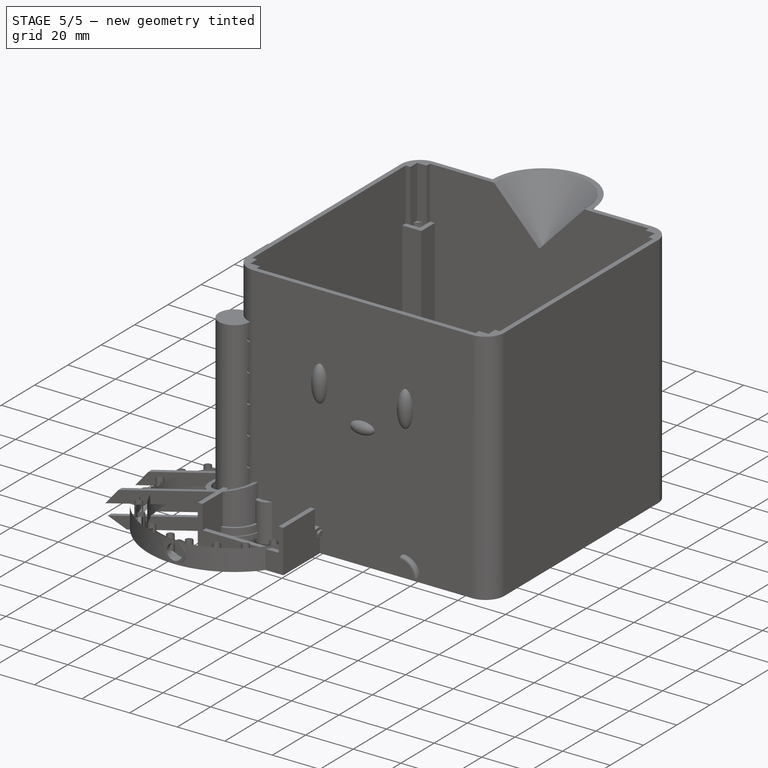
[diagram: stage 5 of 5 — iso view after this stage's code; geometry added in this stage tinted green]
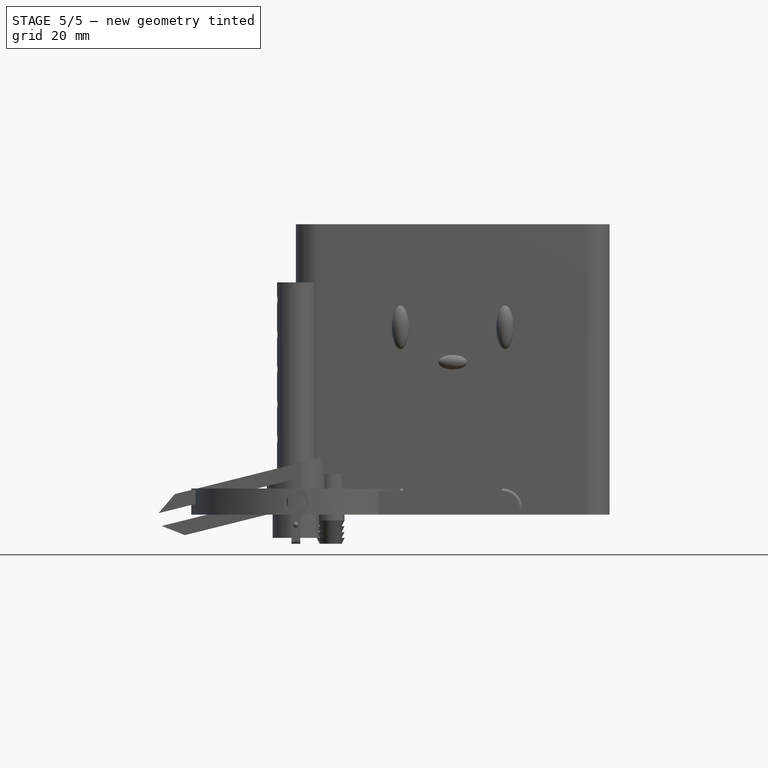
[diagram: stage 5 of 5 — front view after this stage's code; geometry added in this stage tinted green]
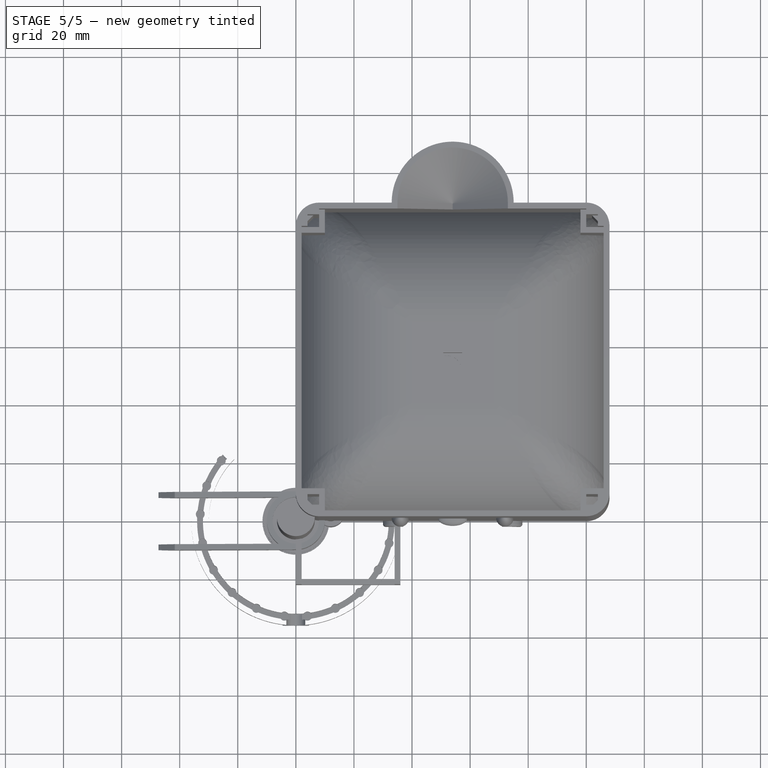
[diagram: stage 5 of 5 — top view after this stage's code; geometry added in this stage tinted green]
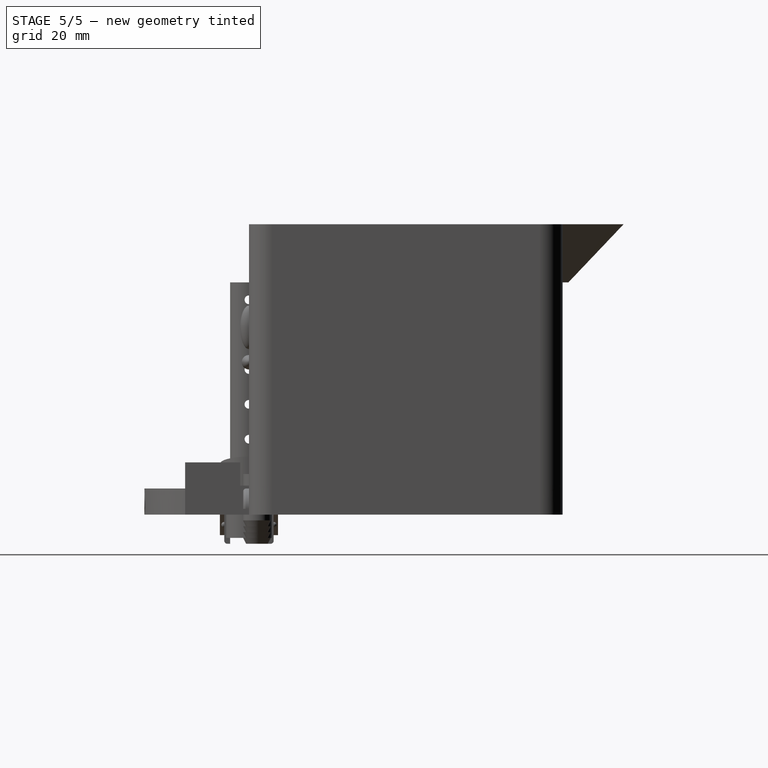
[diagram: stage 5 of 5 — right view after this stage's code; geometry added in this stage tinted green]
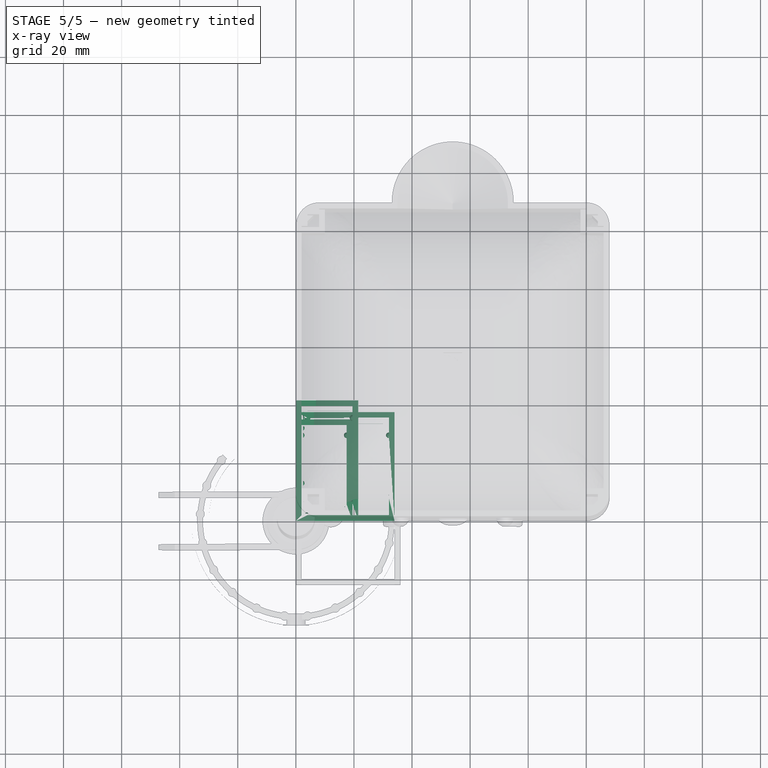
[diagram: stage 5 of 5 — x-ray composite at the top view; earlier geometry ghosted, this stage's added geometry solid]
FEATURE [Sketcher::SketchObject] Sketch049
  MapMode = 5
  sketch-geometry (4):
    g0: LineSegment StartX=0 StartY=0 StartZ=0 EndX=34 EndY=0 EndZ=0
    g1: LineSegment StartX=34 StartY=0 StartZ=0 EndX=34 EndY=37.5 EndZ=0
    g2: LineSegment StartX=34 StartY=37.5 StartZ=0 EndX=0 EndY=37.5 EndZ=0
    g3: LineSegment StartX=0 StartY=37.5 StartZ=0 EndX=0 EndY=0 EndZ=0
  constraints (11):
    c: Coincident(g0,g1)
    c: Coincident(g1,g2)
    c: Coincident(g2,g3)
    c: Coincident(g3,g0)
    c: Horizontal(g0)
    c: Horizontal(g2)
    c: Vertical(g1)
    c: Vertical(g3)
    c: Coincident(g0,g-1)
    c: DistanceY(g3,g3) = 37.5
    c: DistanceX(g0,g0) = 34
FEATURE [PartDesign::Pad] Pad032
  Length = 6
  Length2 = 100
  Profile = -> Sketch049
  Type = 0
FEATURE [Sketcher::SketchObject] Sketch050
  MapMode = 5
  Placement = pos=(0,0,6) rot=(0,0,1;0rad)
  Support = -> [Pad032]
  sketch-geometry (4):
    g0: LineSegment StartX=2 StartY=35.5 StartZ=0 EndX=32 EndY=35.5 EndZ=0
    g1: LineSegment StartX=32 StartY=35.5 StartZ=0 EndX=32 EndY=2 EndZ=0
    g2: LineSegment StartX=32 StartY=2 StartZ=0 EndX=2 EndY=2 EndZ=0
    g3: LineSegment StartX=2 StartY=2 StartZ=0 EndX=2 EndY=35.5 EndZ=0
  constraints (12):
    c: Coincident(g0,g1)
    c: Coincident(g1,g2)
    c: Coincident(g2,g3)
    c: Coincident(g3,g0)
    c: Horizontal(g0)
    c: Horizontal(g2)
    c: Vertical(g1)
    c: Vertical(g3)
    c: DistanceX(g-2,g2) = 2
    c: DistanceY(g-1,g2) = 2
    c: DistanceX(g0,g0) = 30
    c: DistanceY(g1,g1) = 33.5
FEATURE [PartDesign::Pocket] Pocket014
  BaseFeature = -> Pad032
  Length = 4
  Length2 = 100
  Profile = -> Sketch050
  Type = 0
FEATURE [Sketcher::SketchObject] Sketch051
  ExternalGeometry = -> [Pocket014]
  MapMode = 5
  Placement = pos=(0,0,2) rot=(0,0,1;0rad)
  Support = -> [Pocket014]
  sketch-geometry (4):
    g0: LineSegment StartX=4 StartY=33.5 StartZ=0 EndX=30 EndY=33.5 EndZ=0
    g1: LineSegment StartX=30 StartY=33.5 StartZ=0 EndX=30 EndY=4 EndZ=0
    g2: LineSegment StartX=30 StartY=4 StartZ=0 EndX=4 EndY=4 EndZ=0
    g3: LineSegment StartX=4 StartY=4 StartZ=0 EndX=4 EndY=33.5 EndZ=0
  constraints (12):
    c: Coincident(g0,g1)
    c: Coincident(g1,g2)
    c: Coincident(g2,g3)
    c: Coincident(g3,g0)
    c: Horizontal(g0)
    c: Horizontal(g2)
    c: Vertical(g1)
    c: Vertical(g3)
    c: Distance(g2,g-3) = 2
    c: Distance(g2,g-4) = 2
    c: DistanceX(g0,g0) = 26
    c: DistanceY(g1,g1) = 29.5
FEATURE [PartDesign::Pocket] Pocket015
  BaseFeature = -> Pocket014
  Length = 5
  Length2 = 100
  Profile = -> Sketch051
  Type = 1
FEATURE [Sketcher::SketchObject] Sketch052
  ExternalGeometry = -> [Pocket015]
  MapMode = 5
  Placement = pos=(0,0,6) rot=(0,0,1;0rad)
  Support = -> [Pocket015]
  sketch-geometry (4):
    g0: LineSegment StartX=0 StartY=4.75 StartZ=0 EndX=4 EndY=4.75 EndZ=0
    g1: LineSegment StartX=4 StartY=4.75 StartZ=0 EndX=4 EndY=32.75 EndZ=0
    g2: LineSegment StartX=4 StartY=32.75 StartZ=0 EndX=0 EndY=32.75 EndZ=0
    g3: LineSegment StartX=0 StartY=32.75 StartZ=0 EndX=0 EndY=4.75 EndZ=0
  constraints (12):
    c: Coincident(g0,g1)
    c: Coincident(g1,g2)
    c: Coincident(g2,g3)
    c: Coincident(g3,g0)
    c: Horizontal(g0)
    c: Horizontal(g2)
    c: Vertical(g1)
    c: Vertical(g3)
    c: PointOnObject(g0,g-2)
    c: PointOnObject(g1,g-3)
    c: DistanceY(g-1,g0) = 4.75
    c: DistanceY(g1,g1) = 28
FEATURE [PartDesign::Pocket] Pocket016
  BaseFeature = -> Pocket015
  Length = 5
  Length2 = 100
  Profile = -> Sketch052
  Type = 1
FEATURE [Sketcher::SketchObject] Sketch053
  ExternalGeometry = -> [Pocket016]
  MapMode = 5
  Placement = pos=(32,0,0) rot=(0.57735,-0.57735,-0.57735;2.0944rad)
  Support = -> [Pocket016]
  sketch-geometry (5):
    g0: ArcOfCircle CenterX=-29.5 CenterY=5 CenterZ=0 NormalX=0 NormalY=0 NormalZ=1 AngleXU=0 Radius=1 StartAngle=0 EndAngle=3.14159
    g1: LineSegment StartX=-28.5 StartY=5 StartZ=0 EndX=-30.5 EndY=5 EndZ=0
    g2: ArcOfCircle CenterX=-8 CenterY=5 CenterZ=0 NormalX=0 NormalY=0 NormalZ=1 AngleXU=0 Radius=1 StartAngle=0 EndAngle=3.14159
    g3: LineSegment StartX=-9 StartY=5 StartZ=0 EndX=-7 EndY=5 EndZ=0
    g4: LineSegment [constr] StartX=-29.2018 StartY=5 StartZ=0 EndX=-7.91789 EndY=5 EndZ=0
  constraints (16):
    c: Coincident(g1,g0) = 1.5708
    c: Coincident(g1,g0)
    c: Horizontal(g1)
    c: Angle(g0) = 3.14159
    c: Coincident(g3,g2)
    c: Coincident(g3,g2)
    c: Horizontal(g3)
    c: Angle(g2) = 3.14159
    c: Equal(g0,g2)
    c: Radius(g0) = 1
    c: Tangent(g0,g-5)
    c: Tangent(g2,g-5)
    c: Distance(g0,g-4) = 5
    c: Distance(g2,g-3) = 5
    c: PointOnObject(g4,g1)
    c: PointOnObject(g4,g3)
FEATURE [PartDesign::Revolution] Revolution
  Angle = 180
  Axis = (0,-21.2839,0)
  Base = (32,29.2018,5)
  BaseFeature = -> Pocket016
  Profile = -> Sketch053
  ReferenceAxis = -> Sketch053 [Axis0]
FEATURE [Sketcher::SketchObject] Sketch054
  ExternalGeometry = -> [Revolution]
  MapMode = 5
  Placement = pos=(0,2,0) rot=(0,0.707107,0.707107;3.14159rad)
  Support = -> [Revolution]
  sketch-geometry (3):
    g0: ArcOfCircle CenterX=-4 CenterY=5 CenterZ=0 NormalX=0 NormalY=0 NormalZ=1 AngleXU=0 Radius=1 StartAngle=0 EndAngle=3.14159
    g1: LineSegment StartX=-5 StartY=5 StartZ=0 EndX=-3 EndY=5 EndZ=0
    g2: LineSegment [constr] StartX=-5 StartY=5 StartZ=0 EndX=-6.76742 EndY=5 EndZ=0
  constraints (9):
    c: Angle(g0) = 3.14159
    c: Distance(g0,g-3) = 1
    c: Coincident(g1,g0)
    c: Coincident(g1,g0)
    c: Horizontal(g1)
    c: Tangent(g0,g-4)
    c: Radius(g0) = 1
    c: Coincident(g2,g0)
    c: Horizontal(g2)
FEATURE [PartDesign::Revolution] Revolution001
  Angle = 180
  Axis = (1.76742,0,0)
  Base = (5,2,5)
  BaseFeature = -> Revolution
  Profile = -> Sketch054
  ReferenceAxis = -> Sketch054 [Axis0]
  Reversed = true
FEATURE [Sketcher::SketchObject] Sketch055
  ExternalGeometry = -> [Revolution001]
  MapMode = 5
  Placement = pos=(0,35.5,0) rot=(1,0,0;1.5708rad)
  Support = -> [Revolution001]
  sketch-geometry (3):
    g0: ArcOfCircle CenterX=4 CenterY=5 CenterZ=0 NormalX=0 NormalY=0 NormalZ=1 AngleXU=0 Radius=1 StartAngle=0 EndAngle=3.14159
    g1: LineSegment StartX=3 StartY=5 StartZ=0 EndX=5 EndY=5 EndZ=0
    g2: LineSegment [constr] StartX=5 StartY=5 StartZ=0 EndX=6.30212 EndY=5 EndZ=0
  constraints (9):
    c: Coincident(g1,g0)
    c: Coincident(g1,g0)
    c: Horizontal(g1)
    c: Angle(g0) = 3.14159
    c: Radius(g0) = 1
    c: Tangent(g0,g-4)
    c: Distance(g0,g-3) = 1
    c: Coincident(g2,g0)
    c: Horizontal(g2)
FEATURE [PartDesign::Revolution] Revolution002
  Angle = 180
  Axis = (1.30212,0,0)
  Base = (5,35.5,5)
  BaseFeature = -> Revolution001
  Profile = -> Sketch055
  ReferenceAxis = -> Sketch055 [Axis0]
FEATURE [PartDesign::Body] Body009  label="pcb"
  Group = -> [Sketch049,Pad032,Sketch050,Pocket014,Sketch051,Pocket015,Sketch052,Pocket016,Sketch053,Revolution,Sketch054,Revolution001,Sketch055,Revolution002]
  Placement = pos=(5,40,105.27) rot=(0,0,-1;1.5708rad)
  Tip = -> Revolution002
FEATURE [Sketcher::SketchObject] Sketch057
  MapMode = 5
  sketch-geometry (4):
    g0: LineSegment StartX=0 StartY=0 StartZ=0 EndX=21.5 EndY=0 EndZ=0
    g1: LineSegment StartX=21.5 StartY=0 StartZ=0 EndX=21.5 EndY=41.5 EndZ=0
    g2: LineSegment StartX=21.5 StartY=41.5 StartZ=0 EndX=0 EndY=41.5 EndZ=0
    g3: LineSegment StartX=0 StartY=41.5 StartZ=0 EndX=0 EndY=0 EndZ=0
  constraints (11):
    c: Coincident(g0,g1)
    c: Coincident(g1,g2)
    c: Coincident(g2,g3)
    c: Coincident(g3,g0)
    c: Horizontal(g0)
    c: Horizontal(g2)
    c: Vertical(g1)
    c: Vertical(g3)
    c: Coincident(g0,g-1)
    c: DistanceY(g3,g3) = 41.5
    c: DistanceX(g0,g0) = 21.5
FEATURE [PartDesign::Pad] Pad033
  Length = 6
  Length2 = 100
  Profile = -> Sketch057
  Type = 0
FEATURE [Sketcher::SketchObject] Sketch056
  ExternalGeometry = -> [Pad033]
  MapMode = 5
  Placement = pos=(0,0,6) rot=(0,0,1;0rad)
  Support = -> [Pad033]
  sketch-geometry (4):
    g0: LineSegment StartX=2 StartY=39.5 StartZ=0 EndX=19.5 EndY=39.5 EndZ=0
    g1: LineSegment StartX=19.5 StartY=39.5 StartZ=0 EndX=19.5 EndY=2 EndZ=0
    g2: LineSegment StartX=19.5 StartY=2 StartZ=0 EndX=2 EndY=2 EndZ=0
    g3: LineSegment StartX=2 StartY=2 StartZ=0 EndX=2 EndY=39.5 EndZ=0
  constraints (12):
    c: Coincident(g0,g1)
    c: Coincident(g1,g2)
    c: Coincident(g2,g3)
    c: Coincident(g3,g0)
    c: Horizontal(g0)
    c: Horizontal(g2)
    c: Vertical(g1)
    c: Vertical(g3)
    c: DistanceX(g-2,g2) = 2
    c: DistanceY(g-1,g2) = 2
    c: Distance(g0,g-4) = 2
    c: Distance(g0,g-3) = 2
FEATURE [PartDesign::Pocket] Pocket018
  BaseFeature = -> Pad033
  Length = 4
  Length2 = 100
  Profile = -> Sketch056
  Type = 0
FEATURE [Sketcher::SketchObject] Sketch059
  ExternalGeometry = -> [Pocket018]
  MapMode = 5
  Placement = pos=(0,0,2) rot=(0,0,1;0rad)
  Support = -> [Pocket018]
  sketch-geometry (4):
    g0: LineSegment StartX=4 StartY=37.5 StartZ=0 EndX=17.5 EndY=37.5 EndZ=0
    g1: LineSegment StartX=17.5 StartY=37.5 StartZ=0 EndX=17.5 EndY=4 EndZ=0
    g2: LineSegment StartX=17.5 StartY=4 StartZ=0 EndX=4 EndY=4 EndZ=0
    g3: LineSegment StartX=4 StartY=4 StartZ=0 EndX=4 EndY=37.5 EndZ=0
  constraints (12):
    c: Coincident(g0,g1)
    c: Coincident(g1,g2)
    c: Coincident(g2,g3)
    c: Coincident(g3,g0)
    c: Horizontal(g0)
    c: Horizontal(g2)
    c: Vertical(g1)
    c: Vertical(g3)
    c: Distance(g2,g-3) = 2
    c: Distance(g2,g-4) = 2
    c: Distance(g0,g-6) = 2
    c: Distance(g0,g-5) = 2
FEATURE [PartDesign::Pocket] Pocket019
  BaseFeature = -> Pocket018
  Length = 5
  Length2 = 100
  Profile = -> Sketch059
  Type = 1
FEATURE [Sketcher::SketchObject] Sketch058
  ExternalGeometry = -> [Pocket019]
  MapMode = 5
  Placement = pos=(0,0,6) rot=(0,0,1;0rad)
  Support = -> [Pocket019]
  sketch-geometry (4):
    g0: LineSegment StartX=5 StartY=0 StartZ=0 EndX=16.5 EndY=0 EndZ=0
    g1: LineSegment StartX=16.5 StartY=0 StartZ=0 EndX=16.5 EndY=4 EndZ=0
    g2: LineSegment StartX=16.5 StartY=4 StartZ=0 EndX=5 EndY=4 EndZ=0
    g3: LineSegment StartX=5 StartY=4 StartZ=0 EndX=5 EndY=0 EndZ=0
  constraints (12):
    c: Coincident(g0,g1)
    c: Coincident(g1,g2)
    c: Coincident(g2,g3)
    c: Coincident(g3,g0)
    c: Horizontal(g0)
    c: Horizontal(g2)
    c: Vertical(g1)
    c: Vertical(g3)
    c: PointOnObject(g0,g-1)
    c: PointOnObject(g1,g-4)
    c: Distance(g0,g-6) = 5
    c: DistanceX(g-2,g0) = 5
FEATURE [PartDesign::Pocket] Pocket017
  BaseFeature = -> Pocket019
  Length = 5
  Length2 = 100
  Profile = -> Sketch058
  Type = 1
FEATURE [Sketcher::SketchObject] Sketch060
  ExternalGeometry = -> [Pocket017]
  MapMode = 5
  Placement = pos=(2,0,0) rot=(0.57735,0.57735,0.57735;2.0944rad)
  Support = -> [Pocket017]
  sketch-geometry (5):
    g0: ArcOfCircle CenterX=4 CenterY=5 CenterZ=0 NormalX=0 NormalY=0 NormalZ=1 AngleXU=0 Radius=1 StartAngle=0 EndAngle=3.14159
    g1: ArcOfCircle CenterX=37.5 CenterY=5 CenterZ=0 NormalX=0 NormalY=0 NormalZ=1 AngleXU=0 Radius=1 StartAngle=0 EndAngle=3.14159
    g2: LineSegment StartX=3 StartY=5 StartZ=0 EndX=5 EndY=5 EndZ=0
    g3: LineSegment StartX=36.5 StartY=5 StartZ=0 EndX=38.5 EndY=5 EndZ=0
    g4: LineSegment [constr] StartX=5 StartY=5 StartZ=0 EndX=6.07306 EndY=5 EndZ=0
  constraints (16):
    c: Equal(g1,g0)
    c: Radius(g0) = 1
    c: Angle(g0) = 3.14159
    c: Coincident(g2,g0)
    c: Coincident(g2,g0)
    c: Horizontal(g2)
    c: Coincident(g3,g1)
    c: Coincident(g3,g1)
    c: Horizontal(g3)
    c: Tangent(g0,g-5)
    c: Tangent(g1,g-5)
    c: Angle(g1) = 3.14159
    c: Distance(g1,g-4) = 1
    c: Distance(g0,g-3) = 1
    c: Coincident(g4,g0)
    c: Horizontal(g4)
FEATURE [PartDesign::Revolution] Revolution003
  Angle = 180
  Axis = (0,1.07306,0)
  Base = (2,5,5)
  BaseFeature = -> Pocket017
  Profile = -> Sketch060
  ReferenceAxis = -> Sketch060 [Axis0]
FEATURE [Sketcher::SketchObject] Sketch061
  ExternalGeometry = -> [Revolution003]
  MapMode = 5
  Placement = pos=(19.5,0,0) rot=(0.57735,-0.57735,-0.57735;2.0944rad)
  Support = -> [Revolution003]
  sketch-geometry (5):
    g0: ArcOfCircle CenterX=-37.5 CenterY=5 CenterZ=0 NormalX=0 NormalY=0 NormalZ=1 AngleXU=0 Radius=1 StartAngle=0 EndAngle=3.14159
    g1: ArcOfCircle CenterX=-4 CenterY=5 CenterZ=0 NormalX=0 NormalY=0 NormalZ=1 AngleXU=0 Radius=1 StartAngle=0 EndAngle=3.14159
    g2: LineSegment StartX=-38.5 StartY=5 StartZ=0 EndX=-36.5 EndY=5 EndZ=0
    g3: LineSegment StartX=-5 StartY=5 StartZ=0 EndX=-3 EndY=5 EndZ=0
    g4: LineSegment [constr] StartX=-36.5 StartY=5 StartZ=0 EndX=-35.6795 EndY=5 EndZ=0
  constraints (16):
    c: Equal(g1,g0)
    c: Angle(g1) = 3.14159
    c: Angle(g0) = 3.14159
    c: Radius(g0) = 1
    c: Coincident(g2,g0)
    c: Coincident(g2,g0)
    c: Horizontal(g2)
    c: Coincident(g3,g1)
    c: Coincident(g3,g1)
    c: Horizontal(g3)
    c: Tangent(g0,g-4)
    c: Tangent(g1,g-4)
    c: Distance(g1,g-5) = 1
    c: Distance(g0,g-3) = 1
    c: Coincident(g4,g0)
    c: Horizontal(g4)
FEATURE [PartDesign::Revolution] Revolution004
  Angle = 180
  Axis = (0,-0.820534,0)
  Base = (19.5,36.5,5)
  BaseFeature = -> Revolution003
  Profile = -> Sketch061
  ReferenceAxis = -> Sketch061 [Axis0]
FEATURE [Sketcher::SketchObject] Sketch067
  ExternalGeometry = -> [Pocket022]
  MapMode = 5
  Placement = pos=(2,0,0) rot=(0.57735,0.57735,0.57735;2.0944rad)
  Support = -> [Pocket022]
  sketch-geometry (5):
    g0: ArcOfCircle CenterX=13 CenterY=5 CenterZ=0 NormalX=0 NormalY=0 NormalZ=1 AngleXU=0 Radius=1 StartAngle=0 EndAngle=3.14159
    g1: ArcOfCircle CenterX=32 CenterY=5 CenterZ=0 NormalX=0 NormalY=0 NormalZ=1 AngleXU=0 Radius=1 StartAngle=0 EndAngle=3.14159
    g2: LineSegment StartX=12 StartY=5 StartZ=0 EndX=14 EndY=5 EndZ=0
    g3: LineSegment StartX=31 StartY=5 StartZ=0 EndX=33 EndY=5 EndZ=0
    g4: LineSegment [constr] StartX=14 StartY=5 StartZ=0 EndX=6.07306 EndY=5 EndZ=0
  constraints (16):
    c: Equal(g1,g0)
    c: Radius(g0) = 1
    c: Angle(g0) = 3.14159
    c: Coincident(g2,g0)
    c: Coincident(g2,g0)
    c: Horizontal(g2)
    c: Coincident(g3,g1)
    c: Coincident(g3,g1)
    c: Horizontal(g3)
    c: Tangent(g0,g-5)
    c: Tangent(g1,g-5)
    c: Angle(g1) = 3.14159
    c: Distance(g0,g-3) = 10
    c: Coincident(g4,g0)
    c: Horizontal(g4)
    c: Distance(g1,g-4) = 5
FEATURE [PartDesign::Revolution] Revolution005
  Angle = 180
  Axis = (0,-7.92694,0)
  Base = (2,14,5)
  BaseFeature = -> Pocket022
  Profile = -> Sketch067
  ReferenceAxis = -> Sketch067 [Axis0]
  Reversed = true
FEATURE [Sketcher::SketchObject] Sketch068
  ExternalGeometry = -> [Revolution005]
  MapMode = 5
  Placement = pos=(20.5,0,0) rot=(0.57735,-0.57735,-0.57735;2.0944rad)
  Support = -> [Revolution005]
  sketch-geometry (5):
    g0: ArcOfCircle CenterX=-32 CenterY=5 CenterZ=0 NormalX=0 NormalY=0 NormalZ=1 AngleXU=0 Radius=1 StartAngle=0 EndAngle=3.14159
    g1: ArcOfCircle CenterX=-13 CenterY=5 CenterZ=0 NormalX=0 NormalY=0 NormalZ=1 AngleXU=0 Radius=1 StartAngle=0 EndAngle=3.14159
    g2: LineSegment StartX=-33 StartY=5 StartZ=0 EndX=-31 EndY=5 EndZ=0
    g3: LineSegment StartX=-14 StartY=5 StartZ=0 EndX=-12 EndY=5 EndZ=0
    g4: LineSegment [constr] StartX=-31 StartY=5 StartZ=0 EndX=-28.2247 EndY=5 EndZ=0
  constraints (17):
    c: Equal(g1,g0)
    c: Radius(g0) = 1
    c: Angle(g0) = 3.14159
    c: Angle(g1) = 3.14159
    c: Coincident(g2,g0)
    c: Coincident(g2,g0)
    c: Horizontal(g2)
    c: Tangent(g0,g-4)
    c: Coincident(g3,g1)
    c: PointOnObject(g3,g1)
    c: Horizontal(g3)
    c: Coincident(g3,g1)
    c: Tangent(g1,g-4)
    c: Distance(g1,g-5) = 10
    c: Distance(g0,g-3) = 5
    c: Coincident(g4,g0)
    c: Horizontal(g4)
FEATURE [PartDesign::Revolution] Revolution006
  Angle = 180
  Axis = (0,-2.7753,0)
  Base = (20.5,31,5)
  BaseFeature = -> Revolution005
  Profile = -> Sketch068
  ReferenceAxis = -> Sketch068 [Axis0]
FEATURE [Sketcher::SketchObject] Sketch070
  MapMode = 5
  sketch-geometry (4):
    g0: LineSegment StartX=0 StartY=0 StartZ=0 EndX=19.5 EndY=0 EndZ=0
    g1: LineSegment StartX=19.5 StartY=0 StartZ=0 EndX=19.5 EndY=35 EndZ=0
    g2: LineSegment StartX=19.5 StartY=35 StartZ=0 EndX=0 EndY=35 EndZ=0
    g3: LineSegment StartX=0 StartY=35 StartZ=0 EndX=0 EndY=0 EndZ=0
  constraints (11):
    c: Coincident(g0,g1)
    c: Coincident(g1,g2)
    c: Coincident(g2,g3)
    c: Coincident(g3,g0)
    c: Horizontal(g0)
    c: Horizontal(g2)
    c: Vertical(g1)
    c: Vertical(g3)
    c: Coincident(g0,g-1)
    c: DistanceY(g3,g3) = 35
    c: DistanceX(g0,g0) = 19.5
FEATURE [PartDesign::Pad] Pad035
  Length = 6
  Length2 = 100
  Profile = -> Sketch070
  Type = 0
FEATURE [Sketcher::SketchObject] Sketch074
  ExternalGeometry = -> [Pad035]
  MapMode = 5
  Placement = pos=(0,0,6) rot=(0,0,1;0rad)
  Support = -> [Pad035]
  sketch-geometry (4):
    g0: LineSegment StartX=2 StartY=33 StartZ=0 EndX=17.5 EndY=33 EndZ=0
    g1: LineSegment StartX=17.5 StartY=33 StartZ=0 EndX=17.5 EndY=2 EndZ=0
    g2: LineSegment StartX=17.5 StartY=2 StartZ=0 EndX=2 EndY=2 EndZ=0
    g3: LineSegment StartX=2 StartY=2 StartZ=0 EndX=2 EndY=33 EndZ=0
  constraints (12):
    c: Coincident(g0,g1)
    c: Coincident(g1,g2)
    c: Coincident(g2,g3)
    c: Coincident(g3,g0)
    c: Horizontal(g0)
    c: Horizontal(g2)
    c: Vertical(g1)
    c: Vertical(g3)
    c: DistanceX(g-2,g2) = 2
    c: DistanceY(g-1,g2) = 2
    c: Distance(g0,g-4) = 2
    c: Distance(g0,g-3) = 2
FEATURE [PartDesign::Pocket] Pocket025
  BaseFeature = -> Pad035
  Length = 4
  Length2 = 100
  Profile = -> Sketch074
  Type = 0
FEATURE [Sketcher::SketchObject] Sketch071
  ExternalGeometry = -> [Pocket025]
  MapMode = 5
  Placement = pos=(0,0,2) rot=(0,0,1;0rad)
  Support = -> [Pocket025]
  sketch-geometry (4):
    g0: LineSegment StartX=4 StartY=31 StartZ=0 EndX=15.5 EndY=31 EndZ=0
    g1: LineSegment StartX=15.5 StartY=31 StartZ=0 EndX=15.5 EndY=4 EndZ=0
    g2: LineSegment StartX=15.5 StartY=4 StartZ=0 EndX=4 EndY=4 EndZ=0
    g3: LineSegment StartX=4 StartY=4 StartZ=0 EndX=4 EndY=31 EndZ=0
  constraints (12):
    c: Coincident(g0,g1)
    c: Coincident(g1,g2)
    c: Coincident(g2,g3)
    c: Coincident(g3,g0)
    c: Horizontal(g0)
    c: Horizontal(g2)
    c: Vertical(g1)
    c: Vertical(g3)
    c: Distance(g2,g-3) = 2
    c: Distance(g2,g-4) = 2
    c: Distance(g0,g-6) = 2
    c: Distance(g0,g-5) = 2
FEATURE [PartDesign::Pocket] Pocket023
  BaseFeature = -> Pocket025
  Length = 5
  Length2 = 100
  Profile = -> Sketch071
  Type = 1
FEATURE [Sketcher::SketchObject] Sketch069
  ExternalGeometry = -> [Pocket023]
  MapMode = 5
  Placement = pos=(0,0,6) rot=(0,0,1;0rad)
  Support = -> [Pocket023]
  sketch-geometry (4):
    g0: LineSegment StartX=4 StartY=0 StartZ=0 EndX=15.5 EndY=0 EndZ=0
    g1: LineSegment StartX=15.5 StartY=0 StartZ=0 EndX=15.5 EndY=4 EndZ=0
    g2: LineSegment StartX=15.5 StartY=4 StartZ=0 EndX=4 EndY=4 EndZ=0
    g3: LineSegment StartX=4 StartY=4 StartZ=0 EndX=4 EndY=0 EndZ=0
  constraints (12):
    c: Coincident(g0,g1)
    c: Coincident(g1,g2)
    c: Coincident(g2,g3)
    c: Coincident(g3,g0)
    c: Horizontal(g0)
    c: Horizontal(g2)
    c: Vertical(g1)
    c: Vertical(g3)
    c: PointOnObject(g0,g-1)
    c: PointOnObject(g1,g-4)
    c: Coincident(g1,g-4)
    c: Coincident(g2,g-4)
FEATURE [PartDesign::Pocket] Pocket024
  BaseFeature = -> Pocket023
  Length = 5
  Length2 = 100
  Profile = -> Sketch069
  Type = 1
FEATURE [Sketcher::SketchObject] Sketch075
  ExternalGeometry = -> [Pocket024]
  MapMode = 5
  Placement = pos=(2,0,0) rot=(0.57735,0.57735,0.57735;2.0944rad)
  Support = -> [Pocket024]
  sketch-geometry (5):
    g0: ArcOfCircle CenterX=5.5 CenterY=5 CenterZ=0 NormalX=0 NormalY=0 NormalZ=1 AngleXU=0 Radius=1 StartAngle=0 EndAngle=3.14159
    g1: ArcOfCircle CenterX=29.5 CenterY=5 CenterZ=0 NormalX=0 NormalY=0 NormalZ=1 AngleXU=0 Radius=1 StartAngle=0 EndAngle=3.14159
    g2: LineSegment StartX=4.5 StartY=5 StartZ=0 EndX=6.5 EndY=5 EndZ=0
    g3: LineSegment StartX=28.5 StartY=5 StartZ=0 EndX=30.5 EndY=5 EndZ=0
    g4: LineSegment [constr] StartX=6.5 StartY=5 StartZ=0 EndX=8.35477 EndY=5 EndZ=0
  constraints (16):
    c: Equal(g0,g1)
    c: Radius(g0) = 1
    c: Coincident(g2,g0)
    c: Coincident(g2,g0)
    c: Horizontal(g2)
    c: Coincident(g3,g1)
    c: Coincident(g3,g1)
    c: Horizontal(g3)
    c: Tangent(g0,g-3)
    c: Angle(g0) = 3.14159
    c: Angle(g1) = 3.14159
    c: Tangent(g1,g-3)
    c: Distance(g0,g-5) = 2.5
    c: Distance(g1,g-4) = 2.5
    c: Coincident(g4,g0)
    c: Horizontal(g4)
FEATURE [PartDesign::Revolution] Revolution007
  Angle = 180
  Axis = (0,1.85477,0)
  Base = (2,6.5,5)
  BaseFeature = -> Pocket024
  Profile = -> Sketch075
  ReferenceAxis = -> Sketch075 [Axis0]
FEATURE [Sketcher::SketchObject] Sketch076
  ExternalGeometry = -> [Revolution007]
  MapMode = 5
  Placement = pos=(17.5,0,0) rot=(0.57735,-0.57735,-0.57735;2.0944rad)
  Support = -> [Revolution007]
  sketch-geometry (5):
    g0: ArcOfCircle CenterX=-29.5 CenterY=5 CenterZ=0 NormalX=0 NormalY=0 NormalZ=1 AngleXU=0 Radius=1 StartAngle=0 EndAngle=3.14159
    g1: ArcOfCircle CenterX=-5.5 CenterY=5 CenterZ=0 NormalX=0 NormalY=0 NormalZ=1 AngleXU=0 Radius=1 StartAngle=0 EndAngle=3.14159
    g2: LineSegment StartX=-30.5 StartY=5 StartZ=0 EndX=-28.5 EndY=5 EndZ=0
    g3: LineSegment StartX=-6.5 StartY=5 StartZ=0 EndX=-4.5 EndY=5 EndZ=0
    g4: LineSegment [constr] StartX=-6.5 StartY=5 StartZ=0 EndX=-8.19586 EndY=5 EndZ=0
  constraints (16):
    c: Equal(g1,g0)
    c: Angle(g0) = 3.14159
    c: Angle(g1) = 3.14159
    c: Radius(g0) = 1
    c: Coincident(g2,g0)
    c: Coincident(g2,g0)
    c: Horizontal(g2)
    c: Coincident(g3,g1)
    c: Coincident(g3,g1)
    c: Horizontal(g3)
    c: Tangent(g1,g-3)
    c: Tangent(g0,g-3)
    c: Distance(g0,g-4) = 2.5
    c: Distance(g1,g-5) = 2.5
    c: Coincident(g4,g1)
    c: Horizontal(g4)
FEATURE [PartDesign::Revolution] Revolution008
  Angle = 180
  Axis = (0,1.69586,0)
  Base = (17.5,6.5,5)
  BaseFeature = -> Revolution007
  Profile = -> Sketch076
  ReferenceAxis = -> Sketch076 [Axis0]
  Reversed = true
FEATURE [PartDesign::Body] Body012  label="moist_pcb"
  Group = -> [Sketch070,Pad035,Sketch074,Pocket025,Sketch071,Pocket023,Sketch069,Pocket024,Sketch075,Revolution007,Sketch076,Revolution008]
  Tip = -> Revolution008
FEATURE [Sketcher::SketchObject] Sketch080
  MapMode = 5
  sketch-geometry (4):
    g0: LineSegment StartX=0 StartY=0 StartZ=0 EndX=21.5 EndY=0 EndZ=0
    g1: LineSegment StartX=21.5 StartY=0 StartZ=0 EndX=21.5 EndY=41.5 EndZ=0
    g2: LineSegment StartX=21.5 StartY=41.5 StartZ=0 EndX=0 EndY=41.5 EndZ=0
    g3: LineSegment StartX=0 StartY=41.5 StartZ=0 EndX=0 EndY=0 EndZ=0
  constraints (11):
    c: Coincident(g0,g1)
    c: Coincident(g1,g2)
    c: Coincident(g2,g3)
    c: Coincident(g3,g0)
    c: Horizontal(g0)
    c: Horizontal(g2)
    c: Vertical(g1)
    c: Vertical(g3)
    c: Coincident(g0,g-1)
    c: DistanceY(g3,g3) = 41.5
    c: DistanceX(g0,g0) = 21.5
FEATURE [PartDesign::Pad] Pad036
  Length = 7
  Length2 = 100
  Profile = -> Sketch080
  Type = 0
FEATURE [Sketcher::SketchObject] Sketch081
  ExternalGeometry = -> [Pad036]
  MapMode = 5
  Placement = pos=(0,0,7) rot=(0,0,1;0rad)
  Support = -> [Pad036]
  sketch-geometry (4):
    g0: LineSegment StartX=2 StartY=39.5 StartZ=0 EndX=19.5 EndY=39.5 EndZ=0
    g1: LineSegment StartX=19.5 StartY=39.5 StartZ=0 EndX=19.5 EndY=2 EndZ=0
    g2: LineSegment StartX=19.5 StartY=2 StartZ=0 EndX=2 EndY=2 EndZ=0
    g3: LineSegment StartX=2 StartY=2 StartZ=0 EndX=2 EndY=39.5 EndZ=0
  constraints (12):
    c: Coincident(g0,g1)
    c: Coincident(g1,g2)
    c: Coincident(g2,g3)
    c: Coincident(g3,g0)
    c: Horizontal(g0)
    c: Horizontal(g2)
    c: Vertical(g1)
    c: Vertical(g3)
    c: DistanceX(g-2,g2) = 2
    c: DistanceY(g-1,g2) = 2
    c: Distance(g0,g-4) = 2
    c: Distance(g0,g-3) = 2
FEATURE [PartDesign::Pocket] Pocket027
  BaseFeature = -> Pad036
  Length = 5
  Length2 = 100
  Profile = -> Sketch081
  Type = 0
FEATURE [Sketcher::SketchObject] Sketch077
  ExternalGeometry = -> [Pocket027]
  MapMode = 5
  Placement = pos=(0,0,2) rot=(0,0,1;0rad)
  Support = -> [Pocket027]
  sketch-geometry (4):
    g0: LineSegment StartX=4 StartY=37.5 StartZ=0 EndX=17.5 EndY=37.5 EndZ=0
    g1: LineSegment StartX=17.5 StartY=37.5 StartZ=0 EndX=17.5 EndY=4 EndZ=0
    g2: LineSegment StartX=17.5 StartY=4 StartZ=0 EndX=4 EndY=4 EndZ=0
    g3: LineSegment StartX=4 StartY=4 StartZ=0 EndX=4 EndY=37.5 EndZ=0
  constraints (12):
    c: Coincident(g0,g1)
    c: Coincident(g1,g2)
    c: Coincident(g2,g3)
    c: Coincident(g3,g0)
    c: Horizontal(g0)
    c: Horizontal(g2)
    c: Vertical(g1)
    c: Vertical(g3)
    c: Distance(g2,g-3) = 2
    c: Distance(g2,g-4) = 2
    c: Distance(g0,g-6) = 2
    c: Distance(g0,g-5) = 2
FEATURE [PartDesign::Pocket] Pocket028
  BaseFeature = -> Pocket027
  Length = 5
  Length2 = 100
  Profile = -> Sketch077
  Type = 1
FEATURE [Sketcher::SketchObject] Sketch078
  ExternalGeometry = -> [Pocket028]
  MapMode = 5
  Placement = pos=(0,0,7) rot=(0,0,1;0rad)
  Support = -> [Pocket028]
  sketch-geometry (4):
    g0: LineSegment StartX=4 StartY=0 StartZ=0 EndX=17.5 EndY=0 EndZ=0
    g1: LineSegment StartX=17.5 StartY=0 StartZ=0 EndX=17.5 EndY=4 EndZ=0
    g2: LineSegment StartX=17.5 StartY=4 StartZ=0 EndX=4 EndY=4 EndZ=0
    g3: LineSegment StartX=4 StartY=4 StartZ=0 EndX=4 EndY=0 EndZ=0
  constraints (12):
    c: Coincident(g0,g1)
    c: Coincident(g1,g2)
    c: Coincident(g2,g3)
    c: Coincident(g3,g0)
    c: Horizontal(g0)
    c: Horizontal(g2)
    c: Vertical(g1)
    c: Vertical(g3)
    c: PointOnObject(g0,g-1)
    c: PointOnObject(g1,g-4)
    c: Coincident(g1,g-4)
    c: Coincident(g2,g-4)
FEATURE [PartDesign::Pocket] Pocket026
  BaseFeature = -> Pocket028
  Length = 5
  Length2 = 100
  Profile = -> Sketch078
  Type = 1
FEATURE [Sketcher::SketchObject] Sketch082
  ExternalGeometry = -> [Pocket026]
  MapMode = 5
  Placement = pos=(2,0,0) rot=(0.57735,0.57735,0.57735;2.0944rad)
  Support = -> [Pocket026]
  sketch-geometry (5):
    g0: ArcOfCircle CenterX=6 CenterY=6 CenterZ=0 NormalX=0 NormalY=0 NormalZ=1 AngleXU=0 Radius=1 StartAngle=0 EndAngle=3.14159
    g1: ArcOfCircle CenterX=35.5 CenterY=6 CenterZ=0 NormalX=0 NormalY=0 NormalZ=1 AngleXU=0 Radius=1 StartAngle=0 EndAngle=3.14159
    g2: LineSegment StartX=5 StartY=6 StartZ=0 EndX=7 EndY=6 EndZ=0
    g3: LineSegment StartX=34.5 StartY=6 StartZ=0 EndX=36.5 EndY=6 EndZ=0
    g4: LineSegment [constr] StartX=34.5 StartY=6 StartZ=0 EndX=32.766 EndY=6 EndZ=0
  constraints (16):
    c: Equal(g0,g1)
    c: Radius(g0) = 1
    c: Angle(g0) = 3.14159
    c: Angle(g1) = 3.14159
    c: Coincident(g2,g0)
    c: Coincident(g2,g0)
    c: Horizontal(g2)
    c: Coincident(g3,g1)
    c: Coincident(g3,g1)
    c: Horizontal(g3)
    c: Tangent(g0,g-5)
    c: Tangent(g1,g-5)
    c: Distance(g0,g-4) = 3
    c: Distance(g1,g-3) = 3
    c: Coincident(g4,g1)
    c: Horizontal(g4)
FEATURE [PartDesign::Revolution] Revolution010
  Angle = 180
  Axis = (0,-1.73397,0)
  Base = (2,34.5,6)
  BaseFeature = -> Pocket026
  Profile = -> Sketch082
  ReferenceAxis = -> Sketch082 [Axis0]
  Reversed = true
FEATURE [Sketcher::SketchObject] Sketch083
  ExternalGeometry = -> [Revolution010]
  MapMode = 5
  Placement = pos=(19.5,0,0) rot=(0.57735,-0.57735,-0.57735;2.0944rad)
  Support = -> [Revolution010]
  sketch-geometry (5):
    g0: ArcOfCircle CenterX=-35.5 CenterY=6 CenterZ=0 NormalX=0 NormalY=0 NormalZ=1 AngleXU=0 Radius=1 StartAngle=0 EndAngle=3.14159
    g1: ArcOfCircle CenterX=-6 CenterY=6 CenterZ=0 NormalX=0 NormalY=0 NormalZ=1 AngleXU=0 Radius=1 StartAngle=0 EndAngle=3.14159
    g2: LineSegment StartX=-36.5 StartY=6 StartZ=0 EndX=-34.5 EndY=6 EndZ=0
    g3: LineSegment StartX=-7 StartY=6 StartZ=0 EndX=-5 EndY=6 EndZ=0
    g4: LineSegment [constr] StartX=-7 StartY=6 StartZ=0 EndX=-8.4839 EndY=6 EndZ=0
  constraints (16):
    c: Equal(g0,g1)
    c: Radius(g0) = 1
    c: Angle(g0) = 3.14159
    c: Angle(g1) = 3.14159
    c: Tangent(g0,g-4)
    c: Tangent(g1,g-4)
    c: Coincident(g2,g0)
    c: Coincident(g2,g0)
    c: Coincident(g3,g1)
    c: Coincident(g3,g1)
    c: Horizontal(g3)
    c: Horizontal(g2)
    c: Distance(g0,g-3) = 3
    c: Distance(g1,g-5) = 3
    c: Coincident(g4,g1)
    c: Horizontal(g4)
FEATURE [PartDesign::Revolution] Revolution011
  Angle = 180
  Axis = (0,1.4839,0)
  Base = (19.5,7,6)
  BaseFeature = -> Revolution010
  Profile = -> Sketch083
  ReferenceAxis = -> Sketch083 [Axis0]
  Reversed = true
FEATURE [PartDesign::Body] Body013  label="bluetooth"
  Group = -> [Sketch080,Pad036,Sketch081,Pocket027,Sketch077,Pocket028,Sketch078,Pocket026,Sketch082,Revolution010,Sketch083,Revolution011]
  Tip = -> Revolution011
FEATURE [Sketcher::SketchObject] Sketch084
  ExternalGeometry = -> [Revolution006]
  MapMode = 5
  Placement = pos=(0,0,2) rot=(0,0,1;0rad)
  Support = -> [Revolution006]
  sketch-geometry (4):
    g0: LineSegment StartX=18.5 StartY=36 StartZ=0 EndX=4 EndY=36 EndZ=0
    g1: LineSegment StartX=4 StartY=36 StartZ=0 EndX=4 EndY=38 EndZ=0
    g2: LineSegment StartX=4 StartY=38 StartZ=0 EndX=18.5 EndY=38 EndZ=0
    g3: LineSegment StartX=18.5 StartY=38 StartZ=0 EndX=18.5 EndY=36 EndZ=0
  constraints (11):
    c: Coincident(g0,g1)
    c: Coincident(g1,g2)
    c: Coincident(g2,g3)
    c: Coincident(g3,g0)
    c: Horizontal(g0)
    c: Horizontal(g2)
    c: Vertical(g1)
    c: Vertical(g3)
    c: Coincident(g0,g-5)
    c: PointOnObject(g1,g-6)
    c: Coincident(g0,g-5)
FEATURE [PartDesign::Pocket] Pocket029
  BaseFeature = -> Revolution006
  Length = 5
  Length2 = 100
  Profile = -> Sketch084
  Type = 1
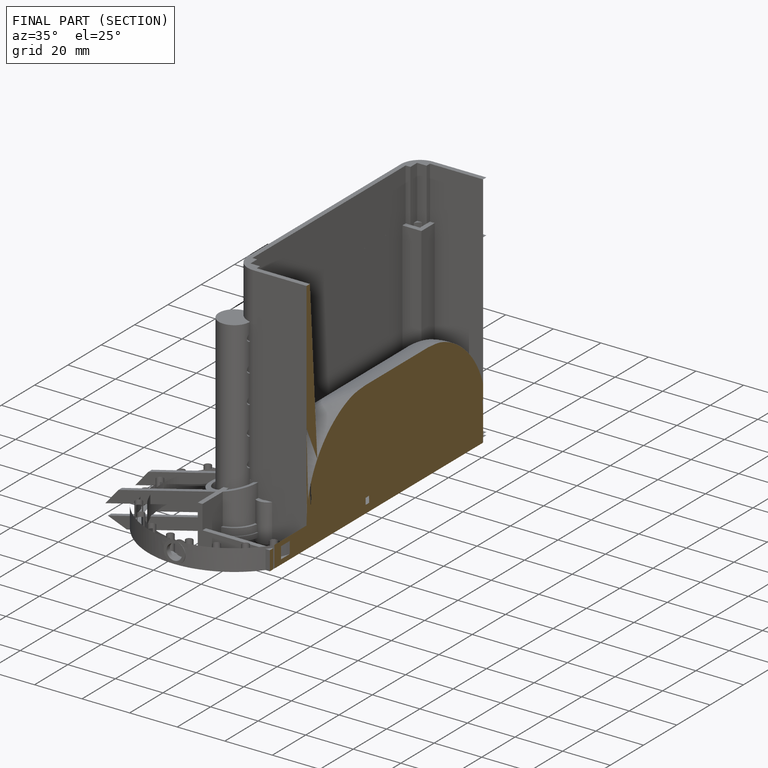
[diagram: finished part — half-section view (interior)]
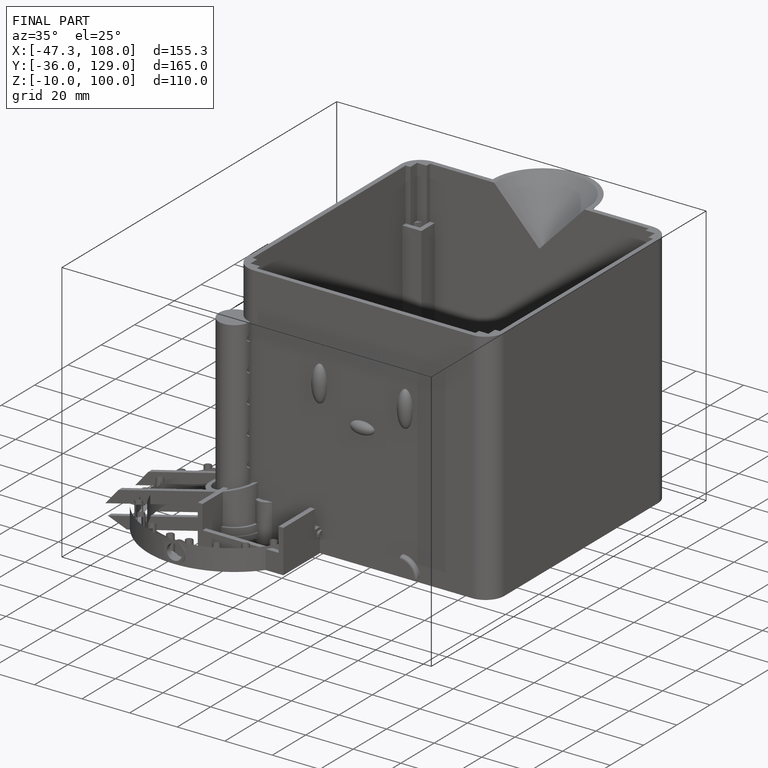
[diagram: finished part — iso view with bounding-box wireframe]
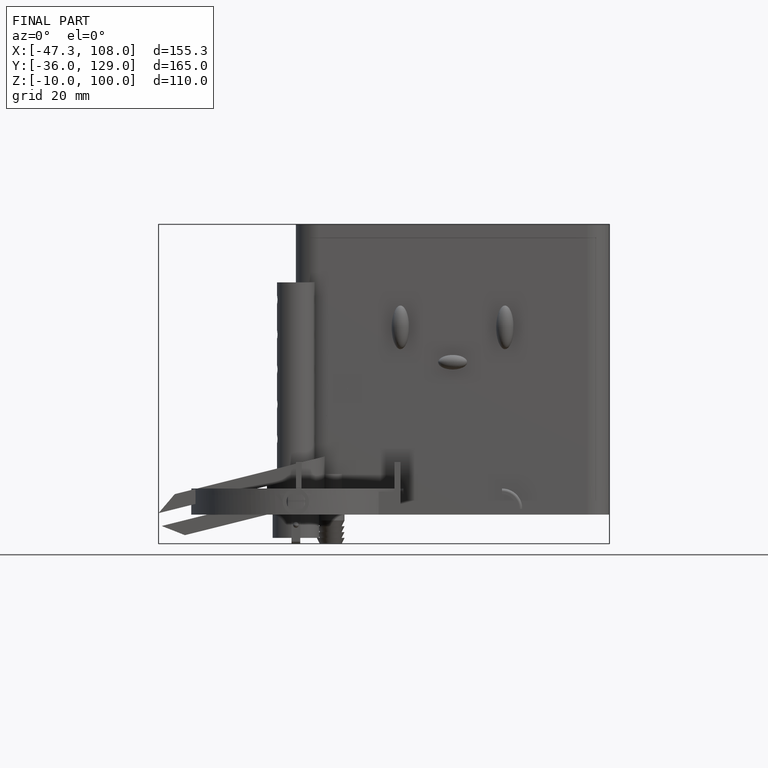
[diagram: finished part — front view with bounding-box wireframe]
